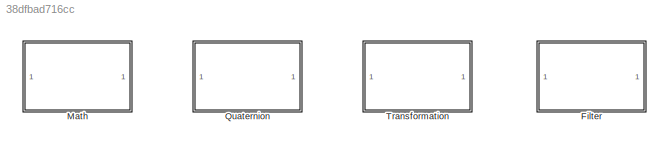
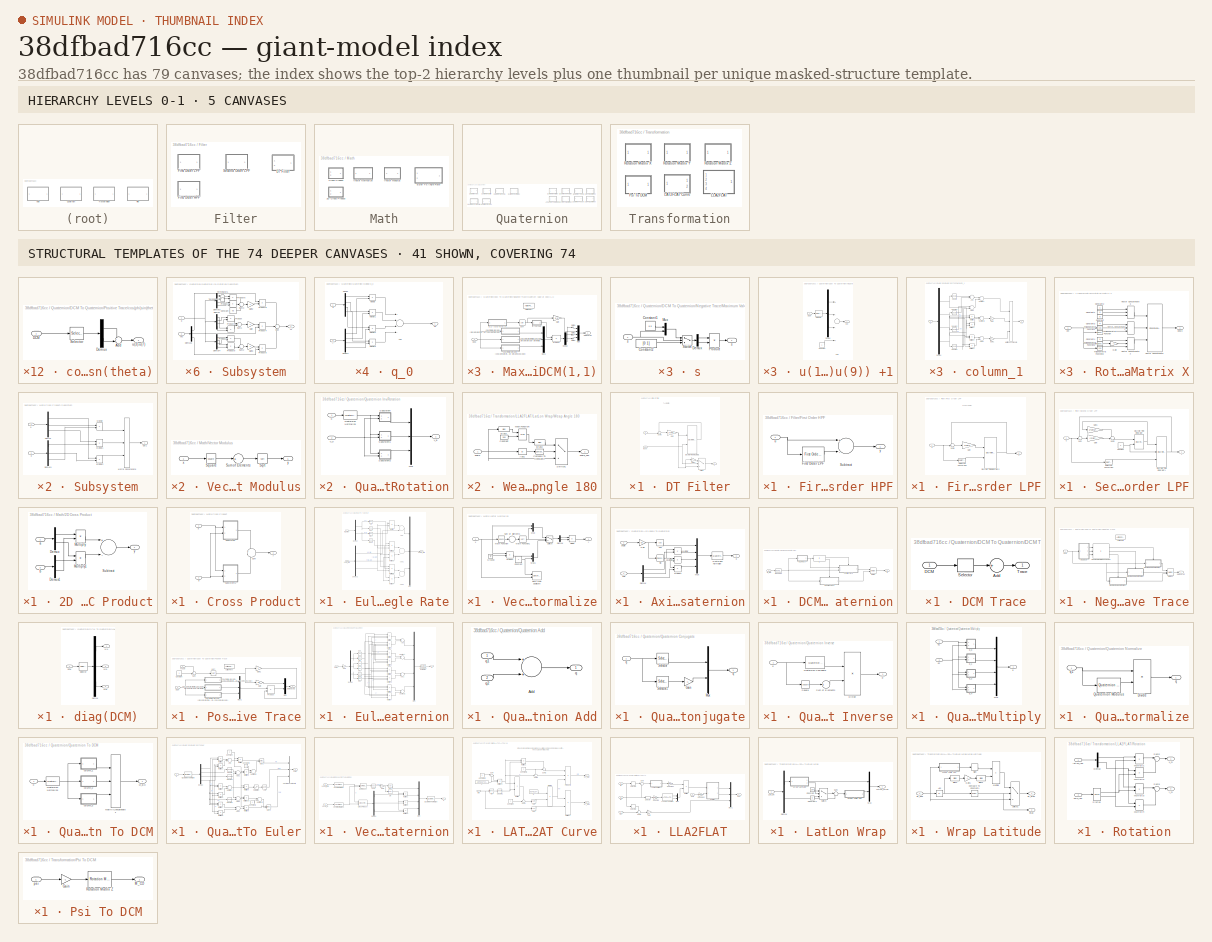
[diagram: thumbnail index - top-2 hierarchy levels (5 canvases) + 41 structural-template representatives of the remaining 74 canvases]
MODEL slx_38dfbad716cc
KIND library
CONFIG AbsTol = auto
CONFIG EnableMultiTasking = off
CONFIG FixedStep = auto
CONFIG MaxStep = auto
CONFIG MinStep = auto
CONFIG RelTol = 1e-3
CONFIG SampleTimeConstraint = Unconstrained
CONFIG Solver = VariableStepAuto
CONFIG SolverName = VariableStepAuto
CONFIG StartTime = 0.0
CONFIG StopTime = 10.0
BLOCK [SubSystem] Filter
  Ports = []
  RequestExecContextInheritance = off
BLOCK [SubSystem] Filter/DT Filter
  Ports = [2, 1]
  RequestExecContextInheritance = off
BLOCK [DiscreteIntegrator] Filter/DT Filter/Discrete-Time Integrator1
  ExternalReset = level
  ICPrevOutput = DiscIntNeverNeededParam
  ICPrevScaledInput = DiscIntNeverNeededParam
  InitialConditionSetting = Auto
  Ports = [2, 1]
  SampleTime = -1
BLOCK [Gain] Filter/DT Filter/Gain
  Gain = 2*pi*fc
  ParamDataTypeStr = Inherit: Inherit via internal rule
  SaturateOnIntegerOverflow = off
BLOCK [Gain] Filter/DT Filter/Gain1
  Gain = 0
  OutDataTypeStr = Inherit: Inherit via internal rule
  ParamDataTypeStr = Inherit: Inherit via internal rule
  SaturateOnIntegerOverflow = off
BLOCK [Sum] Filter/DT Filter/Sum5
  IconShape = round
  InputSameDT = off
  Inputs = -+|
  OutDataTypeStr = Inherit: Inherit via internal rule
  Ports = [2, 1]
  SaturateOnIntegerOverflow = off
BLOCK [Switch] Filter/DT Filter/Switch
  Criteria = u2 > Threshold
  InputSameDT = off
  SaturateOnIntegerOverflow = off
BLOCK [Inport] Filter/DT Filter/reset
  IconDisplay = Port number
  Port = 2
BLOCK [Inport] Filter/DT Filter/u
  IconDisplay = Port number
BLOCK [Outport] Filter/DT Filter/y
  IconDisplay = Port number
BLOCK [SubSystem] Filter/First Order HPF
  Ports = [1, 1]
  RequestExecContextInheritance = off
BLOCK [Reference] Filter/First Order HPF/First Order LPF  REF=$bdroot/Filter/First Order LPF
  Ports = [1, 1]
  SourceBlock = $bdroot/Filter/First Order LPF
  SourceType = First-order Low-pass filter
BLOCK [Sum] Filter/First Order HPF/Subtract
  InputSameDT = off
  Inputs = +-
  OutDataTypeStr = Inherit: Inherit via internal rule
  Ports = [2, 1]
  SaturateOnIntegerOverflow = off
BLOCK [Inport] Filter/First Order HPF/u
  IconDisplay = Port number
BLOCK [Outport] Filter/First Order HPF/y
  IconDisplay = Port number
BLOCK [SubSystem] Filter/First Order LPF
  Ports = [1, 1]
  RequestExecContextInheritance = off
BLOCK [DataTypeConversion] Filter/First Order LPF/Data Type Conversion
  RndMeth = Floor
  SaturateOnIntegerOverflow = off
BLOCK [DiscreteIntegrator] Filter/First Order LPF/Discrete-Time Integrator5
  ICPrevOutput = DiscIntNeverNeededParam
  ICPrevScaledInput = DiscIntNeverNeededParam
  InitialConditionSetting = Auto
  InitialConditionSource = external
  OutDataTypeStr = single
  Ports = [2, 1]
  SampleTime = -1
BLOCK [Gain] Filter/First Order LPF/Gain
  Gain = 2*pi*fc
  OutDataTypeStr = Inherit: Inherit via internal rule
  ParamDataTypeStr = Inherit: Inherit via internal rule
  SaturateOnIntegerOverflow = off
BLOCK [Sum] Filter/First Order LPF/Sum5
  IconShape = round
  InputSameDT = off
  Inputs = -+|
  OutDataTypeStr = Inherit: Inherit via internal rule
  Ports = [2, 1]
  SaturateOnIntegerOverflow = off
BLOCK [Inport] Filter/First Order LPF/u
  IconDisplay = Port number
BLOCK [Outport] Filter/First Order LPF/y
  IconDisplay = Port number
BLOCK [SubSystem] Filter/Second Order LPF
  Ports = [1, 1]
  RequestExecContextInheritance = off
BLOCK [Constant] Filter/Second Order LPF/Constant
  OutDataTypeStr = Inherit: Inherit via back propagation
  Value = 0
BLOCK [DataTypeConversion] Filter/Second Order LPF/Data Type Conversion
  RndMeth = Floor
  SaturateOnIntegerOverflow = off
BLOCK [DiscreteIntegrator] Filter/Second Order LPF/Discrete-Time Integrator
  ExternalReset = level
  ICPrevOutput = DiscIntNeverNeededParam
  ICPrevScaledInput = DiscIntNeverNeededParam
  InitialConditionSetting = Auto
  Ports = [2, 1]
  SampleTime = -1
BLOCK [DiscreteIntegrator] Filter/Second Order LPF/Discrete-Time Integrator1
  ExternalReset = level
  ICPrevOutput = DiscIntNeverNeededParam
  ICPrevScaledInput = DiscIntNeverNeededParam
  InitialConditionSetting = Auto
  InitialConditionSource = external
  Ports = [3, 1]
  SampleTime = -1
BLOCK [Gain] Filter/Second Order LPF/Gain
  Gain = (2*pi*fc)^2
  ParamDataTypeStr = Inherit: Inherit via internal rule
  SaturateOnIntegerOverflow = off
BLOCK [Gain] Filter/Second Order LPF/Gain1
  Gain = 2*zeta*(2*pi*fc)
  ParamDataTypeStr = Inherit: Inherit via internal rule
  SaturateOnIntegerOverflow = off
BLOCK [Sum] Filter/Second Order LPF/Sum
  IconShape = round
  InputSameDT = off
  Inputs = -+|
  OutDataTypeStr = Inherit: Inherit via internal rule
  Ports = [2, 1]
  SaturateOnIntegerOverflow = off
BLOCK [Sum] Filter/Second Order LPF/Sum2
  IconShape = round
  InputSameDT = off
  Inputs = -+|
  OutDataTypeStr = Inherit: Inherit via internal rule
  Ports = [2, 1]
  SaturateOnIntegerOverflow = off
BLOCK [Inport] Filter/Second Order LPF/u
  IconDisplay = Port number
BLOCK [Outport] Filter/Second Order LPF/y
  IconDisplay = Port number
BLOCK [SubSystem] Math
  Ports = []
  RequestExecContextInheritance = off
BLOCK [SubSystem] Math/2D Cross Product
  Ports = [2, 1]
  RequestExecContextInheritance = off
BLOCK [Demux] Math/2D Cross Product/Demux
  DisplayOption = bar
  Outputs = 2
  Ports = [1, 2]
BLOCK [Demux] Math/2D Cross Product/Demux1
  DisplayOption = bar
  Outputs = 2
  Ports = [1, 2]
BLOCK [Product] Math/2D Cross Product/Multiply
  InputSameDT = off
  OutDataTypeStr = Inherit: Inherit via internal rule
  Ports = [2, 1]
  RndMeth = Floor
  SaturateOnIntegerOverflow = off
BLOCK [Product] Math/2D Cross Product/Multiply1
  InputSameDT = off
  OutDataTypeStr = Inherit: Inherit via internal rule
  Ports = [2, 1]
  RndMeth = Floor
  SaturateOnIntegerOverflow = off
BLOCK [Sum] Math/2D Cross Product/Subtract
  InputSameDT = off
  Inputs = +-
  OutDataTypeStr = Inherit: Inherit via internal rule
  Ports = [2, 1]
  SaturateOnIntegerOverflow = off
BLOCK [Inport] Math/2D Cross Product/a
  IconDisplay = Port number
BLOCK [Inport] Math/2D Cross Product/b
  IconDisplay = Port number
  Port = 2
BLOCK [Outport] Math/2D Cross Product/y
  IconDisplay = Port number
BLOCK [SubSystem] Math/Cross Product
  Ports = [2, 1]
  RequestExecContextInheritance = off
BLOCK [SubSystem] Math/Cross Product/Subsystem
  Ports = [2, 1]
  RequestExecContextInheritance = off
BLOCK [Demux] Math/Cross Product/Subsystem/Demux
  DisplayOption = bar
  Outputs = 3
  Ports = [1, 3]
BLOCK [Demux] Math/Cross Product/Subsystem/Demux1
  DisplayOption = bar
  Outputs = 3
  Ports = [1, 3]
BLOCK [Concatenate] Math/Cross Product/Subsystem/Matrix Concatenate
  ConcatenateDimension = 2
  NumInputs = 3
  Ports = [3, 1]
BLOCK [Product] Math/Cross Product/Subsystem/Multiply
  InputSameDT = off
  Ports = [2, 1]
  RndMeth = Floor
  SaturateOnIntegerOverflow = off
BLOCK [Product] Math/Cross Product/Subsystem/Multiply1
  InputSameDT = off
  Ports = [2, 1]
  RndMeth = Floor
  SaturateOnIntegerOverflow = off
BLOCK [Product] Math/Cross Product/Subsystem/Multiply2
  InputSameDT = off
  Ports = [2, 1]
  RndMeth = Floor
  SaturateOnIntegerOverflow = off
BLOCK [Outport] Math/Cross Product/Subsystem/Out1
  IconDisplay = Port number
BLOCK [Inport] Math/Cross Product/Subsystem/a
  IconDisplay = Port number
BLOCK [Inport] Math/Cross Product/Subsystem/b
  IconDisplay = Port number
  Port = 2
BLOCK [SubSystem] Math/Cross Product/Subsystem1
  Ports = [2, 1]
  RequestExecContextInheritance = off
BLOCK [Demux] Math/Cross Product/Subsystem1/Demux
  DisplayOption = bar
  Outputs = 3
  Ports = [1, 3]
BLOCK [Demux] Math/Cross Product/Subsystem1/Demux1
  DisplayOption = bar
  Outputs = 3
  Ports = [1, 3]
BLOCK [Concatenate] Math/Cross Product/Subsystem1/Matrix Concatenate1
  ConcatenateDimension = 2
  NumInputs = 3
  Ports = [3, 1]
BLOCK [Product] Math/Cross Product/Subsystem1/Multiply3
  InputSameDT = off
  Ports = [2, 1]
  RndMeth = Floor
  SaturateOnIntegerOverflow = off
BLOCK [Product] Math/Cross Product/Subsystem1/Multiply4
  InputSameDT = off
  Ports = [2, 1]
  RndMeth = Floor
  SaturateOnIntegerOverflow = off
BLOCK [Product] Math/Cross Product/Subsystem1/Multiply5
  InputSameDT = off
  Ports = [2, 1]
  RndMeth = Floor
  SaturateOnIntegerOverflow = off
BLOCK [Outport] Math/Cross Product/Subsystem1/Out1
  IconDisplay = Port number
BLOCK [Inport] Math/Cross Product/Subsystem1/a
  IconDisplay = Port number
BLOCK [Inport] Math/Cross Product/Subsystem1/b
  IconDisplay = Port number
  Port = 2
BLOCK [Sum] Math/Cross Product/Sum
  IconShape = round
  Inputs = +|-
  Ports = [2, 1]
BLOCK [Inport] Math/Cross Product/a
  IconDisplay = Port number
BLOCK [Inport] Math/Cross Product/b
  IconDisplay = Port number
  Port = 2
BLOCK [Outport] Math/Cross Product/y
  IconDisplay = Port number
BLOCK [SubSystem] Math/Euler To Angle Rate
  Ports = [2, 1]
  RequestExecContextInheritance = off
BLOCK [Sum] Math/Euler To Angle Rate/Add
  InputSameDT = off
  Inputs = -+
  OutDataTypeStr = Inherit: Inherit via internal rule
  Ports = [2, 1]
  SaturateOnIntegerOverflow = off
BLOCK [Sum] Math/Euler To Angle Rate/Add1
  InputSameDT = off
  OutDataTypeStr = Inherit: Inherit via internal rule
  Ports = [2, 1]
  SaturateOnIntegerOverflow = off
BLOCK [Sum] Math/Euler To Angle Rate/Add2
  InputSameDT = off
  Inputs = +-
  OutDataTypeStr = Inherit: Inherit via internal rule
  Ports = [2, 1]
  SaturateOnIntegerOverflow = off
BLOCK [Trigonometry] Math/Euler To Angle Rate/Cos
  Operator = cos
  Ports = [1, 1]
BLOCK [Trigonometry] Math/Euler To Angle Rate/Cos1
  Operator = cos
  Ports = [1, 1]
BLOCK [Demux] Math/Euler To Angle Rate/Demux
  DisplayOption = bar
  Outputs = 2
  Ports = [1, 2]
BLOCK [Demux] Math/Euler To Angle Rate/Demux1
  DisplayOption = bar
  Outputs = 3
  Ports = [1, 3]
BLOCK [Product] Math/Euler To Angle Rate/Multiply
  InputSameDT = off
  OutDataTypeStr = Inherit: Inherit via internal rule
  Ports = [2, 1]
  RndMeth = Floor
  SaturateOnIntegerOverflow = off
BLOCK [Product] Math/Euler To Angle Rate/Multiply1
  InputSameDT = off
  OutDataTypeStr = Inherit: Inherit via internal rule
  Ports = [2, 1]
  RndMeth = Floor
  SaturateOnIntegerOverflow = off
BLOCK [Product] Math/Euler To Angle Rate/Multiply3
  InputSameDT = off
  Inputs = 3
  OutDataTypeStr = Inherit: Inherit via internal rule
  Ports = [3, 1]
  RndMeth = Floor
  SaturateOnIntegerOverflow = off
BLOCK [Product] Math/Euler To Angle Rate/Multiply4
  InputSameDT = off
  OutDataTypeStr = Inherit: Inherit via internal rule
  Ports = [2, 1]
  RndMeth = Floor
  SaturateOnIntegerOverflow = off
BLOCK [Product] Math/Euler To Angle Rate/Multiply5
  InputSameDT = off
  Inputs = 3
  OutDataTypeStr = Inherit: Inherit via internal rule
  Ports = [3, 1]
  RndMeth = Floor
  SaturateOnIntegerOverflow = off
BLOCK [Mux] Math/Euler To Angle Rate/Mux
  DisplayOption = bar
  Inputs = 3
  Ports = [3, 1]
BLOCK [Trigonometry] Math/Euler To Angle Rate/Sin
  Ports = [1, 1]
BLOCK [Trigonometry] Math/Euler To Angle Rate/Sin1
  Ports = [1, 1]
BLOCK [Outport] Math/Euler To Angle Rate/angle_rate
  IconDisplay = Port number
BLOCK [Inport] Math/Euler To Angle Rate/euler_rate
  IconDisplay = Port number
  Port = 2
BLOCK [Inport] Math/Euler To Angle Rate/roll_pitch
  IconDisplay = Port number
BLOCK [SubSystem] Math/Vector Modulus
  Ports = [1, 1]
  RequestExecContextInheritance = off
BLOCK [Sqrt] Math/Vector Modulus/Sqrt
BLOCK [Math] Math/Vector Modulus/Square
  Operator = square
  Ports = [1, 1]
BLOCK [Sum] Math/Vector Modulus/Sum of Elements
  InputSameDT = off
  Inputs = +
  OutDataTypeStr = Inherit: Inherit via internal rule
  Ports = [1, 1]
  SaturateOnIntegerOverflow = off
BLOCK [Inport] Math/Vector Modulus/x
  IconDisplay = Port number
BLOCK [Outport] Math/Vector Modulus/y
  IconDisplay = Port number
BLOCK [SubSystem] Math/Vector Normalize
  Ports = [1, 1]
  RequestExecContextInheritance = off
BLOCK [Constant] Math/Vector Normalize/Constant
  OutDataTypeStr = Inherit: Inherit via back propagation
BLOCK [DataTypeDuplicate] Math/Vector Normalize/Data Type Duplicate
  Ports = [2]
BLOCK [Demux] Math/Vector Normalize/Demux
  DisplayOption = bar
  Outputs = [-1 1]
  Ports = [1, 2]
BLOCK [Product] Math/Vector Normalize/Divide
  InputSameDT = off
  Inputs = */
  OutDataTypeStr = Inherit: Inherit via internal rule
  Ports = [2, 1]
  RndMeth = Floor
  SaturateOnIntegerOverflow = off
BLOCK [Ground] Math/Vector Normalize/Ground
BLOCK [Math] Math/Vector Normalize/Math Function
  Operator = square
  OutDataTypeStr = Inherit: Inherit via internal rule
  Ports = [1, 1]
BLOCK [Math] Math/Vector Normalize/Math Function1
  Operator = sqrt
  Ports = [1, 1]
BLOCK [Mux] Math/Vector Normalize/Mux
  DisplayOption = bar
  Inputs = 2
  Ports = [2, 1]
BLOCK [Mux] Math/Vector Normalize/Mux1
  DisplayOption = bar
  Inputs = 2
  Ports = [2, 1]
BLOCK [Product] Math/Vector Normalize/Product
  InputSameDT = off
  Ports = [2, 1]
  SaturateOnIntegerOverflow = off
BLOCK [Sum] Math/Vector Normalize/Sum of Elements
  InputSameDT = off
  Inputs = +
  OutDataTypeStr = Inherit: Inherit via internal rule
  Ports = [1, 1]
  SaturateOnIntegerOverflow = off
BLOCK [Switch] Math/Vector Normalize/Switch
  Criteria = u2 > Threshold
  InputSameDT = off
  SaturateOnIntegerOverflow = off
BLOCK [Inport] Math/Vector Normalize/x
  IconDisplay = Port number
BLOCK [Outport] Math/Vector Normalize/y
  IconDisplay = Port number
BLOCK [SubSystem] Quaternion
  Ports = []
  RequestExecContextInheritance = off
BLOCK [SubSystem] Quaternion/Axis-angle To Quaternion
  Ports = [2, 1]
  RequestExecContextInheritance = off
BLOCK [Trigonometry] Quaternion/Axis-angle To Quaternion/Cos
  Operator = cos
  Ports = [1, 1]
BLOCK [Demux] Quaternion/Axis-angle To Quaternion/Demux
  DisplayOption = bar
  Outputs = 3
  Ports = [1, 3]
BLOCK [Gain] Quaternion/Axis-angle To Quaternion/Gain
  Gain = 0.5
  ParamDataTypeStr = Inherit: Inherit via internal rule
  SaturateOnIntegerOverflow = off
BLOCK [Product] Quaternion/Axis-angle To Quaternion/Multiply
  InputSameDT = off
  Ports = [2, 1]
  RndMeth = Floor
  SaturateOnIntegerOverflow = off
BLOCK [Product] Quaternion/Axis-angle To Quaternion/Multiply1
  InputSameDT = off
  Ports = [2, 1]
  RndMeth = Floor
  SaturateOnIntegerOverflow = off
BLOCK [Product] Quaternion/Axis-angle To Quaternion/Multiply2
  InputSameDT = off
  Ports = [2, 1]
  RndMeth = Floor
  SaturateOnIntegerOverflow = off
BLOCK [Mux] Quaternion/Axis-angle To Quaternion/Mux
  DisplayOption = bar
  Ports = [4, 1]
BLOCK [Reference] Quaternion/Axis-angle To Quaternion/Quaternion Normalize  REF=$bdroot/Quaternion/Quaternion Normalize
  Ports = [1, 1]
  SourceBlock = $bdroot/Quaternion/Quaternion Normalize
  SourceType = Quaternion Modulus
BLOCK [Trigonometry] Quaternion/Axis-angle To Quaternion/Sin
  Ports = [1, 1]
BLOCK [Inport] Quaternion/Axis-angle To Quaternion/angle
  IconDisplay = Port number
  Port = 2
BLOCK [Inport] Quaternion/Axis-angle To Quaternion/axis
  IconDisplay = Port number
BLOCK [Outport] Quaternion/Axis-angle To Quaternion/q
  IconDisplay = Port number
BLOCK [SubSystem] Quaternion/DCM To Quaternion
  Ports = [1, 1]
  RequestExecContextInheritance = off
BLOCK [SubSystem] Quaternion/DCM To Quaternion/DCM Trace
  Ports = [1, 1]
  RequestExecContextInheritance = off
BLOCK [Sum] Quaternion/DCM To Quaternion/DCM Trace/Add
  InputSameDT = off
  Inputs = +
  OutDataTypeStr = Inherit: Inherit via internal rule
  Ports = [1, 1]
  SaturateOnIntegerOverflow = off
BLOCK [Inport] Quaternion/DCM To Quaternion/DCM Trace/DCM
  IconDisplay = Port number
BLOCK [Selector] Quaternion/DCM To Quaternion/DCM Trace/Selector
  IndexOptions = Index vector (dialog)
  Indices = [1 5 9]
  InputPortWidth = 9
  OutputSizes = 1
  Ports = [1, 1]
BLOCK [Outport] Quaternion/DCM To Quaternion/DCM Trace/Trace
  IconDisplay = Port number
BLOCK [If] Quaternion/DCM To Quaternion/If
  Ports = [1, 2]
BLOCK [Inport] Quaternion/DCM To Quaternion/M_BO
  IconDisplay = Port number
BLOCK [Merge] Quaternion/DCM To Quaternion/Merge
  Ports = [2, 1]
BLOCK [SubSystem] Quaternion/DCM To Quaternion/Negative Trace
  Ports = [1, 1, 0, 0, 0, 0, 0, 1]
  RequestExecContextInheritance = off
BLOCK [ActionPort] Quaternion/DCM To Quaternion/Negative Trace/Action Port
  ActionType = else
  PropagateVarSize = During execution
BLOCK [Inport] Quaternion/DCM To Quaternion/Negative Trace/DCM
  IconDisplay = Port number
BLOCK [If] Quaternion/DCM To Quaternion/Negative Trace/Find Maximum Diagonal Value
  ElseIfExpressions = u3 > u1
  IfExpression = ((u2 > u1) & (u2 > u3))
  NumInputs = 3
  Ports = [3, 3]
BLOCK [SubSystem] Quaternion/DCM To Quaternion/Negative Trace/Maximum Value at DCM(1,1)
  Ports = [1, 1, 0, 0, 0, 0, 0, 1]
  RequestExecContextInheritance = off
  TreatAsAtomicUnit = on
BLOCK [ActionPort] Quaternion/DCM To Quaternion/Negative Trace/Maximum Value at DCM(1,1)/Action Port
  ActionType = else
  PropagateVarSize = During execution
BLOCK [Inport] Quaternion/DCM To Quaternion/Negative Trace/Maximum Value at DCM(1,1)/DCM
  IconDisplay = Port number
BLOCK [Demux] Quaternion/DCM To Quaternion/Negative Trace/Maximum Value at DCM(1,1)/Demux
  Outputs = 3
  Ports = [1, 3]
BLOCK [Gain] Quaternion/DCM To Quaternion/Negative Trace/Maximum Value at DCM(1,1)/Gain
  Gain = 0.5
BLOCK [Gain] Quaternion/DCM To Quaternion/Negative Trace/Maximum Value at DCM(1,1)/Gain1
BLOCK [Gain] Quaternion/DCM To Quaternion/Negative Trace/Maximum Value at DCM(1,1)/Gain2
BLOCK [Gain] Quaternion/DCM To Quaternion/Negative Trace/Maximum Value at DCM(1,1)/Gain3
BLOCK [Mux] Quaternion/DCM To Quaternion/Negative Trace/Maximum Value at DCM(1,1)/Mux
  DisplayOption = bar
  Ports = [4, 1]
BLOCK [Mux] Quaternion/DCM To Quaternion/Negative Trace/Maximum Value at DCM(1,1)/Mux1
  DisplayOption = bar
  Inputs = 3
  Ports = [3, 1]
BLOCK [Product] Quaternion/DCM To Quaternion/Negative Trace/Maximum Value at DCM(1,1)/Product
  Ports = [2, 1]
  RndMeth = Floor
BLOCK [SubSystem] Quaternion/DCM To Quaternion/Negative Trace/Maximum Value at DCM(1,1)/cos(phi)sin(theta)cos(psi) + sin(phi)sin(psi) -sin(theta)
  Ports = [1, 1]
  RequestExecContextInheritance = off
BLOCK [Sum] Quaternion/DCM To Quaternion/Negative Trace/Maximum Value at DCM(1,1)/cos(phi)sin(theta)cos(psi) + sin(phi)sin(psi) -sin(theta)/Add
  IconShape = round
  InputSameDT = off
  Inputs = ++|
  OutDataTypeStr = Inherit: Inherit via internal rule
  Ports = [2, 1]
  SaturateOnIntegerOverflow = off
BLOCK [Inport] Quaternion/DCM To Quaternion/Negative Trace/Maximum Value at DCM(1,1)/cos(phi)sin(theta)cos(psi) + sin(phi)sin(psi) -sin(theta)/DCM
  IconDisplay = Port number
BLOCK [Demux] Quaternion/DCM To Quaternion/Negative Trace/Maximum Value at DCM(1,1)/cos(phi)sin(theta)cos(psi) + sin(phi)sin(psi) -sin(theta)/Demux
  DisplayOption = bar
  Outputs = 2
  Ports = [1, 2]
BLOCK [Selector] Quaternion/DCM To Quaternion/Negative Trace/Maximum Value at DCM(1,1)/cos(phi)sin(theta)cos(psi) + sin(phi)sin(psi) -sin(theta)/Selector
  IndexOptions = Index vector (dialog)
  Indices = [3 7]
  InputPortWidth = 9
  OutputSizes = 1
  Ports = [1, 1]
BLOCK [Outport] Quaternion/DCM To Quaternion/Negative Trace/Maximum Value at DCM(1,1)/cos(phi)sin(theta)cos(psi) + sin(phi)sin(psi) -sin(theta)/u(3)+u(7)
  IconDisplay = Port number
BLOCK [SubSystem] Quaternion/DCM To Quaternion/Negative Trace/Maximum Value at DCM(1,1)/cos(theta)sin(phi) - (cos(phi)sin(theta)sin(psi) - sin(phi)cos(psi))
  Ports = [1, 1]
  RequestExecContextInheritance = off
BLOCK [Sum] Quaternion/DCM To Quaternion/Negative Trace/Maximum Value at DCM(1,1)/cos(theta)sin(phi) - (cos(phi)sin(theta)sin(psi) - sin(phi)cos(psi))/Add
  IconShape = round
  InputSameDT = off
  Inputs = |-+
  OutDataTypeStr = Inherit: Inherit via internal rule
  Ports = [2, 1]
  SaturateOnIntegerOverflow = off
BLOCK [Inport] Quaternion/DCM To Quaternion/Negative Trace/Maximum Value at DCM(1,1)/cos(theta)sin(phi) - (cos(phi)sin(theta)sin(psi) - sin(phi)cos(psi))/DCM
  IconDisplay = Port number
BLOCK [Demux] Quaternion/DCM To Quaternion/Negative Trace/Maximum Value at DCM(1,1)/cos(theta)sin(phi) - (cos(phi)sin(theta)sin(psi) - sin(phi)cos(psi))/Demux
  DisplayOption = bar
  Outputs = 2
  Ports = [1, 2]
BLOCK [Selector] Quaternion/DCM To Quaternion/Negative Trace/Maximum Value at DCM(1,1)/cos(theta)sin(phi) - (cos(phi)sin(theta)sin(psi) - sin(phi)cos(psi))/Selector
  IndexOptions = Index vector (dialog)
  Indices = [6 8]
  InputPortWidth = 9
  OutputSizes = 1
  Ports = [1, 1]
BLOCK [Outport] Quaternion/DCM To Quaternion/Negative Trace/Maximum Value at DCM(1,1)/cos(theta)sin(phi) - (cos(phi)sin(theta)sin(psi) - sin(phi)cos(psi))/u(8)-u(6)
  IconDisplay = Port number
BLOCK [SubSystem] Quaternion/DCM To Quaternion/Negative Trace/Maximum Value at DCM(1,1)/cos(theta)sin(psi) + (sin(phi)sin(theta)cos(psi) - cos(phi)sin(psi))
  Ports = [1, 1]
  RequestExecContextInheritance = off
BLOCK [Sum] Quaternion/DCM To Quaternion/Negative Trace/Maximum Value at DCM(1,1)/cos(theta)sin(psi) + (sin(phi)sin(theta)cos(psi) - cos(phi)sin(psi))/Add
  IconShape = round
  InputSameDT = off
  Inputs = |++
  OutDataTypeStr = Inherit: Inherit via internal rule
  Ports = [2, 1]
  SaturateOnIntegerOverflow = off
BLOCK [Inport] Quaternion/DCM To Quaternion/Negative Trace/Maximum Value at DCM(1,1)/cos(theta)sin(psi) + (sin(phi)sin(theta)cos(psi) - cos(phi)sin(psi))/DCM
  IconDisplay = Port number
BLOCK [Demux] Quaternion/DCM To Quaternion/Negative Trace/Maximum Value at DCM(1,1)/cos(theta)sin(psi) + (sin(phi)sin(theta)cos(psi) - cos(phi)sin(psi))/Demux
  DisplayOption = bar
  Outputs = 2
  Ports = [1, 2]
BLOCK [Selector] Quaternion/DCM To Quaternion/Negative Trace/Maximum Value at DCM(1,1)/cos(theta)sin(psi) + (sin(phi)sin(theta)cos(psi) - cos(phi)sin(psi))/Selector
  IndexOptions = Index vector (dialog)
  Indices = [2 4]
  InputPortWidth = 9
  OutputSizes = 1
  Ports = [1, 1]
BLOCK [Outport] Quaternion/DCM To Quaternion/Negative Trace/Maximum Value at DCM(1,1)/cos(theta)sin(psi) + (sin(phi)sin(theta)cos(psi) - cos(phi)sin(psi))/u(4)+u(2)
  IconDisplay = Port number
BLOCK [SubSystem] Quaternion/DCM To Quaternion/Negative Trace/Maximum Value at DCM(1,1)/if s~=0; s=0.5//s
  Ports = [1, 1]
  RequestExecContextInheritance = off
BLOCK [Constant] Quaternion/DCM To Quaternion/Negative Trace/Maximum Value at DCM(1,1)/if s~=0; s=0.5//s/Constant1
  OutDataTypeStr = Inherit: Inherit via back propagation
  Value = 0.5
BLOCK [Constant] Quaternion/DCM To Quaternion/Negative Trace/Maximum Value at DCM(1,1)/if s~=0; s=0.5//s/Constant2
  OutDataTypeStr = Inherit: Inherit via back propagation
  Value = [0 1]
BLOCK [Demux] Quaternion/DCM To Quaternion/Negative Trace/Maximum Value at DCM(1,1)/if s~=0; s=0.5//s/Demux
  DisplayOption = bar
  Outputs = 2
  Ports = [1, 2]
BLOCK [Mux] Quaternion/DCM To Quaternion/Negative Trace/Maximum Value at DCM(1,1)/if s~=0; s=0.5//s/Mux
  DisplayOption = bar
  Inputs = 2
  Ports = [2, 1]
BLOCK [Product] Quaternion/DCM To Quaternion/Negative Trace/Maximum Value at DCM(1,1)/if s~=0; s=0.5//s/Product
  InputSameDT = off
  Inputs = */
  OutDataTypeStr = Inherit: Inherit via internal rule
  Ports = [2, 1]
  SaturateOnIntegerOverflow = off
BLOCK [Switch] Quaternion/DCM To Quaternion/Negative Trace/Maximum Value at DCM(1,1)/if s~=0; s=0.5//s/Switch
  Criteria = u2 ~= 0
BLOCK [Inport] Quaternion/DCM To Quaternion/Negative Trace/Maximum Value at DCM(1,1)/if s~=0; s=0.5//s/s
  IconDisplay = Port number
BLOCK [Outport] Quaternion/DCM To Quaternion/Negative Trace/Maximum Value at DCM(1,1)/if s~=0; s=0.5//s/s 
  IconDisplay = Port number
BLOCK [Outport] Quaternion/DCM To Quaternion/Negative Trace/Maximum Value at DCM(1,1)/qw qx qy qz
  IconDisplay = Port number
BLOCK [Sqrt] Quaternion/DCM To Quaternion/Negative Trace/Maximum Value at DCM(1,1)/sqrt
  AlgorithmType = Newton-Raphson
BLOCK [SubSystem] Quaternion/DCM To Quaternion/Negative Trace/Maximum Value at DCM(1,1)/u(1) -(u(5)+u(9)) +1
  Ports = [1, 1]
  RequestExecContextInheritance = off
BLOCK [Sum] Quaternion/DCM To Quaternion/Negative Trace/Maximum Value at DCM(1,1)/u(1) -(u(5)+u(9)) +1/Add
  InputSameDT = off
  Inputs = +--+
  OutDataTypeStr = Inherit: Inherit via internal rule
  Ports = [4, 1]
  SaturateOnIntegerOverflow = off
BLOCK [Constant] Quaternion/DCM To Quaternion/Negative Trace/Maximum Value at DCM(1,1)/u(1) -(u(5)+u(9)) +1/Constant
  OutDataTypeStr = Inherit: Inherit via back propagation
BLOCK [Inport] Quaternion/DCM To Quaternion/Negative Trace/Maximum Value at DCM(1,1)/u(1) -(u(5)+u(9)) +1/DCM
  IconDisplay = Port number
BLOCK [Demux] Quaternion/DCM To Quaternion/Negative Trace/Maximum Value at DCM(1,1)/u(1) -(u(5)+u(9)) +1/Demux
  DisplayOption = bar
  Outputs = 3
  Ports = [1, 3]
BLOCK [Selector] Quaternion/DCM To Quaternion/Negative Trace/Maximum Value at DCM(1,1)/u(1) -(u(5)+u(9)) +1/Selector
  IndexOptions = Index vector (dialog)
  Indices = [1 5 9]
  InputPortWidth = 9
  OutputSizes = 1
  Ports = [1, 1]
BLOCK [Outport] Quaternion/DCM To Quaternion/Negative Trace/Maximum Value at DCM(1,1)/u(1) -(u(5)+u(9)) +1/out
  IconDisplay = Port number
BLOCK [SubSystem] Quaternion/DCM To Quaternion/Negative Trace/Maximum Value at DCM(2,2)
  Ports = [1, 1, 0, 0, 0, 0, 0, 1]
  RequestExecContextInheritance = off
  TreatAsAtomicUnit = on
BLOCK [ActionPort] Quaternion/DCM To Quaternion/Negative Trace/Maximum Value at DCM(2,2)/Action Port
  ActionType = then
  PropagateVarSize = During execution
BLOCK [Inport] Quaternion/DCM To Quaternion/Negative Trace/Maximum Value at DCM(2,2)/DCM
  IconDisplay = Port number
BLOCK [Demux] Quaternion/DCM To Quaternion/Negative Trace/Maximum Value at DCM(2,2)/Demux
  Outputs = 3
  Ports = [1, 3]
BLOCK [Gain] Quaternion/DCM To Quaternion/Negative Trace/Maximum Value at DCM(2,2)/Gain
  Gain = 0.5
BLOCK [Gain] Quaternion/DCM To Quaternion/Negative Trace/Maximum Value at DCM(2,2)/Gain1
BLOCK [Gain] Quaternion/DCM To Quaternion/Negative Trace/Maximum Value at DCM(2,2)/Gain3
BLOCK [Gain] Quaternion/DCM To Quaternion/Negative Trace/Maximum Value at DCM(2,2)/Gain4
BLOCK [Mux] Quaternion/DCM To Quaternion/Negative Trace/Maximum Value at DCM(2,2)/Mux
  DisplayOption = bar
  Ports = [4, 1]
BLOCK [Mux] Quaternion/DCM To Quaternion/Negative Trace/Maximum Value at DCM(2,2)/Mux1
  DisplayOption = bar
  Inputs = 3
  Ports = [3, 1]
BLOCK [Product] Quaternion/DCM To Quaternion/Negative Trace/Maximum Value at DCM(2,2)/Product
  Ports = [2, 1]
  RndMeth = Floor
BLOCK [SubSystem] Quaternion/DCM To Quaternion/Negative Trace/Maximum Value at DCM(2,2)/cos(phi)sin(theta)cos(psi) + sin(phi)sin(psi) +sin(theta)
  Ports = [1, 1]
  RequestExecContextInheritance = off
BLOCK [Sum] Quaternion/DCM To Quaternion/Negative Trace/Maximum Value at DCM(2,2)/cos(phi)sin(theta)cos(psi) + sin(phi)sin(psi) +sin(theta)/Add
  IconShape = round
  InputSameDT = off
  Inputs = +-|
  OutDataTypeStr = Inherit: Inherit via internal rule
  Ports = [2, 1]
  SaturateOnIntegerOverflow = off
BLOCK [Inport] Quaternion/DCM To Quaternion/Negative Trace/Maximum Value at DCM(2,2)/cos(phi)sin(theta)cos(psi) + sin(phi)sin(psi) +sin(theta)/DCM
  IconDisplay = Port number
BLOCK [Demux] Quaternion/DCM To Quaternion/Negative Trace/Maximum Value at DCM(2,2)/cos(phi)sin(theta)cos(psi) + sin(phi)sin(psi) +sin(theta)/Demux
  DisplayOption = bar
  Outputs = 2
  Ports = [1, 2]
BLOCK [Selector] Quaternion/DCM To Quaternion/Negative Trace/Maximum Value at DCM(2,2)/cos(phi)sin(theta)cos(psi) + sin(phi)sin(psi) +sin(theta)/Selector
  IndexOptions = Index vector (dialog)
  Indices = [3 7]
  InputPortWidth = 9
  OutputSizes = 1
  Ports = [1, 1]
BLOCK [Outport] Quaternion/DCM To Quaternion/Negative Trace/Maximum Value at DCM(2,2)/cos(phi)sin(theta)cos(psi) + sin(phi)sin(psi) +sin(theta)/u(3)-u(7)
  IconDisplay = Port number
BLOCK [SubSystem] Quaternion/DCM To Quaternion/Negative Trace/Maximum Value at DCM(2,2)/cos(theta)sin(phi) + (cos(phi)sin(theta)sin(psi) - sin(phi)cos(psi))
  Ports = [1, 1]
  RequestExecContextInheritance = off
BLOCK [Sum] Quaternion/DCM To Quaternion/Negative Trace/Maximum Value at DCM(2,2)/cos(theta)sin(phi) + (cos(phi)sin(theta)sin(psi) - sin(phi)cos(psi))/Add
  IconShape = round
  InputSameDT = off
  Inputs = |++
  OutDataTypeStr = Inherit: Inherit via internal rule
  Ports = [2, 1]
  SaturateOnIntegerOverflow = off
BLOCK [Inport] Quaternion/DCM To Quaternion/Negative Trace/Maximum Value at DCM(2,2)/cos(theta)sin(phi) + (cos(phi)sin(theta)sin(psi) - sin(phi)cos(psi))/DCM
  IconDisplay = Port number
BLOCK [Demux] Quaternion/DCM To Quaternion/Negative Trace/Maximum Value at DCM(2,2)/cos(theta)sin(phi) + (cos(phi)sin(theta)sin(psi) - sin(phi)cos(psi))/Demux
  DisplayOption = bar
  Outputs = 2
  Ports = [1, 2]
BLOCK [Selector] Quaternion/DCM To Quaternion/Negative Trace/Maximum Value at DCM(2,2)/cos(theta)sin(phi) + (cos(phi)sin(theta)sin(psi) - sin(phi)cos(psi))/Selector
  IndexOptions = Index vector (dialog)
  Indices = [6 8]
  InputPortWidth = 9
  OutputSizes = 1
  Ports = [1, 1]
BLOCK [Outport] Quaternion/DCM To Quaternion/Negative Trace/Maximum Value at DCM(2,2)/cos(theta)sin(phi) + (cos(phi)sin(theta)sin(psi) - sin(phi)cos(psi))/u(8)+u(6)
  IconDisplay = Port number
BLOCK [SubSystem] Quaternion/DCM To Quaternion/Negative Trace/Maximum Value at DCM(2,2)/cos(theta)sin(psi) + (sin(phi)sin(theta)cos(psi) - cos(phi)sin(psi))
  Ports = [1, 1]
  RequestExecContextInheritance = off
BLOCK [Sum] Quaternion/DCM To Quaternion/Negative Trace/Maximum Value at DCM(2,2)/cos(theta)sin(psi) + (sin(phi)sin(theta)cos(psi) - cos(phi)sin(psi))/Add
  IconShape = round
  InputSameDT = off
  Inputs = |++
  OutDataTypeStr = Inherit: Inherit via internal rule
  Ports = [2, 1]
  SaturateOnIntegerOverflow = off
BLOCK [Inport] Quaternion/DCM To Quaternion/Negative Trace/Maximum Value at DCM(2,2)/cos(theta)sin(psi) + (sin(phi)sin(theta)cos(psi) - cos(phi)sin(psi))/DCM
  IconDisplay = Port number
BLOCK [Demux] Quaternion/DCM To Quaternion/Negative Trace/Maximum Value at DCM(2,2)/cos(theta)sin(psi) + (sin(phi)sin(theta)cos(psi) - cos(phi)sin(psi))/Demux
  DisplayOption = bar
  Outputs = 2
  Ports = [1, 2]
BLOCK [Selector] Quaternion/DCM To Quaternion/Negative Trace/Maximum Value at DCM(2,2)/cos(theta)sin(psi) + (sin(phi)sin(theta)cos(psi) - cos(phi)sin(psi))/Selector
  IndexOptions = Index vector (dialog)
  Indices = [2 4]
  InputPortWidth = 9
  OutputSizes = 1
  Ports = [1, 1]
BLOCK [Outport] Quaternion/DCM To Quaternion/Negative Trace/Maximum Value at DCM(2,2)/cos(theta)sin(psi) + (sin(phi)sin(theta)cos(psi) - cos(phi)sin(psi))/u(4)+u(2)
  IconDisplay = Port number
BLOCK [SubSystem] Quaternion/DCM To Quaternion/Negative Trace/Maximum Value at DCM(2,2)/if s~=0; s=0.5//s
  Ports = [1, 1]
  RequestExecContextInheritance = off
BLOCK [Constant] Quaternion/DCM To Quaternion/Negative Trace/Maximum Value at DCM(2,2)/if s~=0; s=0.5//s/Constant1
  OutDataTypeStr = Inherit: Inherit via back propagation
  Value = 0.5
BLOCK [Constant] Quaternion/DCM To Quaternion/Negative Trace/Maximum Value at DCM(2,2)/if s~=0; s=0.5//s/Constant2
  OutDataTypeStr = Inherit: Inherit via back propagation
  Value = [0 1]
BLOCK [Demux] Quaternion/DCM To Quaternion/Negative Trace/Maximum Value at DCM(2,2)/if s~=0; s=0.5//s/Demux
  DisplayOption = bar
  Outputs = 2
  Ports = [1, 2]
BLOCK [Mux] Quaternion/DCM To Quaternion/Negative Trace/Maximum Value at DCM(2,2)/if s~=0; s=0.5//s/Mux
  DisplayOption = bar
  Inputs = 2
  Ports = [2, 1]
BLOCK [Product] Quaternion/DCM To Quaternion/Negative Trace/Maximum Value at DCM(2,2)/if s~=0; s=0.5//s/Product
  InputSameDT = off
  Inputs = */
  OutDataTypeStr = Inherit: Inherit via internal rule
  Ports = [2, 1]
  SaturateOnIntegerOverflow = off
BLOCK [Switch] Quaternion/DCM To Quaternion/Negative Trace/Maximum Value at DCM(2,2)/if s~=0; s=0.5//s/Switch
  Criteria = u2 ~= 0
BLOCK [Inport] Quaternion/DCM To Quaternion/Negative Trace/Maximum Value at DCM(2,2)/if s~=0; s=0.5//s/s
  IconDisplay = Port number
BLOCK [Outport] Quaternion/DCM To Quaternion/Negative Trace/Maximum Value at DCM(2,2)/if s~=0; s=0.5//s/s 
  IconDisplay = Port number
BLOCK [Outport] Quaternion/DCM To Quaternion/Negative Trace/Maximum Value at DCM(2,2)/qw qx qy qz
  IconDisplay = Port number
BLOCK [Sqrt] Quaternion/DCM To Quaternion/Negative Trace/Maximum Value at DCM(2,2)/sqrt
  AlgorithmType = Newton-Raphson
BLOCK [SubSystem] Quaternion/DCM To Quaternion/Negative Trace/Maximum Value at DCM(2,2)/u(5) -(u(1)+u(9)) +1
  Ports = [1, 1]
  RequestExecContextInheritance = off
BLOCK [Sum] Quaternion/DCM To Quaternion/Negative Trace/Maximum Value at DCM(2,2)/u(5) -(u(1)+u(9)) +1/Add
  InputSameDT = off
  Inputs = -+-+
  OutDataTypeStr = Inherit: Inherit via internal rule
  Ports = [4, 1]
  SaturateOnIntegerOverflow = off
BLOCK [Constant] Quaternion/DCM To Quaternion/Negative Trace/Maximum Value at DCM(2,2)/u(5) -(u(1)+u(9)) +1/Constant
  OutDataTypeStr = Inherit: Inherit via back propagation
BLOCK [Inport] Quaternion/DCM To Quaternion/Negative Trace/Maximum Value at DCM(2,2)/u(5) -(u(1)+u(9)) +1/DCM
  IconDisplay = Port number
BLOCK [Demux] Quaternion/DCM To Quaternion/Negative Trace/Maximum Value at DCM(2,2)/u(5) -(u(1)+u(9)) +1/Demux
  DisplayOption = bar
  Outputs = 3
  Ports = [1, 3]
BLOCK [Selector] Quaternion/DCM To Quaternion/Negative Trace/Maximum Value at DCM(2,2)/u(5) -(u(1)+u(9)) +1/Selector
  IndexOptions = Index vector (dialog)
  Indices = [1 5 9]
  InputPortWidth = 9
  OutputSizes = 1
  Ports = [1, 1]
BLOCK [Outport] Quaternion/DCM To Quaternion/Negative Trace/Maximum Value at DCM(2,2)/u(5) -(u(1)+u(9)) +1/out
  IconDisplay = Port number
BLOCK [SubSystem] Quaternion/DCM To Quaternion/Negative Trace/Maximum Value at DCM(3,3)
  Ports = [1, 1, 0, 0, 0, 0, 0, 1]
  RequestExecContextInheritance = off
  TreatAsAtomicUnit = on
BLOCK [ActionPort] Quaternion/DCM To Quaternion/Negative Trace/Maximum Value at DCM(3,3)/Action Port
  ActionType = elseif
  PropagateVarSize = During execution
BLOCK [Inport] Quaternion/DCM To Quaternion/Negative Trace/Maximum Value at DCM(3,3)/DCM
  IconDisplay = Port number
BLOCK [Demux] Quaternion/DCM To Quaternion/Negative Trace/Maximum Value at DCM(3,3)/Demux
  Outputs = 3
  Ports = [1, 3]
BLOCK [Gain] Quaternion/DCM To Quaternion/Negative Trace/Maximum Value at DCM(3,3)/Gain
  Gain = 0.5
BLOCK [Gain] Quaternion/DCM To Quaternion/Negative Trace/Maximum Value at DCM(3,3)/Gain1
BLOCK [Gain] Quaternion/DCM To Quaternion/Negative Trace/Maximum Value at DCM(3,3)/Gain2
BLOCK [Gain] Quaternion/DCM To Quaternion/Negative Trace/Maximum Value at DCM(3,3)/Gain3
BLOCK [Mux] Quaternion/DCM To Quaternion/Negative Trace/Maximum Value at DCM(3,3)/Mux
  DisplayOption = bar
  Ports = [4, 1]
BLOCK [Mux] Quaternion/DCM To Quaternion/Negative Trace/Maximum Value at DCM(3,3)/Mux1
  DisplayOption = bar
  Inputs = 3
  Ports = [3, 1]
BLOCK [Product] Quaternion/DCM To Quaternion/Negative Trace/Maximum Value at DCM(3,3)/Product
  Ports = [2, 1]
  RndMeth = Floor
BLOCK [SubSystem] Quaternion/DCM To Quaternion/Negative Trace/Maximum Value at DCM(3,3)/cos(phi)sin(theta)cos(psi) + sin(phi)sin(psi) -sin(theta)
  Ports = [1, 1]
  RequestExecContextInheritance = off
BLOCK [Sum] Quaternion/DCM To Quaternion/Negative Trace/Maximum Value at DCM(3,3)/cos(phi)sin(theta)cos(psi) + sin(phi)sin(psi) -sin(theta)/Add
  IconShape = round
  InputSameDT = off
  Inputs = ++|
  OutDataTypeStr = Inherit: Inherit via internal rule
  Ports = [2, 1]
  SaturateOnIntegerOverflow = off
BLOCK [Inport] Quaternion/DCM To Quaternion/Negative Trace/Maximum Value at DCM(3,3)/cos(phi)sin(theta)cos(psi) + sin(phi)sin(psi) -sin(theta)/DCM
  IconDisplay = Port number
BLOCK [Demux] Quaternion/DCM To Quaternion/Negative Trace/Maximum Value at DCM(3,3)/cos(phi)sin(theta)cos(psi) + sin(phi)sin(psi) -sin(theta)/Demux
  DisplayOption = bar
  Outputs = 2
  Ports = [1, 2]
BLOCK [Selector] Quaternion/DCM To Quaternion/Negative Trace/Maximum Value at DCM(3,3)/cos(phi)sin(theta)cos(psi) + sin(phi)sin(psi) -sin(theta)/Selector
  IndexOptions = Index vector (dialog)
  Indices = [3 7]
  InputPortWidth = 9
  OutputSizes = 1
  Ports = [1, 1]
BLOCK [Outport] Quaternion/DCM To Quaternion/Negative Trace/Maximum Value at DCM(3,3)/cos(phi)sin(theta)cos(psi) + sin(phi)sin(psi) -sin(theta)/u(3)+u(7)
  IconDisplay = Port number
BLOCK [SubSystem] Quaternion/DCM To Quaternion/Negative Trace/Maximum Value at DCM(3,3)/cos(theta)sin(phi) + (cos(phi)sin(theta)sin(psi) - sin(phi)cos(psi))
  Ports = [1, 1]
  RequestExecContextInheritance = off
BLOCK [Sum] Quaternion/DCM To Quaternion/Negative Trace/Maximum Value at DCM(3,3)/cos(theta)sin(phi) + (cos(phi)sin(theta)sin(psi) - sin(phi)cos(psi))/Add
  IconShape = round
  InputSameDT = off
  Inputs = |++
  OutDataTypeStr = Inherit: Inherit via internal rule
  Ports = [2, 1]
  SaturateOnIntegerOverflow = off
BLOCK [Inport] Quaternion/DCM To Quaternion/Negative Trace/Maximum Value at DCM(3,3)/cos(theta)sin(phi) + (cos(phi)sin(theta)sin(psi) - sin(phi)cos(psi))/DCM
  IconDisplay = Port number
BLOCK [Demux] Quaternion/DCM To Quaternion/Negative Trace/Maximum Value at DCM(3,3)/cos(theta)sin(phi) + (cos(phi)sin(theta)sin(psi) - sin(phi)cos(psi))/Demux
  DisplayOption = bar
  Outputs = 2
  Ports = [1, 2]
BLOCK [Selector] Quaternion/DCM To Quaternion/Negative Trace/Maximum Value at DCM(3,3)/cos(theta)sin(phi) + (cos(phi)sin(theta)sin(psi) - sin(phi)cos(psi))/Selector
  IndexOptions = Index vector (dialog)
  Indices = [6 8]
  InputPortWidth = 9
  OutputSizes = 1
  Ports = [1, 1]
BLOCK [Outport] Quaternion/DCM To Quaternion/Negative Trace/Maximum Value at DCM(3,3)/cos(theta)sin(phi) + (cos(phi)sin(theta)sin(psi) - sin(phi)cos(psi))/u(8)+u(6)
  IconDisplay = Port number
BLOCK [SubSystem] Quaternion/DCM To Quaternion/Negative Trace/Maximum Value at DCM(3,3)/cos(theta)sin(psi) - (sin(phi)sin(theta)cos(psi) - cos(phi)sin(psi))
  Ports = [1, 1]
  RequestExecContextInheritance = off
BLOCK [Sum] Quaternion/DCM To Quaternion/Negative Trace/Maximum Value at DCM(3,3)/cos(theta)sin(psi) - (sin(phi)sin(theta)cos(psi) - cos(phi)sin(psi))/Add
  IconShape = round
  InputSameDT = off
  Inputs = |-+
  OutDataTypeStr = Inherit: Inherit via internal rule
  Ports = [2, 1]
  SaturateOnIntegerOverflow = off
BLOCK [Inport] Quaternion/DCM To Quaternion/Negative Trace/Maximum Value at DCM(3,3)/cos(theta)sin(psi) - (sin(phi)sin(theta)cos(psi) - cos(phi)sin(psi))/DCM
  IconDisplay = Port number
BLOCK [Demux] Quaternion/DCM To Quaternion/Negative Trace/Maximum Value at DCM(3,3)/cos(theta)sin(psi) - (sin(phi)sin(theta)cos(psi) - cos(phi)sin(psi))/Demux
  DisplayOption = bar
  Outputs = 2
  Ports = [1, 2]
BLOCK [Selector] Quaternion/DCM To Quaternion/Negative Trace/Maximum Value at DCM(3,3)/cos(theta)sin(psi) - (sin(phi)sin(theta)cos(psi) - cos(phi)sin(psi))/Selector
  IndexOptions = Index vector (dialog)
  Indices = [2 4]
  InputPortWidth = 9
  OutputSizes = 1
  Ports = [1, 1]
BLOCK [Outport] Quaternion/DCM To Quaternion/Negative Trace/Maximum Value at DCM(3,3)/cos(theta)sin(psi) - (sin(phi)sin(theta)cos(psi) - cos(phi)sin(psi))/u(4)-u(2)
  IconDisplay = Port number
BLOCK [SubSystem] Quaternion/DCM To Quaternion/Negative Trace/Maximum Value at DCM(3,3)/if s~=0; s=0.5//s
  Ports = [1, 1]
  RequestExecContextInheritance = off
BLOCK [Constant] Quaternion/DCM To Quaternion/Negative Trace/Maximum Value at DCM(3,3)/if s~=0; s=0.5//s/Constant1
  OutDataTypeStr = Inherit: Inherit via back propagation
  Value = 0.5
BLOCK [Constant] Quaternion/DCM To Quaternion/Negative Trace/Maximum Value at DCM(3,3)/if s~=0; s=0.5//s/Constant2
  OutDataTypeStr = Inherit: Inherit via back propagation
  Value = [0 1]
BLOCK [Demux] Quaternion/DCM To Quaternion/Negative Trace/Maximum Value at DCM(3,3)/if s~=0; s=0.5//s/Demux
  DisplayOption = bar
  Outputs = 2
  Ports = [1, 2]
BLOCK [Mux] Quaternion/DCM To Quaternion/Negative Trace/Maximum Value at DCM(3,3)/if s~=0; s=0.5//s/Mux
  DisplayOption = bar
  Inputs = 2
  Ports = [2, 1]
BLOCK [Product] Quaternion/DCM To Quaternion/Negative Trace/Maximum Value at DCM(3,3)/if s~=0; s=0.5//s/Product
  InputSameDT = off
  Inputs = */
  OutDataTypeStr = Inherit: Inherit via internal rule
  Ports = [2, 1]
  SaturateOnIntegerOverflow = off
BLOCK [Switch] Quaternion/DCM To Quaternion/Negative Trace/Maximum Value at DCM(3,3)/if s~=0; s=0.5//s/Switch
  Criteria = u2 ~= 0
BLOCK [Inport] Quaternion/DCM To Quaternion/Negative Trace/Maximum Value at DCM(3,3)/if s~=0; s=0.5//s/s
  IconDisplay = Port number
BLOCK [Outport] Quaternion/DCM To Quaternion/Negative Trace/Maximum Value at DCM(3,3)/if s~=0; s=0.5//s/s 
  IconDisplay = Port number
BLOCK [Outport] Quaternion/DCM To Quaternion/Negative Trace/Maximum Value at DCM(3,3)/qw qx qy qz
  IconDisplay = Port number
BLOCK [Sqrt] Quaternion/DCM To Quaternion/Negative Trace/Maximum Value at DCM(3,3)/sqrt
  AlgorithmType = Newton-Raphson
BLOCK [SubSystem] Quaternion/DCM To Quaternion/Negative Trace/Maximum Value at DCM(3,3)/u(9) -(u(1)+u(5)) +1
  Ports = [1, 1]
  RequestExecContextInheritance = off
BLOCK [Sum] Quaternion/DCM To Quaternion/Negative Trace/Maximum Value at DCM(3,3)/u(9) -(u(1)+u(5)) +1/Add
  InputSameDT = off
  Inputs = --++
  OutDataTypeStr = Inherit: Inherit via internal rule
  Ports = [4, 1]
  SaturateOnIntegerOverflow = off
BLOCK [Constant] Quaternion/DCM To Quaternion/Negative Trace/Maximum Value at DCM(3,3)/u(9) -(u(1)+u(5)) +1/Constant
  OutDataTypeStr = Inherit: Inherit via back propagation
BLOCK [Inport] Quaternion/DCM To Quaternion/Negative Trace/Maximum Value at DCM(3,3)/u(9) -(u(1)+u(5)) +1/DCM
  IconDisplay = Port number
BLOCK [Demux] Quaternion/DCM To Quaternion/Negative Trace/Maximum Value at DCM(3,3)/u(9) -(u(1)+u(5)) +1/Demux
  DisplayOption = bar
  Outputs = 3
  Ports = [1, 3]
BLOCK [Selector] Quaternion/DCM To Quaternion/Negative Trace/Maximum Value at DCM(3,3)/u(9) -(u(1)+u(5)) +1/Selector
  IndexOptions = Index vector (dialog)
  Indices = [1 5 9]
  InputPortWidth = 9
  OutputSizes = 1
  Ports = [1, 1]
BLOCK [Outport] Quaternion/DCM To Quaternion/Negative Trace/Maximum Value at DCM(3,3)/u(9) -(u(1)+u(5)) +1/out
  IconDisplay = Port number
BLOCK [Merge] Quaternion/DCM To Quaternion/Negative Trace/Merge1
  Inputs = 3
  Ports = [3, 1]
BLOCK [SubSystem] Quaternion/DCM To Quaternion/Negative Trace/diag(DCM)
  Ports = [1, 3]
  RequestExecContextInheritance = off
BLOCK [Inport] Quaternion/DCM To Quaternion/Negative Trace/diag(DCM)/DCM
  IconDisplay = Port number
BLOCK [Demux] Quaternion/DCM To Quaternion/Negative Trace/diag(DCM)/Demux
  DisplayOption = bar
  Outputs = 3
  Ports = [1, 3]
BLOCK [Selector] Quaternion/DCM To Quaternion/Negative Trace/diag(DCM)/Selector
  IndexOptions = Index vector (dialog)
  Indices = [1 5 9]
  InputPortWidth = 9
  OutputSizes = 1
  Ports = [1, 1]
BLOCK [Outport] Quaternion/DCM To Quaternion/Negative Trace/diag(DCM)/u(1)
  IconDisplay = Port number
BLOCK [Outport] Quaternion/DCM To Quaternion/Negative Trace/diag(DCM)/u(5)
  IconDisplay = Port number
  Port = 2
BLOCK [Outport] Quaternion/DCM To Quaternion/Negative Trace/diag(DCM)/u(9)
  IconDisplay = Port number
  Port = 3
BLOCK [Outport] Quaternion/DCM To Quaternion/Negative Trace/qw qx qy qz
  IconDisplay = Port number
BLOCK [SubSystem] Quaternion/DCM To Quaternion/Positive Trace
  Ports = [2, 1, 0, 0, 0, 0, 0, 1]
  RequestExecContextInheritance = off
BLOCK [ActionPort] Quaternion/DCM To Quaternion/Positive Trace/Action Port
  ActionType = then
  PropagateVarSize = During execution
BLOCK [Constant] Quaternion/DCM To Quaternion/Positive Trace/Constant
  OutDataTypeStr = Inherit: Inherit via back propagation
BLOCK [Inport] Quaternion/DCM To Quaternion/Positive Trace/DCM
  IconDisplay = Port number
  Port = 2
BLOCK [Gain] Quaternion/DCM To Quaternion/Positive Trace/Gain
  Gain = 0.5
  OutDataTypeStr = Inherit: Inherit via back propagation
BLOCK [Gain] Quaternion/DCM To Quaternion/Positive Trace/Gain1
  Gain = 2
  OutDataTypeStr = Inherit: Inherit via back propagation
BLOCK [Mux] Quaternion/DCM To Quaternion/Positive Trace/Mux
  DisplayOption = bar
  Inputs = 2
  Ports = [2, 1]
BLOCK [Mux] Quaternion/DCM To Quaternion/Positive Trace/Mux1
  DisplayOption = bar
  Inputs = 3
  Ports = [3, 1]
BLOCK [Product] Quaternion/DCM To Quaternion/Positive Trace/Product
  Inputs = */
  Ports = [2, 1]
  RndMeth = Floor
BLOCK [Sum] Quaternion/DCM To Quaternion/Positive Trace/Sum
  IconShape = round
  Inputs = ++|
  Ports = [2, 1]
BLOCK [Inport] Quaternion/DCM To Quaternion/Positive Trace/Trace
  IconDisplay = Port number
BLOCK [SubSystem] Quaternion/DCM To Quaternion/Positive Trace/cos(phi)sin(theta)cos(psi) + sin(phi)sin(psi) +sin(theta)
  Ports = [1, 1]
  RequestExecContextInheritance = off
BLOCK [Sum] Quaternion/DCM To Quaternion/Positive Trace/cos(phi)sin(theta)cos(psi) + sin(phi)sin(psi) +sin(theta)/Add
  IconShape = round
  InputSameDT = off
  Inputs = +-|
  OutDataTypeStr = Inherit: Inherit via internal rule
  Ports = [2, 1]
  SaturateOnIntegerOverflow = off
BLOCK [Inport] Quaternion/DCM To Quaternion/Positive Trace/cos(phi)sin(theta)cos(psi) + sin(phi)sin(psi) +sin(theta)/DCM
  IconDisplay = Port number
BLOCK [Demux] Quaternion/DCM To Quaternion/Positive Trace/cos(phi)sin(theta)cos(psi) + sin(phi)sin(psi) +sin(theta)/Demux
  DisplayOption = bar
  Outputs = 2
  Ports = [1, 2]
BLOCK [Selector] Quaternion/DCM To Quaternion/Positive Trace/cos(phi)sin(theta)cos(psi) + sin(phi)sin(psi) +sin(theta)/Selector
  IndexOptions = Index vector (dialog)
  Indices = [3 7]
  InputPortWidth = 9
  OutputSizes = 1
  Ports = [1, 1]
BLOCK [Outport] Quaternion/DCM To Quaternion/Positive Trace/cos(phi)sin(theta)cos(psi) + sin(phi)sin(psi) +sin(theta)/u(3)-u(7)
  IconDisplay = Port number
BLOCK [SubSystem] Quaternion/DCM To Quaternion/Positive Trace/cos(theta)sin(phi) - (cos(phi)sin(theta)sin(psi) - sin(phi)cos(psi))
  Ports = [1, 1]
  RequestExecContextInheritance = off
BLOCK [Sum] Quaternion/DCM To Quaternion/Positive Trace/cos(theta)sin(phi) - (cos(phi)sin(theta)sin(psi) - sin(phi)cos(psi))/Add
  IconShape = round
  InputSameDT = off
  Inputs = |-+
  OutDataTypeStr = Inherit: Inherit via internal rule
  Ports = [2, 1]
  SaturateOnIntegerOverflow = off
BLOCK [Inport] Quaternion/DCM To Quaternion/Positive Trace/cos(theta)sin(phi) - (cos(phi)sin(theta)sin(psi) - sin(phi)cos(psi))/DCM
  IconDisplay = Port number
BLOCK [Demux] Quaternion/DCM To Quaternion/Positive Trace/cos(theta)sin(phi) - (cos(phi)sin(theta)sin(psi) - sin(phi)cos(psi))/Demux
  DisplayOption = bar
  Outputs = 2
  Ports = [1, 2]
BLOCK [Selector] Quaternion/DCM To Quaternion/Positive Trace/cos(theta)sin(phi) - (cos(phi)sin(theta)sin(psi) - sin(phi)cos(psi))/Selector
  IndexOptions = Index vector (dialog)
  Indices = [6 8]
  InputPortWidth = 9
  OutputSizes = 1
  Ports = [1, 1]
BLOCK [Outport] Quaternion/DCM To Quaternion/Positive Trace/cos(theta)sin(phi) - (cos(phi)sin(theta)sin(psi) - sin(phi)cos(psi))/u(8)-u(6)
  IconDisplay = Port number
BLOCK [SubSystem] Quaternion/DCM To Quaternion/Positive Trace/cos(theta)sin(psi) - (sin(phi)sin(theta)cos(psi) - cos(phi)sin(psi))
  Ports = [1, 1]
  RequestExecContextInheritance = off
BLOCK [Sum] Quaternion/DCM To Quaternion/Positive Trace/cos(theta)sin(psi) - (sin(phi)sin(theta)cos(psi) - cos(phi)sin(psi))/Add
  IconShape = round
  InputSameDT = off
  Inputs = |-+
  OutDataTypeStr = Inherit: Inherit via internal rule
  Ports = [2, 1]
  SaturateOnIntegerOverflow = off
BLOCK [Inport] Quaternion/DCM To Quaternion/Positive Trace/cos(theta)sin(psi) - (sin(phi)sin(theta)cos(psi) - cos(phi)sin(psi))/DCM
  IconDisplay = Port number
BLOCK [Demux] Quaternion/DCM To Quaternion/Positive Trace/cos(theta)sin(psi) - (sin(phi)sin(theta)cos(psi) - cos(phi)sin(psi))/Demux
  DisplayOption = bar
  Outputs = 2
  Ports = [1, 2]
BLOCK [Selector] Quaternion/DCM To Quaternion/Positive Trace/cos(theta)sin(psi) - (sin(phi)sin(theta)cos(psi) - cos(phi)sin(psi))/Selector
  IndexOptions = Index vector (dialog)
  Indices = [2 4]
  InputPortWidth = 9
  OutputSizes = 1
  Ports = [1, 1]
BLOCK [Outport] Quaternion/DCM To Quaternion/Positive Trace/cos(theta)sin(psi) - (sin(phi)sin(theta)cos(psi) - cos(phi)sin(psi))/u(4)-u(2)
  IconDisplay = Port number
BLOCK [Outport] Quaternion/DCM To Quaternion/Positive Trace/qw qx qy qz
  IconDisplay = Port number
BLOCK [Sqrt] Quaternion/DCM To Quaternion/Positive Trace/sqrt
  AlgorithmType = Newton-Raphson
BLOCK [Reshape] Quaternion/DCM To Quaternion/Reshape
  OutputDimensions = [9,1]
  Ports = [1, 1]
BLOCK [Outport] Quaternion/DCM To Quaternion/q
  IconDisplay = Port number
BLOCK [SubSystem] Quaternion/Euler To Quaternion
  Ports = [1, 1]
  RequestExecContextInheritance = off
BLOCK [Sum] Quaternion/Euler To Quaternion/Add
  InputSameDT = off
  Ports = [2, 1]
  SaturateOnIntegerOverflow = off
BLOCK [Sum] Quaternion/Euler To Quaternion/Add1
  InputSameDT = off
  Ports = [2, 1]
  SaturateOnIntegerOverflow = off
BLOCK [Trigonometry] Quaternion/Euler To Quaternion/Cos
  Operator = cos
  Ports = [1, 1]
BLOCK [Trigonometry] Quaternion/Euler To Quaternion/Cos1
  Operator = cos
  Ports = [1, 1]
BLOCK [Trigonometry] Quaternion/Euler To Quaternion/Cos2
  Operator = cos
  Ports = [1, 1]
BLOCK [Demux] Quaternion/Euler To Quaternion/Demux
  DisplayOption = bar
  Outputs = 3
  Ports = [1, 3]
BLOCK [Gain] Quaternion/Euler To Quaternion/Gain
  Gain = 0.5
  ParamDataTypeStr = Inherit: Inherit via internal rule
  SaturateOnIntegerOverflow = off
BLOCK [Product] Quaternion/Euler To Quaternion/Multiply
  InputSameDT = off
  Inputs = 3
  Ports = [3, 1]
  RndMeth = Floor
  SaturateOnIntegerOverflow = off
BLOCK [Product] Quaternion/Euler To Quaternion/Multiply1
  InputSameDT = off
  Inputs = 3
  Ports = [3, 1]
  RndMeth = Floor
  SaturateOnIntegerOverflow = off
BLOCK [Product] Quaternion/Euler To Quaternion/Multiply2
  InputSameDT = off
  Inputs = 3
  Ports = [3, 1]
  RndMeth = Floor
  SaturateOnIntegerOverflow = off
BLOCK [Product] Quaternion/Euler To Quaternion/Multiply3
  InputSameDT = off
  Inputs = 3
  Ports = [3, 1]
  RndMeth = Floor
  SaturateOnIntegerOverflow = off
BLOCK [Product] Quaternion/Euler To Quaternion/Multiply4
  InputSameDT = off
  Inputs = 3
  Ports = [3, 1]
  RndMeth = Floor
  SaturateOnIntegerOverflow = off
BLOCK [Product] Quaternion/Euler To Quaternion/Multiply5
  InputSameDT = off
  Inputs = 3
  Ports = [3, 1]
  RndMeth = Floor
  SaturateOnIntegerOverflow = off
BLOCK [Product] Quaternion/Euler To Quaternion/Multiply6
  InputSameDT = off
  Inputs = 3
  Ports = [3, 1]
  RndMeth = Floor
  SaturateOnIntegerOverflow = off
BLOCK [Product] Quaternion/Euler To Quaternion/Multiply7
  InputSameDT = off
  Inputs = 3
  Ports = [3, 1]
  RndMeth = Floor
  SaturateOnIntegerOverflow = off
BLOCK [Mux] Quaternion/Euler To Quaternion/Mux
  DisplayOption = bar
  Ports = [4, 1]
BLOCK [Reference] Quaternion/Euler To Quaternion/Quaternion Normalize  REF=$bdroot/Quaternion/Quaternion Normalize
  Ports = [1, 1]
  SourceBlock = $bdroot/Quaternion/Quaternion Normalize
  SourceType = Quaternion Modulus
BLOCK [Trigonometry] Quaternion/Euler To Quaternion/Sin
  Ports = [1, 1]
BLOCK [Trigonometry] Quaternion/Euler To Quaternion/Sin1
  Ports = [1, 1]
BLOCK [Trigonometry] Quaternion/Euler To Quaternion/Sin2
  Ports = [1, 1]
BLOCK [Sum] Quaternion/Euler To Quaternion/Subtract
  InputSameDT = off
  Inputs = +-
  Ports = [2, 1]
  SaturateOnIntegerOverflow = off
BLOCK [Sum] Quaternion/Euler To Quaternion/Subtract1
  InputSameDT = off
  Inputs = +-
  Ports = [2, 1]
  SaturateOnIntegerOverflow = off
BLOCK [Inport] Quaternion/Euler To Quaternion/euler
  IconDisplay = Port number
BLOCK [Outport] Quaternion/Euler To Quaternion/q
  IconDisplay = Port number
BLOCK [SubSystem] Quaternion/Quaternion Add
  Ports = [2, 1]
  RequestExecContextInheritance = off
BLOCK [Sum] Quaternion/Quaternion Add/Add
  InputSameDT = off
  OutDataTypeStr = Inherit: Inherit via internal rule
  Ports = [2, 1]
  SaturateOnIntegerOverflow = off
BLOCK [Outport] Quaternion/Quaternion Add/q
  IconDisplay = Port number
BLOCK [Inport] Quaternion/Quaternion Add/q1
  IconDisplay = Port number
BLOCK [Inport] Quaternion/Quaternion Add/q2
  IconDisplay = Port number
  Port = 2
BLOCK [SubSystem] Quaternion/Quaternion Conjugate
  Ports = [1, 1]
  RequestExecContextInheritance = off
BLOCK [Gain] Quaternion/Quaternion Conjugate/Gain
  Gain = -1
  OutDataTypeStr = Inherit: Inherit via internal rule
  ParamDataTypeStr = Inherit: Inherit via internal rule
  SaturateOnIntegerOverflow = off
BLOCK [Mux] Quaternion/Quaternion Conjugate/Mux
  DisplayOption = bar
  Inputs = 2
  Ports = [2, 1]
BLOCK [Selector] Quaternion/Quaternion Conjugate/Selector
  IndexOptions = Index vector (dialog)
  Indices = 1
  InputPortWidth = 4
  OutputSizes = 1
  Ports = [1, 1]
BLOCK [Selector] Quaternion/Quaternion Conjugate/Selector1
  IndexOptions = Index vector (dialog)
  Indices = [2 3 4]
  InputPortWidth = 4
  OutputSizes = 1
  Ports = [1, 1]
BLOCK [Inport] Quaternion/Quaternion Conjugate/q
  IconDisplay = Port number
BLOCK [Outport] Quaternion/Quaternion Conjugate/q*
  IconDisplay = Port number
BLOCK [SubSystem] Quaternion/Quaternion Inv-Rotation
  Ports = [2, 1]
  RequestExecContextInheritance = off
BLOCK [Mux] Quaternion/Quaternion Inv-Rotation/Mux
  DisplayOption = bar
  Inputs = 3
  Ports = [3, 1]
BLOCK [Reference] Quaternion/Quaternion Inv-Rotation/Quaternion Normalize  REF=$bdroot/Quaternion/Quaternion Normalize
  Ports = [1, 1]
  SourceBlock = $bdroot/Quaternion/Quaternion Normalize
  SourceType = Quaternion Modulus
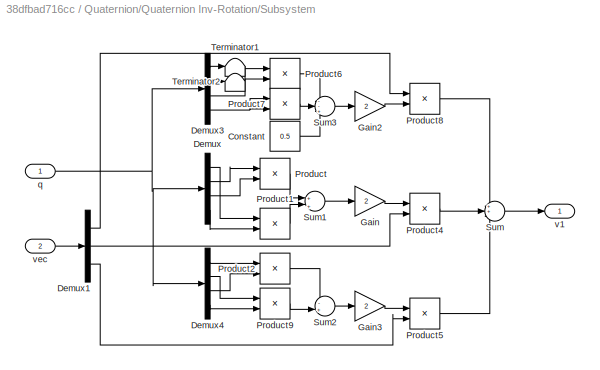
BLOCK [SubSystem] Quaternion/Quaternion Inv-Rotation/Subsystem
  Ports = [2, 1]
  RequestExecContextInheritance = off
BLOCK [Constant] Quaternion/Quaternion Inv-Rotation/Subsystem/Constant
  OutDataTypeStr = Inherit: Inherit via back propagation
  Value = 0.5
BLOCK [Demux] Quaternion/Quaternion Inv-Rotation/Subsystem/Demux
  DisplayOption = bar
  Ports = [1, 4]
BLOCK [Demux] Quaternion/Quaternion Inv-Rotation/Subsystem/Demux1
  DisplayOption = bar
  Outputs = 3
  Ports = [1, 3]
BLOCK [Demux] Quaternion/Quaternion Inv-Rotation/Subsystem/Demux3
  DisplayOption = bar
  Ports = [1, 4]
BLOCK [Demux] Quaternion/Quaternion Inv-Rotation/Subsystem/Demux4
  DisplayOption = bar
  Ports = [1, 4]
BLOCK [Gain] Quaternion/Quaternion Inv-Rotation/Subsystem/Gain
  Gain = 2
  ParamDataTypeStr = Inherit: Inherit via internal rule
  SaturateOnIntegerOverflow = off
BLOCK [Gain] Quaternion/Quaternion Inv-Rotation/Subsystem/Gain2
  Gain = 2
  ParamDataTypeStr = Inherit: Inherit via internal rule
  SaturateOnIntegerOverflow = off
BLOCK [Gain] Quaternion/Quaternion Inv-Rotation/Subsystem/Gain3
  Gain = 2
  ParamDataTypeStr = Inherit: Inherit via internal rule
  SaturateOnIntegerOverflow = off
BLOCK [Product] Quaternion/Quaternion Inv-Rotation/Subsystem/Product
  InputSameDT = off
  OutDataTypeStr = Inherit: Inherit via internal rule
  Ports = [2, 1]
  SaturateOnIntegerOverflow = off
BLOCK [Product] Quaternion/Quaternion Inv-Rotation/Subsystem/Product1
  InputSameDT = off
  OutDataTypeStr = Inherit: Inherit via internal rule
  Ports = [2, 1]
  SaturateOnIntegerOverflow = off
BLOCK [Product] Quaternion/Quaternion Inv-Rotation/Subsystem/Product2
  InputSameDT = off
  OutDataTypeStr = Inherit: Inherit via internal rule
  Ports = [2, 1]
  SaturateOnIntegerOverflow = off
BLOCK [Product] Quaternion/Quaternion Inv-Rotation/Subsystem/Product4
  InputSameDT = off
  Ports = [2, 1]
  SaturateOnIntegerOverflow = off
BLOCK [Product] Quaternion/Quaternion Inv-Rotation/Subsystem/Product5
  InputSameDT = off
  Ports = [2, 1]
  SaturateOnIntegerOverflow = off
BLOCK [Product] Quaternion/Quaternion Inv-Rotation/Subsystem/Product6
  InputSameDT = off
  OutDataTypeStr = Inherit: Inherit via internal rule
  Ports = [2, 1]
  SaturateOnIntegerOverflow = off
BLOCK [Product] Quaternion/Quaternion Inv-Rotation/Subsystem/Product7
  InputSameDT = off
  OutDataTypeStr = Inherit: Inherit via internal rule
  Ports = [2, 1]
  SaturateOnIntegerOverflow = off
BLOCK [Product] Quaternion/Quaternion Inv-Rotation/Subsystem/Product8
  InputSameDT = off
  Ports = [2, 1]
  SaturateOnIntegerOverflow = off
BLOCK [Product] Quaternion/Quaternion Inv-Rotation/Subsystem/Product9
  InputSameDT = off
  OutDataTypeStr = Inherit: Inherit via internal rule
  Ports = [2, 1]
  SaturateOnIntegerOverflow = off
BLOCK [Sum] Quaternion/Quaternion Inv-Rotation/Subsystem/Sum
  AccumDataTypeStr = single
  IconShape = round
  InputSameDT = off
  Inputs = 3
  OutDataTypeStr = Inherit: Inherit via internal rule
  Ports = [3, 1]
  SaturateOnIntegerOverflow = off
BLOCK [Sum] Quaternion/Quaternion Inv-Rotation/Subsystem/Sum1
  IconShape = round
  InputSameDT = off
  Inputs = +|+
  OutDataTypeStr = Inherit: Inherit via internal rule
  Ports = [2, 1]
  SaturateOnIntegerOverflow = off
BLOCK [Sum] Quaternion/Quaternion Inv-Rotation/Subsystem/Sum2
  IconShape = round
  InputSameDT = off
  Inputs = -+|
  OutDataTypeStr = Inherit: Inherit via internal rule
  Ports = [2, 1]
  SaturateOnIntegerOverflow = off
BLOCK [Sum] Quaternion/Quaternion Inv-Rotation/Subsystem/Sum3
  IconShape = round
  InputSameDT = off
  Inputs = --+
  OutDataTypeStr = Inherit: Inherit via internal rule
  Ports = [3, 1]
  SaturateOnIntegerOverflow = off
BLOCK [Terminator] Quaternion/Quaternion Inv-Rotation/Subsystem/Terminator1
BLOCK [Terminator] Quaternion/Quaternion Inv-Rotation/Subsystem/Terminator2
BLOCK [Inport] Quaternion/Quaternion Inv-Rotation/Subsystem/q
  IconDisplay = Port number
BLOCK [Outport] Quaternion/Quaternion Inv-Rotation/Subsystem/v1
  IconDisplay = Port number
BLOCK [Inport] Quaternion/Quaternion Inv-Rotation/Subsystem/vec
  IconDisplay = Port number
  Port = 2
BLOCK [SubSystem] Quaternion/Quaternion Inv-Rotation/Subsystem1
  Ports = [2, 1]
  RequestExecContextInheritance = off
BLOCK [Constant] Quaternion/Quaternion Inv-Rotation/Subsystem1/Constant
  OutDataTypeStr = Inherit: Inherit via back propagation
  Value = 0.5
BLOCK [Demux] Quaternion/Quaternion Inv-Rotation/Subsystem1/Demux1
  DisplayOption = bar
  Outputs = 3
  Ports = [1, 3]
BLOCK [Demux] Quaternion/Quaternion Inv-Rotation/Subsystem1/Demux2
  DisplayOption = bar
  Ports = [1, 4]
BLOCK [Demux] Quaternion/Quaternion Inv-Rotation/Subsystem1/Demux3
  DisplayOption = bar
  Ports = [1, 4]
BLOCK [Demux] Quaternion/Quaternion Inv-Rotation/Subsystem1/Demux4
  DisplayOption = bar
  Ports = [1, 4]
BLOCK [Gain] Quaternion/Quaternion Inv-Rotation/Subsystem1/Gain1
  Gain = 2
  ParamDataTypeStr = Inherit: Inherit via internal rule
  SaturateOnIntegerOverflow = off
BLOCK [Gain] Quaternion/Quaternion Inv-Rotation/Subsystem1/Gain2
  Gain = 2
  ParamDataTypeStr = Inherit: Inherit via internal rule
  SaturateOnIntegerOverflow = off
BLOCK [Gain] Quaternion/Quaternion Inv-Rotation/Subsystem1/Gain3
  Gain = 2
  ParamDataTypeStr = Inherit: Inherit via internal rule
  SaturateOnIntegerOverflow = off
BLOCK [Product] Quaternion/Quaternion Inv-Rotation/Subsystem1/Product1
  InputSameDT = off
  OutDataTypeStr = Inherit: Inherit via internal rule
  Ports = [2, 1]
  SaturateOnIntegerOverflow = off
BLOCK [Product] Quaternion/Quaternion Inv-Rotation/Subsystem1/Product2
  InputSameDT = off
  OutDataTypeStr = Inherit: Inherit via internal rule
  Ports = [2, 1]
  SaturateOnIntegerOverflow = off
BLOCK [Product] Quaternion/Quaternion Inv-Rotation/Subsystem1/Product3
  InputSameDT = off
  OutDataTypeStr = Inherit: Inherit via internal rule
  Ports = [2, 1]
  SaturateOnIntegerOverflow = off
BLOCK [Product] Quaternion/Quaternion Inv-Rotation/Subsystem1/Product4
  InputSameDT = off
  Ports = [2, 1]
  SaturateOnIntegerOverflow = off
BLOCK [Product] Quaternion/Quaternion Inv-Rotation/Subsystem1/Product5
  InputSameDT = off
  Ports = [2, 1]
  SaturateOnIntegerOverflow = off
BLOCK [Product] Quaternion/Quaternion Inv-Rotation/Subsystem1/Product6
  InputSameDT = off
  OutDataTypeStr = Inherit: Inherit via internal rule
  Ports = [2, 1]
  SaturateOnIntegerOverflow = off
BLOCK [Product] Quaternion/Quaternion Inv-Rotation/Subsystem1/Product7
  InputSameDT = off
  OutDataTypeStr = Inherit: Inherit via internal rule
  Ports = [2, 1]
  SaturateOnIntegerOverflow = off
BLOCK [Product] Quaternion/Quaternion Inv-Rotation/Subsystem1/Product8
  InputSameDT = off
  Ports = [2, 1]
  SaturateOnIntegerOverflow = off
BLOCK [Product] Quaternion/Quaternion Inv-Rotation/Subsystem1/Product9
  InputSameDT = off
  OutDataTypeStr = Inherit: Inherit via internal rule
  Ports = [2, 1]
  SaturateOnIntegerOverflow = off
BLOCK [Sum] Quaternion/Quaternion Inv-Rotation/Subsystem1/Sum
  AccumDataTypeStr = single
  IconShape = round
  InputSameDT = off
  Inputs = 3
  OutDataTypeStr = Inherit: Inherit via internal rule
  Ports = [3, 1]
  SaturateOnIntegerOverflow = off
BLOCK [Sum] Quaternion/Quaternion Inv-Rotation/Subsystem1/Sum1
  IconShape = round
  InputSameDT = off
  Inputs = --+
  OutDataTypeStr = Inherit: Inherit via internal rule
  Ports = [3, 1]
  SaturateOnIntegerOverflow = off
BLOCK [Sum] Quaternion/Quaternion Inv-Rotation/Subsystem1/Sum2
  IconShape = round
  InputSameDT = off
  Inputs = ++|
  OutDataTypeStr = Inherit: Inherit via internal rule
  Ports = [2, 1]
  SaturateOnIntegerOverflow = off
BLOCK [Sum] Quaternion/Quaternion Inv-Rotation/Subsystem1/Sum3
  IconShape = round
  InputSameDT = off
  Inputs = +|-
  OutDataTypeStr = Inherit: Inherit via internal rule
  Ports = [2, 1]
  SaturateOnIntegerOverflow = off
BLOCK [Terminator] Quaternion/Quaternion Inv-Rotation/Subsystem1/Terminator1
BLOCK [Terminator] Quaternion/Quaternion Inv-Rotation/Subsystem1/Terminator2
BLOCK [Inport] Quaternion/Quaternion Inv-Rotation/Subsystem1/q
  IconDisplay = Port number
BLOCK [Outport] Quaternion/Quaternion Inv-Rotation/Subsystem1/v2
  IconDisplay = Port number
BLOCK [Inport] Quaternion/Quaternion Inv-Rotation/Subsystem1/vec
  IconDisplay = Port number
  Port = 2
BLOCK [SubSystem] Quaternion/Quaternion Inv-Rotation/Subsystem2
  Ports = [2, 1]
  RequestExecContextInheritance = off
BLOCK [Constant] Quaternion/Quaternion Inv-Rotation/Subsystem2/Constant
  OutDataTypeStr = Inherit: Inherit via back propagation
  Value = 0.5
BLOCK [Demux] Quaternion/Quaternion Inv-Rotation/Subsystem2/Demux1
  DisplayOption = bar
  Outputs = 3
  Ports = [1, 3]
BLOCK [Demux] Quaternion/Quaternion Inv-Rotation/Subsystem2/Demux2
  DisplayOption = bar
  Ports = [1, 4]
BLOCK [Demux] Quaternion/Quaternion Inv-Rotation/Subsystem2/Demux3
  DisplayOption = bar
  Ports = [1, 4]
BLOCK [Demux] Quaternion/Quaternion Inv-Rotation/Subsystem2/Demux4
  DisplayOption = bar
  Ports = [1, 4]
BLOCK [Gain] Quaternion/Quaternion Inv-Rotation/Subsystem2/Gain1
  Gain = 2
  ParamDataTypeStr = Inherit: Inherit via internal rule
  SaturateOnIntegerOverflow = off
BLOCK [Gain] Quaternion/Quaternion Inv-Rotation/Subsystem2/Gain2
  Gain = 2
  ParamDataTypeStr = Inherit: Inherit via internal rule
  SaturateOnIntegerOverflow = off
BLOCK [Gain] Quaternion/Quaternion Inv-Rotation/Subsystem2/Gain3
  Gain = 2
  ParamDataTypeStr = Inherit: Inherit via internal rule
  SaturateOnIntegerOverflow = off
BLOCK [Product] Quaternion/Quaternion Inv-Rotation/Subsystem2/Product1
  InputSameDT = off
  OutDataTypeStr = Inherit: Inherit via internal rule
  Ports = [2, 1]
  SaturateOnIntegerOverflow = off
BLOCK [Product] Quaternion/Quaternion Inv-Rotation/Subsystem2/Product2
  InputSameDT = off
  OutDataTypeStr = Inherit: Inherit via internal rule
  Ports = [2, 1]
  SaturateOnIntegerOverflow = off
BLOCK [Product] Quaternion/Quaternion Inv-Rotation/Subsystem2/Product3
  InputSameDT = off
  OutDataTypeStr = Inherit: Inherit via internal rule
  Ports = [2, 1]
  SaturateOnIntegerOverflow = off
BLOCK [Product] Quaternion/Quaternion Inv-Rotation/Subsystem2/Product4
  InputSameDT = off
  Ports = [2, 1]
  SaturateOnIntegerOverflow = off
BLOCK [Product] Quaternion/Quaternion Inv-Rotation/Subsystem2/Product5
  InputSameDT = off
  Ports = [2, 1]
  SaturateOnIntegerOverflow = off
BLOCK [Product] Quaternion/Quaternion Inv-Rotation/Subsystem2/Product6
  InputSameDT = off
  OutDataTypeStr = Inherit: Inherit via internal rule
  Ports = [2, 1]
  SaturateOnIntegerOverflow = off
BLOCK [Product] Quaternion/Quaternion Inv-Rotation/Subsystem2/Product7
  InputSameDT = off
  OutDataTypeStr = Inherit: Inherit via internal rule
  Ports = [2, 1]
  SaturateOnIntegerOverflow = off
BLOCK [Product] Quaternion/Quaternion Inv-Rotation/Subsystem2/Product8
  InputSameDT = off
  Ports = [2, 1]
  SaturateOnIntegerOverflow = off
BLOCK [Product] Quaternion/Quaternion Inv-Rotation/Subsystem2/Product9
  InputSameDT = off
  OutDataTypeStr = Inherit: Inherit via internal rule
  Ports = [2, 1]
  SaturateOnIntegerOverflow = off
BLOCK [Sum] Quaternion/Quaternion Inv-Rotation/Subsystem2/Sum
  AccumDataTypeStr = single
  IconShape = round
  InputSameDT = off
  Inputs = 3
  OutDataTypeStr = Inherit: Inherit via internal rule
  Ports = [3, 1]
  SaturateOnIntegerOverflow = off
BLOCK [Sum] Quaternion/Quaternion Inv-Rotation/Subsystem2/Sum1
  IconShape = round
  InputSameDT = off
  Inputs = -+|
  OutDataTypeStr = Inherit: Inherit via internal rule
  Ports = [2, 1]
  SaturateOnIntegerOverflow = off
BLOCK [Sum] Quaternion/Quaternion Inv-Rotation/Subsystem2/Sum2
  IconShape = round
  InputSameDT = off
  Inputs = --+
  OutDataTypeStr = Inherit: Inherit via internal rule
  Ports = [3, 1]
  SaturateOnIntegerOverflow = off
BLOCK [Sum] Quaternion/Quaternion Inv-Rotation/Subsystem2/Sum3
  IconShape = round
  InputSameDT = off
  Inputs = +|+
  OutDataTypeStr = Inherit: Inherit via internal rule
  Ports = [2, 1]
  SaturateOnIntegerOverflow = off
BLOCK [Terminator] Quaternion/Quaternion Inv-Rotation/Subsystem2/Terminator
BLOCK [Terminator] Quaternion/Quaternion Inv-Rotation/Subsystem2/Terminator1
BLOCK [Inport] Quaternion/Quaternion Inv-Rotation/Subsystem2/q
  IconDisplay = Port number
BLOCK [Outport] Quaternion/Quaternion Inv-Rotation/Subsystem2/v3
  IconDisplay = Port number
BLOCK [Inport] Quaternion/Quaternion Inv-Rotation/Subsystem2/vec
  IconDisplay = Port number
  Port = 2
BLOCK [Inport] Quaternion/Quaternion Inv-Rotation/q
  IconDisplay = Port number
BLOCK [Outport] Quaternion/Quaternion Inv-Rotation/v_B
  IconDisplay = Port number
BLOCK [Inport] Quaternion/Quaternion Inv-Rotation/v_O
  IconDisplay = Port number
  Port = 2
BLOCK [SubSystem] Quaternion/Quaternion Inverse
  Ports = [1, 1]
  RequestExecContextInheritance = off
BLOCK [Product] Quaternion/Quaternion Inverse/Divide
  InputSameDT = off
  Inputs = */
  OutDataTypeStr = Inherit: Inherit via internal rule
  Ports = [2, 1]
  RndMeth = Floor
  SaturateOnIntegerOverflow = off
BLOCK [Reference] Quaternion/Quaternion Inverse/Quaternion Conjugate  REF=$bdroot/Quaternion/Quaternion Conjugate
  Ports = [1, 1]
  SourceBlock = $bdroot/Quaternion/Quaternion Conjugate
  SourceType = Quaternion Conjugate
BLOCK [Math] Quaternion/Quaternion Inverse/Square
  Operator = square
  Ports = [1, 1]
BLOCK [Sum] Quaternion/Quaternion Inverse/Sum of Elements
  InputSameDT = off
  Inputs = +
  OutDataTypeStr = Inherit: Inherit via internal rule
  Ports = [1, 1]
  SaturateOnIntegerOverflow = off
BLOCK [Inport] Quaternion/Quaternion Inverse/q
  IconDisplay = Port number
BLOCK [Outport] Quaternion/Quaternion Inverse/q'
  IconDisplay = Port number
BLOCK [SubSystem] Quaternion/Quaternion Modulus
  Ports = [1, 1]
  RequestExecContextInheritance = off
BLOCK [Sqrt] Quaternion/Quaternion Modulus/Sqrt
BLOCK [Math] Quaternion/Quaternion Modulus/Square
  Operator = square
  Ports = [1, 1]
BLOCK [Sum] Quaternion/Quaternion Modulus/Sum of Elements
  InputSameDT = off
  Inputs = +
  OutDataTypeStr = Inherit: Inherit via internal rule
  Ports = [1, 1]
  SaturateOnIntegerOverflow = off
BLOCK [Outport] Quaternion/Quaternion Modulus/q
  IconDisplay = Port number
BLOCK [Inport] Quaternion/Quaternion Modulus/q1
  IconDisplay = Port number
BLOCK [SubSystem] Quaternion/Quaternion Multiply
  Ports = [2, 1]
  RequestExecContextInheritance = off
BLOCK [Mux] Quaternion/Quaternion Multiply/Mux
  DisplayOption = bar
  Ports = [4, 1]
BLOCK [Outport] Quaternion/Quaternion Multiply/q
  IconDisplay = Port number
BLOCK [Inport] Quaternion/Quaternion Multiply/q1
  IconDisplay = Port number
BLOCK [Inport] Quaternion/Quaternion Multiply/q2
  IconDisplay = Port number
  Port = 2
BLOCK [SubSystem] Quaternion/Quaternion Multiply/q_0
  Ports = [2, 1]
  RequestExecContextInheritance = off
BLOCK [Sum] Quaternion/Quaternion Multiply/q_0/Add
  AccumDataTypeStr = Inherit: Same as first input
  InputSameDT = off
  Inputs = +---
  OutDataTypeStr = Inherit: Inherit via internal rule
  Ports = [4, 1]
  SaturateOnIntegerOverflow = off
BLOCK [Demux] Quaternion/Quaternion Multiply/q_0/Demux
  DisplayOption = bar
  Ports = [1, 4]
BLOCK [Demux] Quaternion/Quaternion Multiply/q_0/Demux1
  DisplayOption = bar
  Ports = [1, 4]
BLOCK [Product] Quaternion/Quaternion Multiply/q_0/Multiply
  InputSameDT = off
  Ports = [2, 1]
  RndMeth = Floor
  SaturateOnIntegerOverflow = off
BLOCK [Product] Quaternion/Quaternion Multiply/q_0/Multiply1
  InputSameDT = off
  Ports = [2, 1]
  RndMeth = Floor
  SaturateOnIntegerOverflow = off
BLOCK [Product] Quaternion/Quaternion Multiply/q_0/Multiply2
  InputSameDT = off
  Ports = [2, 1]
  RndMeth = Floor
  SaturateOnIntegerOverflow = off
BLOCK [Product] Quaternion/Quaternion Multiply/q_0/Multiply3
  InputSameDT = off
  Ports = [2, 1]
  RndMeth = Floor
  SaturateOnIntegerOverflow = off
BLOCK [Inport] Quaternion/Quaternion Multiply/q_0/q
  IconDisplay = Port number
BLOCK [Outport] Quaternion/Quaternion Multiply/q_0/q0
  IconDisplay = Port number
BLOCK [Inport] Quaternion/Quaternion Multiply/q_0/r
  IconDisplay = Port number
  Port = 2
BLOCK [SubSystem] Quaternion/Quaternion Multiply/q_1
  Ports = [2, 1]
  RequestExecContextInheritance = off
BLOCK [Sum] Quaternion/Quaternion Multiply/q_1/Add
  AccumDataTypeStr = Inherit: Same as first input
  InputSameDT = off
  Inputs = +++-
  OutDataTypeStr = Inherit: Inherit via internal rule
  Ports = [4, 1]
  SaturateOnIntegerOverflow = off
BLOCK [Demux] Quaternion/Quaternion Multiply/q_1/Demux
  DisplayOption = bar
  Ports = [1, 4]
BLOCK [Demux] Quaternion/Quaternion Multiply/q_1/Demux1
  DisplayOption = bar
  Ports = [1, 4]
BLOCK [Product] Quaternion/Quaternion Multiply/q_1/Multiply
  InputSameDT = off
  Ports = [2, 1]
  RndMeth = Floor
  SaturateOnIntegerOverflow = off
BLOCK [Product] Quaternion/Quaternion Multiply/q_1/Multiply1
  InputSameDT = off
  Ports = [2, 1]
  RndMeth = Floor
  SaturateOnIntegerOverflow = off
BLOCK [Product] Quaternion/Quaternion Multiply/q_1/Multiply2
  InputSameDT = off
  Ports = [2, 1]
  RndMeth = Floor
  SaturateOnIntegerOverflow = off
BLOCK [Product] Quaternion/Quaternion Multiply/q_1/Multiply3
  InputSameDT = off
  Ports = [2, 1]
  RndMeth = Floor
  SaturateOnIntegerOverflow = off
BLOCK [Inport] Quaternion/Quaternion Multiply/q_1/q
  IconDisplay = Port number
BLOCK [Outport] Quaternion/Quaternion Multiply/q_1/q2
  IconDisplay = Port number
BLOCK [Inport] Quaternion/Quaternion Multiply/q_1/r
  IconDisplay = Port number
  Port = 2
BLOCK [SubSystem] Quaternion/Quaternion Multiply/q_2
  Ports = [2, 1]
  RequestExecContextInheritance = off
BLOCK [Sum] Quaternion/Quaternion Multiply/q_2/Add
  AccumDataTypeStr = Inherit: Same as first input
  InputSameDT = off
  Inputs = +++-
  OutDataTypeStr = Inherit: Inherit via internal rule
  Ports = [4, 1]
  SaturateOnIntegerOverflow = off
BLOCK [Demux] Quaternion/Quaternion Multiply/q_2/Demux
  DisplayOption = bar
  Ports = [1, 4]
BLOCK [Demux] Quaternion/Quaternion Multiply/q_2/Demux1
  DisplayOption = bar
  Ports = [1, 4]
BLOCK [Product] Quaternion/Quaternion Multiply/q_2/Multiply
  InputSameDT = off
  Ports = [2, 1]
  RndMeth = Floor
  SaturateOnIntegerOverflow = off
BLOCK [Product] Quaternion/Quaternion Multiply/q_2/Multiply1
  InputSameDT = off
  Ports = [2, 1]
  RndMeth = Floor
  SaturateOnIntegerOverflow = off
BLOCK [Product] Quaternion/Quaternion Multiply/q_2/Multiply2
  InputSameDT = off
  Ports = [2, 1]
  RndMeth = Floor
  SaturateOnIntegerOverflow = off
BLOCK [Product] Quaternion/Quaternion Multiply/q_2/Multiply3
  InputSameDT = off
  Ports = [2, 1]
  RndMeth = Floor
  SaturateOnIntegerOverflow = off
BLOCK [Inport] Quaternion/Quaternion Multiply/q_2/q
  IconDisplay = Port number
BLOCK [Outport] Quaternion/Quaternion Multiply/q_2/q3
  IconDisplay = Port number
BLOCK [Inport] Quaternion/Quaternion Multiply/q_2/r
  IconDisplay = Port number
  Port = 2
BLOCK [SubSystem] Quaternion/Quaternion Multiply/q_4
  Ports = [2, 1]
  RequestExecContextInheritance = off
BLOCK [Sum] Quaternion/Quaternion Multiply/q_4/Add
  AccumDataTypeStr = Inherit: Same as first input
  InputSameDT = off
  Inputs = +++-
  OutDataTypeStr = Inherit: Inherit via internal rule
  Ports = [4, 1]
  SaturateOnIntegerOverflow = off
BLOCK [Demux] Quaternion/Quaternion Multiply/q_4/Demux
  DisplayOption = bar
  Ports = [1, 4]
BLOCK [Demux] Quaternion/Quaternion Multiply/q_4/Demux1
  DisplayOption = bar
  Ports = [1, 4]
BLOCK [Product] Quaternion/Quaternion Multiply/q_4/Multiply
  InputSameDT = off
  Ports = [2, 1]
  RndMeth = Floor
  SaturateOnIntegerOverflow = off
BLOCK [Product] Quaternion/Quaternion Multiply/q_4/Multiply1
  InputSameDT = off
  Ports = [2, 1]
  RndMeth = Floor
  SaturateOnIntegerOverflow = off
BLOCK [Product] Quaternion/Quaternion Multiply/q_4/Multiply2
  InputSameDT = off
  Ports = [2, 1]
  RndMeth = Floor
  SaturateOnIntegerOverflow = off
BLOCK [Product] Quaternion/Quaternion Multiply/q_4/Multiply3
  InputSameDT = off
  Ports = [2, 1]
  RndMeth = Floor
  SaturateOnIntegerOverflow = off
BLOCK [Inport] Quaternion/Quaternion Multiply/q_4/q
  IconDisplay = Port number
BLOCK [Outport] Quaternion/Quaternion Multiply/q_4/q4
  IconDisplay = Port number
BLOCK [Inport] Quaternion/Quaternion Multiply/q_4/r
  IconDisplay = Port number
  Port = 2
BLOCK [SubSystem] Quaternion/Quaternion Normalize
  Ports = [1, 1]
  RequestExecContextInheritance = off
BLOCK [Product] Quaternion/Quaternion Normalize/Divide
  InputSameDT = off
  Inputs = */
  OutDataTypeStr = Inherit: Inherit via internal rule
  Ports = [2, 1]
  RndMeth = Floor
  SaturateOnIntegerOverflow = off
BLOCK [Reference] Quaternion/Quaternion Normalize/Quaternion Modulus  REF=$bdroot/Quaternion/Quaternion Modulus
  Ports = [1, 1]
  SourceBlock = $bdroot/Quaternion/Quaternion Modulus
  SourceType = Quaternion Modulus
BLOCK [Outport] Quaternion/Quaternion Normalize/q
  IconDisplay = Port number
BLOCK [Inport] Quaternion/Quaternion Normalize/q1
  IconDisplay = Port number
BLOCK [SubSystem] Quaternion/Quaternion Rotation
  Ports = [2, 1]
  RequestExecContextInheritance = off
BLOCK [Mux] Quaternion/Quaternion Rotation/Mux
  DisplayOption = bar
  Inputs = 3
  Ports = [3, 1]
BLOCK [Reference] Quaternion/Quaternion Rotation/Quaternion Normalize  REF=$bdroot/Quaternion/Quaternion Normalize
  Ports = [1, 1]
  SourceBlock = $bdroot/Quaternion/Quaternion Normalize
  SourceType = Quaternion Modulus
BLOCK [Inport] Quaternion/Quaternion Rotation/q
  IconDisplay = Port number
BLOCK [SubSystem] Quaternion/Quaternion Rotation/v1
  Ports = [2, 1]
  RequestExecContextInheritance = off
BLOCK [Constant] Quaternion/Quaternion Rotation/v1/Constant
  OutDataTypeStr = Inherit: Inherit via back propagation
  Value = 0.5
BLOCK [Demux] Quaternion/Quaternion Rotation/v1/Demux
  DisplayOption = bar
  Ports = [1, 4]
BLOCK [Demux] Quaternion/Quaternion Rotation/v1/Demux1
  DisplayOption = bar
  Outputs = 3
  Ports = [1, 3]
BLOCK [Demux] Quaternion/Quaternion Rotation/v1/Demux2
  DisplayOption = bar
  Ports = [1, 4]
BLOCK [Demux] Quaternion/Quaternion Rotation/v1/Demux3
  DisplayOption = bar
  Ports = [1, 4]
BLOCK [Gain] Quaternion/Quaternion Rotation/v1/Gain
  Gain = 2
  ParamDataTypeStr = Inherit: Inherit via internal rule
  SaturateOnIntegerOverflow = off
BLOCK [Gain] Quaternion/Quaternion Rotation/v1/Gain1
  Gain = 2
  ParamDataTypeStr = Inherit: Inherit via internal rule
  SaturateOnIntegerOverflow = off
BLOCK [Gain] Quaternion/Quaternion Rotation/v1/Gain2
  Gain = 2
  ParamDataTypeStr = Inherit: Inherit via internal rule
  SaturateOnIntegerOverflow = off
BLOCK [Product] Quaternion/Quaternion Rotation/v1/Product
  InputSameDT = off
  OutDataTypeStr = Inherit: Inherit via internal rule
  Ports = [2, 1]
  SaturateOnIntegerOverflow = off
BLOCK [Product] Quaternion/Quaternion Rotation/v1/Product1
  InputSameDT = off
  OutDataTypeStr = Inherit: Inherit via internal rule
  Ports = [2, 1]
  SaturateOnIntegerOverflow = off
BLOCK [Product] Quaternion/Quaternion Rotation/v1/Product2
  InputSameDT = off
  OutDataTypeStr = Inherit: Inherit via internal rule
  Ports = [2, 1]
  SaturateOnIntegerOverflow = off
BLOCK [Product] Quaternion/Quaternion Rotation/v1/Product3
  InputSameDT = off
  OutDataTypeStr = Inherit: Inherit via internal rule
  Ports = [2, 1]
  SaturateOnIntegerOverflow = off
BLOCK [Product] Quaternion/Quaternion Rotation/v1/Product4
  InputSameDT = off
  Ports = [2, 1]
  SaturateOnIntegerOverflow = off
BLOCK [Product] Quaternion/Quaternion Rotation/v1/Product5
  InputSameDT = off
  Ports = [2, 1]
  SaturateOnIntegerOverflow = off
BLOCK [Product] Quaternion/Quaternion Rotation/v1/Product6
  InputSameDT = off
  OutDataTypeStr = Inherit: Inherit via internal rule
  Ports = [2, 1]
  SaturateOnIntegerOverflow = off
BLOCK [Product] Quaternion/Quaternion Rotation/v1/Product7
  InputSameDT = off
  OutDataTypeStr = Inherit: Inherit via internal rule
  Ports = [2, 1]
  SaturateOnIntegerOverflow = off
BLOCK [Product] Quaternion/Quaternion Rotation/v1/Product8
  InputSameDT = off
  Ports = [2, 1]
  SaturateOnIntegerOverflow = off
BLOCK [Sum] Quaternion/Quaternion Rotation/v1/Sum
  AccumDataTypeStr = single
  IconShape = round
  InputSameDT = off
  Inputs = 3
  OutDataTypeStr = Inherit: Inherit via internal rule
  Ports = [3, 1]
  SaturateOnIntegerOverflow = off
BLOCK [Sum] Quaternion/Quaternion Rotation/v1/Sum1
  IconShape = round
  InputSameDT = off
  Inputs = +|-
  OutDataTypeStr = Inherit: Inherit via internal rule
  Ports = [2, 1]
  SaturateOnIntegerOverflow = off
BLOCK [Sum] Quaternion/Quaternion Rotation/v1/Sum2
  IconShape = round
  InputSameDT = off
  Inputs = +|+
  OutDataTypeStr = Inherit: Inherit via internal rule
  Ports = [2, 1]
  SaturateOnIntegerOverflow = off
BLOCK [Sum] Quaternion/Quaternion Rotation/v1/Sum3
  IconShape = round
  InputSameDT = off
  Inputs = --+
  OutDataTypeStr = Inherit: Inherit via internal rule
  Ports = [3, 1]
  SaturateOnIntegerOverflow = off
BLOCK [Terminator] Quaternion/Quaternion Rotation/v1/Terminator1
BLOCK [Terminator] Quaternion/Quaternion Rotation/v1/Terminator2
BLOCK [Inport] Quaternion/Quaternion Rotation/v1/q
  IconDisplay = Port number
BLOCK [Outport] Quaternion/Quaternion Rotation/v1/v1
  IconDisplay = Port number
BLOCK [Inport] Quaternion/Quaternion Rotation/v1/vec
  IconDisplay = Port number
  Port = 2
BLOCK [SubSystem] Quaternion/Quaternion Rotation/v2
  Ports = [2, 1]
  RequestExecContextInheritance = off
BLOCK [Constant] Quaternion/Quaternion Rotation/v2/Constant
  OutDataTypeStr = Inherit: Inherit via back propagation
  Value = 0.5
BLOCK [Demux] Quaternion/Quaternion Rotation/v2/Demux
  DisplayOption = bar
  Ports = [1, 4]
BLOCK [Demux] Quaternion/Quaternion Rotation/v2/Demux1
  DisplayOption = bar
  Outputs = 3
  Ports = [1, 3]
BLOCK [Demux] Quaternion/Quaternion Rotation/v2/Demux2
  DisplayOption = bar
  Ports = [1, 4]
BLOCK [Demux] Quaternion/Quaternion Rotation/v2/Demux3
  DisplayOption = bar
  Ports = [1, 4]
BLOCK [Gain] Quaternion/Quaternion Rotation/v2/Gain
  Gain = 2
  ParamDataTypeStr = Inherit: Inherit via internal rule
  SaturateOnIntegerOverflow = off
BLOCK [Gain] Quaternion/Quaternion Rotation/v2/Gain1
  Gain = 2
  ParamDataTypeStr = Inherit: Inherit via internal rule
  SaturateOnIntegerOverflow = off
BLOCK [Gain] Quaternion/Quaternion Rotation/v2/Gain2
  Gain = 2
  ParamDataTypeStr = Inherit: Inherit via internal rule
  SaturateOnIntegerOverflow = off
BLOCK [Product] Quaternion/Quaternion Rotation/v2/Product
  InputSameDT = off
  OutDataTypeStr = Inherit: Inherit via internal rule
  Ports = [2, 1]
  SaturateOnIntegerOverflow = off
BLOCK [Product] Quaternion/Quaternion Rotation/v2/Product1
  InputSameDT = off
  OutDataTypeStr = Inherit: Inherit via internal rule
  Ports = [2, 1]
  SaturateOnIntegerOverflow = off
BLOCK [Product] Quaternion/Quaternion Rotation/v2/Product2
  InputSameDT = off
  OutDataTypeStr = Inherit: Inherit via internal rule
  Ports = [2, 1]
  SaturateOnIntegerOverflow = off
BLOCK [Product] Quaternion/Quaternion Rotation/v2/Product3
  InputSameDT = off
  OutDataTypeStr = Inherit: Inherit via internal rule
  Ports = [2, 1]
  SaturateOnIntegerOverflow = off
BLOCK [Product] Quaternion/Quaternion Rotation/v2/Product4
  InputSameDT = off
  OutDataTypeStr = Inherit: Inherit via internal rule
  Ports = [2, 1]
  SaturateOnIntegerOverflow = off
BLOCK [Product] Quaternion/Quaternion Rotation/v2/Product5
  InputSameDT = off
  OutDataTypeStr = Inherit: Inherit via internal rule
  Ports = [2, 1]
  SaturateOnIntegerOverflow = off
BLOCK [Product] Quaternion/Quaternion Rotation/v2/Product6
  InputSameDT = off
  OutDataTypeStr = Inherit: Inherit via internal rule
  Ports = [2, 1]
  SaturateOnIntegerOverflow = off
BLOCK [Product] Quaternion/Quaternion Rotation/v2/Product7
  InputSameDT = off
  OutDataTypeStr = Inherit: Inherit via internal rule
  Ports = [2, 1]
  SaturateOnIntegerOverflow = off
BLOCK [Product] Quaternion/Quaternion Rotation/v2/Product8
  InputSameDT = off
  OutDataTypeStr = Inherit: Inherit via internal rule
  Ports = [2, 1]
  SaturateOnIntegerOverflow = off
BLOCK [Sum] Quaternion/Quaternion Rotation/v2/Sum
  AccumDataTypeStr = single
  IconShape = round
  InputSameDT = off
  Inputs = 3
  OutDataTypeStr = Inherit: Inherit via internal rule
  Ports = [3, 1]
  SaturateOnIntegerOverflow = off
BLOCK [Sum] Quaternion/Quaternion Rotation/v2/Sum1
  IconShape = round
  InputSameDT = off
  Inputs = +|+
  OutDataTypeStr = Inherit: Inherit via internal rule
  Ports = [2, 1]
  SaturateOnIntegerOverflow = off
BLOCK [Sum] Quaternion/Quaternion Rotation/v2/Sum2
  IconShape = round
  InputSameDT = off
  Inputs = -+|
  OutDataTypeStr = Inherit: Inherit via internal rule
  Ports = [2, 1]
  SaturateOnIntegerOverflow = off
BLOCK [Sum] Quaternion/Quaternion Rotation/v2/Sum3
  IconShape = round
  InputSameDT = off
  Inputs = --+
  OutDataTypeStr = Inherit: Inherit via internal rule
  Ports = [3, 1]
  SaturateOnIntegerOverflow = off
BLOCK [Terminator] Quaternion/Quaternion Rotation/v2/Terminator1
BLOCK [Terminator] Quaternion/Quaternion Rotation/v2/Terminator2
BLOCK [Inport] Quaternion/Quaternion Rotation/v2/q
  IconDisplay = Port number
BLOCK [Outport] Quaternion/Quaternion Rotation/v2/v2
  IconDisplay = Port number
BLOCK [Inport] Quaternion/Quaternion Rotation/v2/vec
  IconDisplay = Port number
  Port = 2
BLOCK [SubSystem] Quaternion/Quaternion Rotation/v3
  Ports = [2, 1]
  RequestExecContextInheritance = off
BLOCK [Constant] Quaternion/Quaternion Rotation/v3/Constant
  OutDataTypeStr = Inherit: Inherit via back propagation
  Value = 0.5
BLOCK [Demux] Quaternion/Quaternion Rotation/v3/Demux1
  DisplayOption = bar
  Outputs = 3
  Ports = [1, 3]
BLOCK [Demux] Quaternion/Quaternion Rotation/v3/Demux2
  DisplayOption = bar
  Ports = [1, 4]
BLOCK [Demux] Quaternion/Quaternion Rotation/v3/Demux3
  DisplayOption = bar
  Ports = [1, 4]
BLOCK [Demux] Quaternion/Quaternion Rotation/v3/Demux4
  DisplayOption = bar
  Ports = [1, 4]
BLOCK [Gain] Quaternion/Quaternion Rotation/v3/Gain1
  Gain = 2
  ParamDataTypeStr = Inherit: Inherit via internal rule
  SaturateOnIntegerOverflow = off
BLOCK [Gain] Quaternion/Quaternion Rotation/v3/Gain2
  Gain = 2
  ParamDataTypeStr = Inherit: Inherit via internal rule
  SaturateOnIntegerOverflow = off
BLOCK [Gain] Quaternion/Quaternion Rotation/v3/Gain3
  Gain = 2
  ParamDataTypeStr = Inherit: Inherit via internal rule
  SaturateOnIntegerOverflow = off
BLOCK [Product] Quaternion/Quaternion Rotation/v3/Product1
  InputSameDT = off
  OutDataTypeStr = Inherit: Inherit via internal rule
  Ports = [2, 1]
  SaturateOnIntegerOverflow = off
BLOCK [Product] Quaternion/Quaternion Rotation/v3/Product2
  InputSameDT = off
  OutDataTypeStr = Inherit: Inherit via internal rule
  Ports = [2, 1]
  SaturateOnIntegerOverflow = off
BLOCK [Product] Quaternion/Quaternion Rotation/v3/Product3
  InputSameDT = off
  OutDataTypeStr = Inherit: Inherit via internal rule
  Ports = [2, 1]
  SaturateOnIntegerOverflow = off
BLOCK [Product] Quaternion/Quaternion Rotation/v3/Product4
  InputSameDT = off
  OutDataTypeStr = Inherit: Inherit via internal rule
  Ports = [2, 1]
  SaturateOnIntegerOverflow = off
BLOCK [Product] Quaternion/Quaternion Rotation/v3/Product5
  InputSameDT = off
  OutDataTypeStr = Inherit: Inherit via internal rule
  Ports = [2, 1]
  SaturateOnIntegerOverflow = off
BLOCK [Product] Quaternion/Quaternion Rotation/v3/Product6
  InputSameDT = off
  OutDataTypeStr = Inherit: Inherit via internal rule
  Ports = [2, 1]
  SaturateOnIntegerOverflow = off
BLOCK [Product] Quaternion/Quaternion Rotation/v3/Product7
  InputSameDT = off
  OutDataTypeStr = Inherit: Inherit via internal rule
  Ports = [2, 1]
  SaturateOnIntegerOverflow = off
BLOCK [Product] Quaternion/Quaternion Rotation/v3/Product8
  InputSameDT = off
  OutDataTypeStr = Inherit: Inherit via internal rule
  Ports = [2, 1]
  SaturateOnIntegerOverflow = off
BLOCK [Product] Quaternion/Quaternion Rotation/v3/Product9
  InputSameDT = off
  OutDataTypeStr = Inherit: Inherit via internal rule
  Ports = [2, 1]
  SaturateOnIntegerOverflow = off
BLOCK [Sum] Quaternion/Quaternion Rotation/v3/Sum
  AccumDataTypeStr = single
  IconShape = round
  InputSameDT = off
  Inputs = 3
  OutDataTypeStr = Inherit: Inherit via internal rule
  Ports = [3, 1]
  SaturateOnIntegerOverflow = off
BLOCK [Sum] Quaternion/Quaternion Rotation/v3/Sum1
  IconShape = round
  InputSameDT = off
  Inputs = -+|
  OutDataTypeStr = Inherit: Inherit via internal rule
  Ports = [2, 1]
  SaturateOnIntegerOverflow = off
BLOCK [Sum] Quaternion/Quaternion Rotation/v3/Sum2
  IconShape = round
  InputSameDT = off
  Inputs = ++|
  OutDataTypeStr = Inherit: Inherit via internal rule
  Ports = [2, 1]
  SaturateOnIntegerOverflow = off
BLOCK [Sum] Quaternion/Quaternion Rotation/v3/Sum3
  IconShape = round
  InputSameDT = off
  Inputs = --+
  OutDataTypeStr = Inherit: Inherit via internal rule
  Ports = [3, 1]
  SaturateOnIntegerOverflow = off
BLOCK [Terminator] Quaternion/Quaternion Rotation/v3/Terminator
BLOCK [Terminator] Quaternion/Quaternion Rotation/v3/Terminator1
BLOCK [Inport] Quaternion/Quaternion Rotation/v3/q
  IconDisplay = Port number
BLOCK [Outport] Quaternion/Quaternion Rotation/v3/v3
  IconDisplay = Port number
BLOCK [Inport] Quaternion/Quaternion Rotation/v3/vec
  IconDisplay = Port number
  Port = 2
BLOCK [Inport] Quaternion/Quaternion Rotation/v_B
  IconDisplay = Port number
  Port = 2
BLOCK [Outport] Quaternion/Quaternion Rotation/v_O
  IconDisplay = Port number
BLOCK [SubSystem] Quaternion/Quaternion To DCM
  Ports = [1, 1]
  RequestExecContextInheritance = off
BLOCK [Outport] Quaternion/Quaternion To DCM/M_BO
  IconDisplay = Port number
BLOCK [Concatenate] Quaternion/Quaternion To DCM/Matrix Concatenate1
  ConcatenateDimension = 2
  Mode = Multidimensional array
  NumInputs = 3
  Ports = [3, 1]
BLOCK [Reference] Quaternion/Quaternion To DCM/Quaternion Normalize  REF=$bdroot/Quaternion/Quaternion Normalize
  Ports = [1, 1]
  SourceBlock = $bdroot/Quaternion/Quaternion Normalize
  SourceType = Quaternion Modulus
BLOCK [SubSystem] Quaternion/Quaternion To DCM/column_1
  Ports = [1, 1]
  RequestExecContextInheritance = off
BLOCK [Sum] Quaternion/Quaternion To DCM/column_1/Add
  AccumDataTypeStr = Inherit: Same as first input
  InputSameDT = off
  OutDataTypeStr = Inherit: Inherit via internal rule
  Ports = [2, 1]
  SaturateOnIntegerOverflow = off
BLOCK [Sum] Quaternion/Quaternion To DCM/column_1/Add1
  AccumDataTypeStr = Inherit: Same as first input
  InputSameDT = off
  OutDataTypeStr = Inherit: Inherit via internal rule
  Ports = [2, 1]
  SaturateOnIntegerOverflow = off
BLOCK [Sum] Quaternion/Quaternion To DCM/column_1/Add2
  AccumDataTypeStr = Inherit: Same as first input
  InputSameDT = off
  OutDataTypeStr = Inherit: Inherit via internal rule
  Ports = [2, 1]
  SaturateOnIntegerOverflow = off
BLOCK [Demux] Quaternion/Quaternion To DCM/column_1/Demux
  DisplayOption = bar
  Ports = [1, 4]
BLOCK [Gain] Quaternion/Quaternion To DCM/column_1/Gain
  Gain = 2
  ParamDataTypeStr = Inherit: Inherit via internal rule
  SaturateOnIntegerOverflow = off
BLOCK [Gain] Quaternion/Quaternion To DCM/column_1/Gain1
  Gain = 2
  ParamDataTypeStr = Inherit: Inherit via internal rule
  SaturateOnIntegerOverflow = off
BLOCK [Concatenate] Quaternion/Quaternion To DCM/column_1/Matrix Concatenate
  ConcatenateDimension = 2
  NumInputs = 3
  Ports = [3, 1]
BLOCK [Product] Quaternion/Quaternion To DCM/column_1/Multiply
  InputSameDT = off
  Ports = [2, 1]
  RndMeth = Floor
  SaturateOnIntegerOverflow = off
BLOCK [Product] Quaternion/Quaternion To DCM/column_1/Multiply1
  InputSameDT = off
  Ports = [2, 1]
  RndMeth = Floor
  SaturateOnIntegerOverflow = off
BLOCK [Product] Quaternion/Quaternion To DCM/column_1/Multiply2
  InputSameDT = off
  Ports = [2, 1]
  RndMeth = Floor
  SaturateOnIntegerOverflow = off
BLOCK [Product] Quaternion/Quaternion To DCM/column_1/Multiply3
  InputSameDT = off
  Ports = [2, 1]
  RndMeth = Floor
  SaturateOnIntegerOverflow = off
BLOCK [Math] Quaternion/Quaternion To DCM/column_1/Square
  Operator = square
  Ports = [1, 1]
BLOCK [Math] Quaternion/Quaternion To DCM/column_1/Square1
  Operator = square
  Ports = [1, 1]
BLOCK [Math] Quaternion/Quaternion To DCM/column_1/Square2
  Operator = square
  Ports = [1, 1]
BLOCK [Math] Quaternion/Quaternion To DCM/column_1/Square3
  Operator = square
  Ports = [1, 1]
BLOCK [Sum] Quaternion/Quaternion To DCM/column_1/Subtract
  AccumDataTypeStr = Inherit: Same as first input
  InputSameDT = off
  Inputs = +-
  OutDataTypeStr = Inherit: Inherit via internal rule
  Ports = [2, 1]
  SaturateOnIntegerOverflow = off
BLOCK [Sum] Quaternion/Quaternion To DCM/column_1/Subtract1
  AccumDataTypeStr = Inherit: Same as first input
  InputSameDT = off
  Inputs = +-
  OutDataTypeStr = Inherit: Inherit via internal rule
  Ports = [2, 1]
  SaturateOnIntegerOverflow = off
BLOCK [Outport] Quaternion/Quaternion To DCM/column_1/c1
  IconDisplay = Port number
BLOCK [Inport] Quaternion/Quaternion To DCM/column_1/q
  IconDisplay = Port number
BLOCK [SubSystem] Quaternion/Quaternion To DCM/column_2
  Ports = [1, 1]
  RequestExecContextInheritance = off
BLOCK [Sum] Quaternion/Quaternion To DCM/column_2/Add
  AccumDataTypeStr = Inherit: Same as first input
  InputSameDT = off
  OutDataTypeStr = Inherit: Inherit via internal rule
  Ports = [2, 1]
  SaturateOnIntegerOverflow = off
BLOCK [Sum] Quaternion/Quaternion To DCM/column_2/Add1
  AccumDataTypeStr = Inherit: Same as first input
  InputSameDT = off
  OutDataTypeStr = Inherit: Inherit via internal rule
  Ports = [2, 1]
  SaturateOnIntegerOverflow = off
BLOCK [Sum] Quaternion/Quaternion To DCM/column_2/Add3
  AccumDataTypeStr = Inherit: Same as first input
  InputSameDT = off
  OutDataTypeStr = Inherit: Inherit via internal rule
  Ports = [2, 1]
  SaturateOnIntegerOverflow = off
BLOCK [Demux] Quaternion/Quaternion To DCM/column_2/Demux
  DisplayOption = bar
  Ports = [1, 4]
BLOCK [Gain] Quaternion/Quaternion To DCM/column_2/Gain
  Gain = 2
  ParamDataTypeStr = Inherit: Inherit via internal rule
  SaturateOnIntegerOverflow = off
BLOCK [Gain] Quaternion/Quaternion To DCM/column_2/Gain1
  Gain = 2
  ParamDataTypeStr = Inherit: Inherit via internal rule
  SaturateOnIntegerOverflow = off
BLOCK [Concatenate] Quaternion/Quaternion To DCM/column_2/Matrix Concatenate
  ConcatenateDimension = 2
  NumInputs = 3
  Ports = [3, 1]
BLOCK [Product] Quaternion/Quaternion To DCM/column_2/Multiply
  InputSameDT = off
  Ports = [2, 1]
  RndMeth = Floor
  SaturateOnIntegerOverflow = off
BLOCK [Product] Quaternion/Quaternion To DCM/column_2/Multiply1
  InputSameDT = off
  Ports = [2, 1]
  RndMeth = Floor
  SaturateOnIntegerOverflow = off
BLOCK [Product] Quaternion/Quaternion To DCM/column_2/Multiply2
  InputSameDT = off
  Ports = [2, 1]
  RndMeth = Floor
  SaturateOnIntegerOverflow = off
BLOCK [Product] Quaternion/Quaternion To DCM/column_2/Multiply3
  InputSameDT = off
  Ports = [2, 1]
  RndMeth = Floor
  SaturateOnIntegerOverflow = off
BLOCK [Math] Quaternion/Quaternion To DCM/column_2/Square
  Operator = square
  Ports = [1, 1]
BLOCK [Math] Quaternion/Quaternion To DCM/column_2/Square1
  Operator = square
  Ports = [1, 1]
BLOCK [Math] Quaternion/Quaternion To DCM/column_2/Square2
  Operator = square
  Ports = [1, 1]
BLOCK [Math] Quaternion/Quaternion To DCM/column_2/Square3
  Operator = square
  Ports = [1, 1]
BLOCK [Sum] Quaternion/Quaternion To DCM/column_2/Subtract
  AccumDataTypeStr = Inherit: Same as first input
  InputSameDT = off
  Inputs = +-
  OutDataTypeStr = Inherit: Inherit via internal rule
  Ports = [2, 1]
  SaturateOnIntegerOverflow = off
BLOCK [Sum] Quaternion/Quaternion To DCM/column_2/Subtract1
  AccumDataTypeStr = Inherit: Same as first input
  InputSameDT = off
  Inputs = +-
  OutDataTypeStr = Inherit: Inherit via internal rule
  Ports = [2, 1]
  SaturateOnIntegerOverflow = off
BLOCK [Outport] Quaternion/Quaternion To DCM/column_2/c2
  IconDisplay = Port number
BLOCK [Inport] Quaternion/Quaternion To DCM/column_2/q
  IconDisplay = Port number
BLOCK [SubSystem] Quaternion/Quaternion To DCM/column_3
  Ports = [1, 1]
  RequestExecContextInheritance = off
BLOCK [Sum] Quaternion/Quaternion To DCM/column_3/Add
  AccumDataTypeStr = Inherit: Same as first input
  InputSameDT = off
  OutDataTypeStr = Inherit: Inherit via internal rule
  Ports = [2, 1]
  SaturateOnIntegerOverflow = off
BLOCK [Sum] Quaternion/Quaternion To DCM/column_3/Add1
  AccumDataTypeStr = Inherit: Same as first input
  InputSameDT = off
  OutDataTypeStr = Inherit: Inherit via internal rule
  Ports = [2, 1]
  SaturateOnIntegerOverflow = off
BLOCK [Sum] Quaternion/Quaternion To DCM/column_3/Add2
  AccumDataTypeStr = Inherit: Same as first input
  InputSameDT = off
  OutDataTypeStr = Inherit: Inherit via internal rule
  Ports = [2, 1]
  SaturateOnIntegerOverflow = off
BLOCK [Demux] Quaternion/Quaternion To DCM/column_3/Demux
  DisplayOption = bar
  Ports = [1, 4]
BLOCK [Gain] Quaternion/Quaternion To DCM/column_3/Gain
  Gain = 2
  ParamDataTypeStr = Inherit: Inherit via internal rule
  SaturateOnIntegerOverflow = off
BLOCK [Gain] Quaternion/Quaternion To DCM/column_3/Gain1
  Gain = 2
  ParamDataTypeStr = Inherit: Inherit via internal rule
  SaturateOnIntegerOverflow = off
BLOCK [Concatenate] Quaternion/Quaternion To DCM/column_3/Matrix Concatenate
  ConcatenateDimension = 2
  NumInputs = 3
  Ports = [3, 1]
BLOCK [Product] Quaternion/Quaternion To DCM/column_3/Multiply
  InputSameDT = off
  Ports = [2, 1]
  RndMeth = Floor
  SaturateOnIntegerOverflow = off
BLOCK [Product] Quaternion/Quaternion To DCM/column_3/Multiply1
  InputSameDT = off
  Ports = [2, 1]
  RndMeth = Floor
  SaturateOnIntegerOverflow = off
BLOCK [Product] Quaternion/Quaternion To DCM/column_3/Multiply2
  InputSameDT = off
  Ports = [2, 1]
  RndMeth = Floor
  SaturateOnIntegerOverflow = off
BLOCK [Product] Quaternion/Quaternion To DCM/column_3/Multiply3
  InputSameDT = off
  Ports = [2, 1]
  RndMeth = Floor
  SaturateOnIntegerOverflow = off
BLOCK [Math] Quaternion/Quaternion To DCM/column_3/Square
  Operator = square
  Ports = [1, 1]
BLOCK [Math] Quaternion/Quaternion To DCM/column_3/Square1
  Operator = square
  Ports = [1, 1]
BLOCK [Math] Quaternion/Quaternion To DCM/column_3/Square2
  Operator = square
  Ports = [1, 1]
BLOCK [Math] Quaternion/Quaternion To DCM/column_3/Square3
  Operator = square
  Ports = [1, 1]
BLOCK [Sum] Quaternion/Quaternion To DCM/column_3/Subtract
  AccumDataTypeStr = Inherit: Same as first input
  InputSameDT = off
  Inputs = +-
  OutDataTypeStr = Inherit: Inherit via internal rule
  Ports = [2, 1]
  SaturateOnIntegerOverflow = off
BLOCK [Sum] Quaternion/Quaternion To DCM/column_3/Subtract2
  AccumDataTypeStr = Inherit: Same as first input
  InputSameDT = off
  Inputs = +-
  OutDataTypeStr = Inherit: Inherit via internal rule
  Ports = [2, 1]
  SaturateOnIntegerOverflow = off
BLOCK [Outport] Quaternion/Quaternion To DCM/column_3/c3
  IconDisplay = Port number
BLOCK [Inport] Quaternion/Quaternion To DCM/column_3/q
  IconDisplay = Port number
BLOCK [Inport] Quaternion/Quaternion To DCM/q
  IconDisplay = Port number
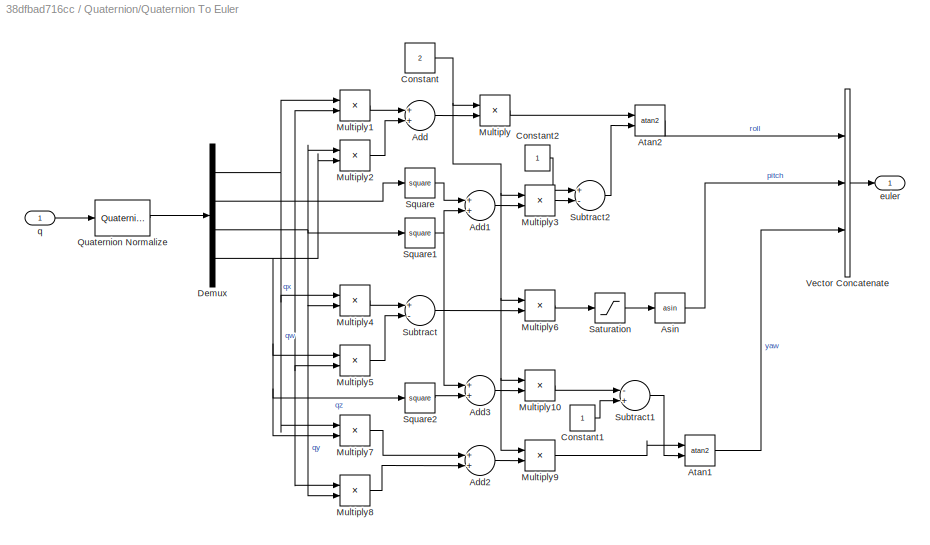
BLOCK [SubSystem] Quaternion/Quaternion To Euler
  Ports = [1, 1]
  RequestExecContextInheritance = off
BLOCK [Sum] Quaternion/Quaternion To Euler/Add
  InputSameDT = off
  OutDataTypeStr = Inherit: Inherit via internal rule
  Ports = [2, 1]
  SaturateOnIntegerOverflow = off
BLOCK [Sum] Quaternion/Quaternion To Euler/Add1
  InputSameDT = off
  OutDataTypeStr = Inherit: Inherit via internal rule
  Ports = [2, 1]
  SaturateOnIntegerOverflow = off
BLOCK [Sum] Quaternion/Quaternion To Euler/Add2
  InputSameDT = off
  OutDataTypeStr = Inherit: Inherit via internal rule
  Ports = [2, 1]
  SaturateOnIntegerOverflow = off
BLOCK [Sum] Quaternion/Quaternion To Euler/Add3
  InputSameDT = off
  OutDataTypeStr = Inherit: Inherit via internal rule
  Ports = [2, 1]
  SaturateOnIntegerOverflow = off
BLOCK [Trigonometry] Quaternion/Quaternion To Euler/Asin
  Operator = asin
  Ports = [1, 1]
BLOCK [Trigonometry] Quaternion/Quaternion To Euler/Atan1
  Operator = atan2
  Ports = [2, 1]
BLOCK [Trigonometry] Quaternion/Quaternion To Euler/Atan2
  Operator = atan2
  Ports = [2, 1]
BLOCK [Constant] Quaternion/Quaternion To Euler/Constant
  OutDataTypeStr = Inherit: Inherit via back propagation
  Value = 2
BLOCK [Constant] Quaternion/Quaternion To Euler/Constant1
  OutDataTypeStr = Inherit: Inherit via back propagation
BLOCK [Constant] Quaternion/Quaternion To Euler/Constant2
  OutDataTypeStr = Inherit: Inherit via back propagation
BLOCK [Demux] Quaternion/Quaternion To Euler/Demux
  DisplayOption = bar
  Ports = [1, 4]
BLOCK [Product] Quaternion/Quaternion To Euler/Multiply
  InputSameDT = off
  OutDataTypeStr = Inherit: Inherit via internal rule
  Ports = [2, 1]
  RndMeth = Floor
  SaturateOnIntegerOverflow = off
BLOCK [Product] Quaternion/Quaternion To Euler/Multiply1
  InputSameDT = off
  OutDataTypeStr = Inherit: Inherit via internal rule
  Ports = [2, 1]
  RndMeth = Floor
  SaturateOnIntegerOverflow = off
BLOCK [Product] Quaternion/Quaternion To Euler/Multiply10
  InputSameDT = off
  OutDataTypeStr = Inherit: Inherit via internal rule
  Ports = [2, 1]
  RndMeth = Floor
  SaturateOnIntegerOverflow = off
BLOCK [Product] Quaternion/Quaternion To Euler/Multiply2
  InputSameDT = off
  OutDataTypeStr = Inherit: Inherit via internal rule
  Ports = [2, 1]
  RndMeth = Floor
  SaturateOnIntegerOverflow = off
BLOCK [Product] Quaternion/Quaternion To Euler/Multiply3
  InputSameDT = off
  OutDataTypeStr = Inherit: Inherit via internal rule
  Ports = [2, 1]
  RndMeth = Floor
  SaturateOnIntegerOverflow = off
BLOCK [Product] Quaternion/Quaternion To Euler/Multiply4
  InputSameDT = off
  OutDataTypeStr = Inherit: Inherit via internal rule
  Ports = [2, 1]
  RndMeth = Floor
  SaturateOnIntegerOverflow = off
BLOCK [Product] Quaternion/Quaternion To Euler/Multiply5
  InputSameDT = off
  OutDataTypeStr = Inherit: Inherit via internal rule
  Ports = [2, 1]
  RndMeth = Floor
  SaturateOnIntegerOverflow = off
BLOCK [Product] Quaternion/Quaternion To Euler/Multiply6
  InputSameDT = off
  OutDataTypeStr = Inherit: Inherit via internal rule
  Ports = [2, 1]
  RndMeth = Floor
  SaturateOnIntegerOverflow = off
BLOCK [Product] Quaternion/Quaternion To Euler/Multiply7
  InputSameDT = off
  OutDataTypeStr = Inherit: Inherit via internal rule
  Ports = [2, 1]
  RndMeth = Floor
  SaturateOnIntegerOverflow = off
BLOCK [Product] Quaternion/Quaternion To Euler/Multiply8
  InputSameDT = off
  OutDataTypeStr = Inherit: Inherit via internal rule
  Ports = [2, 1]
  RndMeth = Floor
  SaturateOnIntegerOverflow = off
BLOCK [Product] Quaternion/Quaternion To Euler/Multiply9
  InputSameDT = off
  OutDataTypeStr = Inherit: Inherit via internal rule
  Ports = [2, 1]
  RndMeth = Floor
  SaturateOnIntegerOverflow = off
BLOCK [Reference] Quaternion/Quaternion To Euler/Quaternion Normalize  REF=$bdroot/Quaternion/Quaternion Normalize
  Ports = [1, 1]
  SourceBlock = $bdroot/Quaternion/Quaternion Normalize
  SourceType = Quaternion Modulus
BLOCK [Saturate] Quaternion/Quaternion To Euler/Saturation
  InputPortMap = u0
  LowerLimit = -1
  Ports = [1, 1]
  UpperLimit = 1
BLOCK [Math] Quaternion/Quaternion To Euler/Square
  Operator = square
  Ports = [1, 1]
BLOCK [Math] Quaternion/Quaternion To Euler/Square1
  Operator = square
  Ports = [1, 1]
BLOCK [Math] Quaternion/Quaternion To Euler/Square2
  Operator = square
  Ports = [1, 1]
BLOCK [Sum] Quaternion/Quaternion To Euler/Subtract
  InputSameDT = off
  Inputs = +-
  OutDataTypeStr = Inherit: Inherit via internal rule
  Ports = [2, 1]
  SaturateOnIntegerOverflow = off
BLOCK [Sum] Quaternion/Quaternion To Euler/Subtract1
  InputSameDT = off
  Inputs = -+
  OutDataTypeStr = Inherit: Inherit via internal rule
  Ports = [2, 1]
  SaturateOnIntegerOverflow = off
BLOCK [Sum] Quaternion/Quaternion To Euler/Subtract2
  InputSameDT = off
  Inputs = +-
  OutDataTypeStr = Inherit: Inherit via internal rule
  Ports = [2, 1]
  SaturateOnIntegerOverflow = off
BLOCK [Concatenate] Quaternion/Quaternion To Euler/Vector Concatenate
  NumInputs = 3
  Ports = [3, 1]
BLOCK [Outport] Quaternion/Quaternion To Euler/euler
  IconDisplay = Port number
BLOCK [Inport] Quaternion/Quaternion To Euler/q
  IconDisplay = Port number
BLOCK [SubSystem] Quaternion/Vectors To Quaternion
  Ports = [2, 1]
  RequestExecContextInheritance = off
BLOCK [Trigonometry] Quaternion/Vectors To Quaternion/Acos
  Operator = acos
  Ports = [1, 1]
BLOCK [Trigonometry] Quaternion/Vectors To Quaternion/Cos
  Operator = cos
  Ports = [1, 1]
BLOCK [Reference] Quaternion/Vectors To Quaternion/Cross Product  REF=$bdroot/Math/Cross Product
  Ports = [2, 1]
  SourceBlock = $bdroot/Math/Cross Product
  SourceType = Cross Product
BLOCK [Demux] Quaternion/Vectors To Quaternion/Demux
  DisplayOption = bar
  Outputs = 3
  Ports = [1, 3]
BLOCK [DotProduct] Quaternion/Vectors To Quaternion/Dot Product
  OutDataTypeStr = Inherit: Inherit via internal rule
BLOCK [Gain] Quaternion/Vectors To Quaternion/Gain
  Gain = 0.5
  ParamDataTypeStr = Inherit: Inherit via internal rule
  SaturateOnIntegerOverflow = off
BLOCK [Product] Quaternion/Vectors To Quaternion/Multiply1
  InputSameDT = off
  OutDataTypeStr = Inherit: Inherit via internal rule
  Ports = [2, 1]
  RndMeth = Floor
  SaturateOnIntegerOverflow = off
BLOCK [Product] Quaternion/Vectors To Quaternion/Multiply2
  InputSameDT = off
  OutDataTypeStr = Inherit: Inherit via internal rule
  Ports = [2, 1]
  RndMeth = Floor
  SaturateOnIntegerOverflow = off
BLOCK [Product] Quaternion/Vectors To Quaternion/Multiply3
  InputSameDT = off
  OutDataTypeStr = Inherit: Inherit via internal rule
  Ports = [2, 1]
  RndMeth = Floor
  SaturateOnIntegerOverflow = off
BLOCK [Mux] Quaternion/Vectors To Quaternion/Mux
  DisplayOption = bar
  Ports = [4, 1]
BLOCK [Reference] Quaternion/Vectors To Quaternion/Quaternion Normalize  REF=$bdroot/Quaternion/Quaternion Normalize
  Ports = [1, 1]
  SourceBlock = $bdroot/Quaternion/Quaternion Normalize
  SourceType = Quaternion Modulus
BLOCK [Trigonometry] Quaternion/Vectors To Quaternion/Sin
  Ports = [1, 1]
BLOCK [Reference] Quaternion/Vectors To Quaternion/Vector Normalize  REF=$bdroot/Math/Vector Normalize
  Ports = [1, 1]
  SourceBlock = $bdroot/Math/Vector Normalize
  SourceType = Vector Normalize
BLOCK [Reference] Quaternion/Vectors To Quaternion/Vector Normalize1  REF=$bdroot/Math/Vector Normalize
  Ports = [1, 1]
  SourceBlock = $bdroot/Math/Vector Normalize
  SourceType = Vector Normalize
BLOCK [Outport] Quaternion/Vectors To Quaternion/q
  IconDisplay = Port number
BLOCK [Inport] Quaternion/Vectors To Quaternion/vector_from
  IconDisplay = Port number
BLOCK [Inport] Quaternion/Vectors To Quaternion/vector_to
  IconDisplay = Port number
  Port = 2
BLOCK [SubSystem] Transformation
  Ports = []
  RequestExecContextInheritance = off
BLOCK [SubSystem] Transformation/LAT2FLAT Curve
  Ports = [1, 2]
  RequestExecContextInheritance = off
BLOCK [Constant] Transformation/LAT2FLAT Curve/Constant
BLOCK [Constant] Transformation/LAT2FLAT Curve/Constant1
BLOCK [Constant] Transformation/LAT2FLAT Curve/Constant2
  Value = 2
BLOCK [Trigonometry] Transformation/LAT2FLAT Curve/Cos
  Operator = cos
  Ports = [1, 1]
BLOCK [Product] Transformation/LAT2FLAT Curve/Divide
  InputSameDT = off
  Inputs = */
  OutDataTypeStr = Inherit: Inherit via internal rule
  Ports = [2, 1]
  RndMeth = Floor
  SaturateOnIntegerOverflow = off
BLOCK [Product] Transformation/LAT2FLAT Curve/Multiply
  InputSameDT = off
  OutDataTypeStr = Inherit: Inherit via internal rule
  Ports = [2, 1]
  RndMeth = Floor
  SaturateOnIntegerOverflow = off
BLOCK [Product] Transformation/LAT2FLAT Curve/Multiply1
  InputSameDT = off
  OutDataTypeStr = Inherit: Inherit via internal rule
  Ports = [2, 1]
  RndMeth = Floor
  SaturateOnIntegerOverflow = off
BLOCK [Product] Transformation/LAT2FLAT Curve/Multiply2
  InputSameDT = off
  OutDataTypeStr = Inherit: Inherit via internal rule
  Ports = [2, 1]
  RndMeth = Floor
  SaturateOnIntegerOverflow = off
BLOCK [Product] Transformation/LAT2FLAT Curve/Multiply3
  InputSameDT = off
  OutDataTypeStr = Inherit: Inherit via internal rule
  Ports = [2, 1]
  RndMeth = Floor
  SaturateOnIntegerOverflow = off
BLOCK [Product] Transformation/LAT2FLAT Curve/Product3
  InputSameDT = off
  Inputs = /**
  OutDataTypeStr = Inherit: Inherit via internal rule
  Ports = [3, 1]
  SaturateOnIntegerOverflow = off
BLOCK [Constant] Transformation/LAT2FLAT Curve/R
  Value = 6378137
BLOCK [Trigonometry] Transformation/LAT2FLAT Curve/Sin
  Ports = [1, 1]
BLOCK [Sqrt] Transformation/LAT2FLAT Curve/Sqrt
BLOCK [Math] Transformation/LAT2FLAT Curve/Square1
  Operator = square
  Ports = [1, 1]
BLOCK [Sum] Transformation/LAT2FLAT Curve/Sum
  IconShape = round
  InputSameDT = off
  Inputs = |+-
  OutDataTypeStr = Inherit: Inherit via internal rule
  Ports = [2, 1]
  SaturateOnIntegerOverflow = off
BLOCK [Sum] Transformation/LAT2FLAT Curve/Sum1
  IconShape = round
  InputSameDT = off
  Inputs = -+|
  OutDataTypeStr = Inherit: Inherit via internal rule
  Ports = [2, 1]
  SaturateOnIntegerOverflow = off
BLOCK [Sum] Transformation/LAT2FLAT Curve/Sum2
  IconShape = round
  InputSameDT = off
  Inputs = -+|
  OutDataTypeStr = Inherit: Inherit via internal rule
  Ports = [2, 1]
  SaturateOnIntegerOverflow = off
BLOCK [Sum] Transformation/LAT2FLAT Curve/Sum4
  IconShape = round
  InputSameDT = off
  Inputs = +-|
  OutDataTypeStr = Inherit: Inherit via internal rule
  Ports = [2, 1]
  SaturateOnIntegerOverflow = off
BLOCK [Outport] Transformation/LAT2FLAT Curve/dx_dlat
  IconDisplay = Port number
BLOCK [Outport] Transformation/LAT2FLAT Curve/dy_dlon
  IconDisplay = Port number
  Port = 2
BLOCK [Constant] Transformation/LAT2FLAT Curve/f
  Value = 1/298.257223563
BLOCK [Inport] Transformation/LAT2FLAT Curve/lat0
  IconDisplay = Port number
BLOCK [SubSystem] Transformation/LLA2FLAT
  Ports = [4, 1]
  RequestExecContextInheritance = off
BLOCK [Gain] Transformation/LLA2FLAT/Gain
  Gain = -1
  OutDataTypeStr = Inherit: Inherit via internal rule
  ParamDataTypeStr = Inherit: Inherit via internal rule
  SaturateOnIntegerOverflow = off
BLOCK [Reference] Transformation/LLA2FLAT/LAT2FLAT Curve  REF=$bdroot/Transformation/LAT2FLAT Curve
  Ports = [1, 2]
  SourceBlock = $bdroot/Transformation/LAT2FLAT Curve
  SourceType = Flat Earth Curvature
BLOCK [SubSystem] Transformation/LLA2FLAT/LatLon Wrap
  Ports = [1, 1]
  RequestExecContextInheritance = off
BLOCK [Constant] Transformation/LLA2FLAT/LatLon Wrap/Constant
  Value = 180
BLOCK [Constant] Transformation/LLA2FLAT/LatLon Wrap/Constant1
  Value = 0
BLOCK [Demux] Transformation/LLA2FLAT/LatLon Wrap/Demux
  DisplayOption = bar
  Outputs = 2
  Ports = [1, 2]
BLOCK [Inport] Transformation/LLA2FLAT/LatLon Wrap/LatLon
  IconDisplay = Port number
BLOCK [Outport] Transformation/LLA2FLAT/LatLon Wrap/LatLon_Wrap
  IconDisplay = Port number
BLOCK [Mux] Transformation/LLA2FLAT/LatLon Wrap/Mux
  DisplayOption = bar
  Inputs = 2
  Ports = [2, 1]
BLOCK [Sum] Transformation/LLA2FLAT/LatLon Wrap/Sum
  IconShape = round
  InputSameDT = off
  Inputs = |++
  OutDataTypeStr = Inherit: Inherit via internal rule
  Ports = [2, 1]
  SaturateOnIntegerOverflow = off
BLOCK [Switch] Transformation/LLA2FLAT/LatLon Wrap/Switch
  Criteria = u2 > Threshold
  InputSameDT = off
  SaturateOnIntegerOverflow = off
BLOCK [SubSystem] Transformation/LLA2FLAT/LatLon Wrap/Weap Angle 180
  Ports = [1, 1]
  RequestExecContextInheritance = off
BLOCK [Abs] Transformation/LLA2FLAT/LatLon Wrap/Weap Angle 180/Abs1
  SaturateOnIntegerOverflow = off
BLOCK [Bias] Transformation/LLA2FLAT/LatLon Wrap/Weap Angle 180/Bias2
  Bias = 180
  SaturateOnIntegerOverflow = off
BLOCK [Bias] Transformation/LLA2FLAT/LatLon Wrap/Weap Angle 180/Bias3
  Bias = -180
  SaturateOnIntegerOverflow = off
BLOCK [Reference] Transformation/LLA2FLAT/LatLon Wrap/Weap Angle 180/Compare To Constant1  REF=simulink/Logic and Bit
Operations/Compare
To Constant
  Ports = [1, 1]
  SourceBlock = simulink/Logic and Bit\nOperations/Compare\nTo Constant
  SourceProductBaseCode = SL
  SourceProductName = Simulink
  SourceType = Compare To Constant
BLOCK [Constant] Transformation/LLA2FLAT/LatLon Wrap/Weap Angle 180/Constant
  Value = 360
BLOCK [Math] Transformation/LLA2FLAT/LatLon Wrap/Weap Angle 180/Math Function
  Operator = mod
  Ports = [2, 1]
BLOCK [Switch] Transformation/LLA2FLAT/LatLon Wrap/Weap Angle 180/Switch1
  Criteria = u2 ~= 0
  InputSameDT = off
  SaturateOnIntegerOverflow = off
BLOCK [Inport] Transformation/LLA2FLAT/LatLon Wrap/Weap Angle 180/angle
  IconDisplay = Port number
BLOCK [Outport] Transformation/LLA2FLAT/LatLon Wrap/Weap Angle 180/angle_180
  IconDisplay = Port number
BLOCK [SubSystem] Transformation/LLA2FLAT/LatLon Wrap/Wrap Latitude
  Ports = [1, 2]
  RequestExecContextInheritance = off
BLOCK [Abs] Transformation/LLA2FLAT/LatLon Wrap/Wrap Latitude/Abs
  SaturateOnIntegerOverflow = off
BLOCK [Bias] Transformation/LLA2FLAT/LatLon Wrap/Wrap Latitude/Bias2
  Bias = -90
  SaturateOnIntegerOverflow = off
BLOCK [Bias] Transformation/LLA2FLAT/LatLon Wrap/Wrap Latitude/Bias3
  Bias = 90
  SaturateOnIntegerOverflow = off
BLOCK [Reference] Transformation/LLA2FLAT/LatLon Wrap/Wrap Latitude/Compare To Constant1  REF=simulink/Logic and Bit
Operations/Compare
To Constant
  Ports = [1, 1]
  SourceBlock = simulink/Logic and Bit\nOperations/Compare\nTo Constant
  SourceProductBaseCode = SL
  SourceProductName = Simulink
  SourceType = Compare To Constant
BLOCK [Gain] Transformation/LLA2FLAT/LatLon Wrap/Wrap Latitude/Gain1
  Gain = -1
  OutDataTypeStr = Inherit: Inherit via internal rule
  ParamDataTypeStr = Inherit: Inherit via internal rule
  SaturateOnIntegerOverflow = off
BLOCK [Product] Transformation/LLA2FLAT/LatLon Wrap/Wrap Latitude/Multiply
  InputSameDT = off
  OutDataTypeStr = Inherit: Inherit via internal rule
  Ports = [2, 1]
  RndMeth = Floor
  SaturateOnIntegerOverflow = off
BLOCK [Signum] Transformation/LLA2FLAT/LatLon Wrap/Wrap Latitude/Sign
BLOCK [Switch] Transformation/LLA2FLAT/LatLon Wrap/Wrap Latitude/Switch1
  Criteria = u2 ~= 0
  InputSameDT = off
  SaturateOnIntegerOverflow = off
BLOCK [SubSystem] Transformation/LLA2FLAT/LatLon Wrap/Wrap Latitude/Weap Angle 180
  Ports = [1, 1]
  RequestExecContextInheritance = off
BLOCK [Abs] Transformation/LLA2FLAT/LatLon Wrap/Wrap Latitude/Weap Angle 180/Abs1
  SaturateOnIntegerOverflow = off
BLOCK [Bias] Transformation/LLA2FLAT/LatLon Wrap/Wrap Latitude/Weap Angle 180/Bias2
  Bias = 180
  SaturateOnIntegerOverflow = off
BLOCK [Bias] Transformation/LLA2FLAT/LatLon Wrap/Wrap Latitude/Weap Angle 180/Bias3
  Bias = -180
  SaturateOnIntegerOverflow = off
BLOCK [Reference] Transformation/LLA2FLAT/LatLon Wrap/Wrap Latitude/Weap Angle 180/Compare To Constant1  REF=simulink/Logic and Bit
Operations/Compare
To Constant
  Ports = [1, 1]
  SourceBlock = simulink/Logic and Bit\nOperations/Compare\nTo Constant
  SourceProductBaseCode = SL
  SourceProductName = Simulink
  SourceType = Compare To Constant
BLOCK [Constant] Transformation/LLA2FLAT/LatLon Wrap/Wrap Latitude/Weap Angle 180/Constant
  Value = 360
BLOCK [Math] Transformation/LLA2FLAT/LatLon Wrap/Wrap Latitude/Weap Angle 180/Math Function
  Operator = mod
  Ports = [2, 1]
BLOCK [Switch] Transformation/LLA2FLAT/LatLon Wrap/Wrap Latitude/Weap Angle 180/Switch1
  Criteria = u2 ~= 0
  InputSameDT = off
  SaturateOnIntegerOverflow = off
BLOCK [Inport] Transformation/LLA2FLAT/LatLon Wrap/Wrap Latitude/Weap Angle 180/angle
  IconDisplay = Port number
BLOCK [Outport] Transformation/LLA2FLAT/LatLon Wrap/Wrap Latitude/Weap Angle 180/angle_180
  IconDisplay = Port number
BLOCK [Inport] Transformation/LLA2FLAT/LatLon Wrap/Wrap Latitude/lat_deg
  IconDisplay = Port number
BLOCK [Outport] Transformation/LLA2FLAT/LatLon Wrap/Wrap Latitude/lat_wrap
  IconDisplay = Port number
BLOCK [Outport] Transformation/LLA2FLAT/LatLon Wrap/Wrap Latitude/wrap
  IconDisplay = Port number
  Port = 2
BLOCK [Product] Transformation/LLA2FLAT/Multiply
  InputSameDT = off
  OutDataTypeStr = Inherit: Inherit via internal rule
  Ports = [2, 1]
  RndMeth = Floor
  SaturateOnIntegerOverflow = off
BLOCK [Mux] Transformation/LLA2FLAT/Mux
  DisplayOption = bar
  Inputs = 2
  Ports = [2, 1]
BLOCK [Mux] Transformation/LLA2FLAT/Mux1
  DisplayOption = bar
  Inputs = 3
  Ports = [3, 1]
BLOCK [SubSystem] Transformation/LLA2FLAT/Rotation
  Ports = [2, 2]
  RequestExecContextInheritance = off
BLOCK [Demux] Transformation/LLA2FLAT/Rotation/Demux
  DisplayOption = bar
  Outputs = 2
  Ports = [1, 2]
BLOCK [Product] Transformation/LLA2FLAT/Rotation/Multiply1
  InputSameDT = off
  OutDataTypeStr = Inherit: Inherit via internal rule
  Ports = [2, 1]
  RndMeth = Floor
  SaturateOnIntegerOverflow = off
BLOCK [Product] Transformation/LLA2FLAT/Rotation/Multiply2
  InputSameDT = off
  OutDataTypeStr = Inherit: Inherit via internal rule
  Ports = [2, 1]
  RndMeth = Floor
  SaturateOnIntegerOverflow = off
BLOCK [Product] Transformation/LLA2FLAT/Rotation/Multiply3
  InputSameDT = off
  OutDataTypeStr = Inherit: Inherit via internal rule
  Ports = [2, 1]
  RndMeth = Floor
  SaturateOnIntegerOverflow = off
BLOCK [Product] Transformation/LLA2FLAT/Rotation/Multiply4
  InputSameDT = off
  OutDataTypeStr = Inherit: Inherit via internal rule
  Ports = [2, 1]
  RndMeth = Floor
  SaturateOnIntegerOverflow = off
BLOCK [Trigonometry] Transformation/LLA2FLAT/Rotation/SinCos
  Operator = sincos
  Ports = [1, 2]
BLOCK [Sum] Transformation/LLA2FLAT/Rotation/Sum2
  IconShape = round
  InputSameDT = off
  Inputs = |++
  OutDataTypeStr = Inherit: Inherit via internal rule
  Ports = [2, 1]
  SaturateOnIntegerOverflow = off
BLOCK [Sum] Transformation/LLA2FLAT/Rotation/Sum3
  IconShape = round
  InputSameDT = off
  Inputs = |-+
  OutDataTypeStr = Inherit: Inherit via internal rule
  Ports = [2, 1]
  SaturateOnIntegerOverflow = off
BLOCK [Inport] Transformation/LLA2FLAT/Rotation/latlon_rad
  IconDisplay = Port number
BLOCK [Inport] Transformation/LLA2FLAT/Rotation/psio_rad
  IconDisplay = Port number
  Port = 2
BLOCK [Outport] Transformation/LLA2FLAT/Rotation/x_m
  IconDisplay = Port number
BLOCK [Outport] Transformation/LLA2FLAT/Rotation/y_m
  IconDisplay = Port number
  Port = 2
BLOCK [Selector] Transformation/LLA2FLAT/Selector
  IndexOptions = Index vector (dialog)
  Indices = 1
  InputPortWidth = 2
  OutputSizes = 1
  Ports = [1, 1]
BLOCK [Selector] Transformation/LLA2FLAT/Selector1
  IndexOptions = Index vector (dialog)
  Indices = [1 2]
  InputPortWidth = 3
  OutputSizes = 1
  Ports = [1, 1]
BLOCK [Selector] Transformation/LLA2FLAT/Selector2
  IndexOptions = Index vector (dialog)
  Indices = 3
  InputPortWidth = 3
  OutputSizes = 1
  Ports = [1, 1]
BLOCK [Sum] Transformation/LLA2FLAT/Sum
  IconShape = round
  InputSameDT = off
  Inputs = |+-
  OutDataTypeStr = Inherit: Inherit via internal rule
  Ports = [2, 1]
  SaturateOnIntegerOverflow = off
BLOCK [Sum] Transformation/LLA2FLAT/Sum1
  IconShape = round
  InputSameDT = off
  Inputs = ++|
  OutDataTypeStr = Inherit: Inherit via internal rule
  Ports = [2, 1]
  SaturateOnIntegerOverflow = off
BLOCK [Gain] Transformation/LLA2FLAT/deg2rad
  Gain = pi/180
  OutDataTypeStr = Inherit: Inherit via internal rule
  ParamDataTypeStr = Inherit: Inherit via internal rule
  SaturateOnIntegerOverflow = off
BLOCK [Gain] Transformation/LLA2FLAT/deg2rad1
  Gain = pi/180
  OutDataTypeStr = Inherit: Inherit via internal rule
  ParamDataTypeStr = Inherit: Inherit via internal rule
  SaturateOnIntegerOverflow = off
BLOCK [Gain] Transformation/LLA2FLAT/deg2rad2
  Gain = pi/180
  OutDataTypeStr = Inherit: Inherit via internal rule
  ParamDataTypeStr = Inherit: Inherit via internal rule
  SaturateOnIntegerOverflow = off
BLOCK [Inport] Transformation/LLA2FLAT/href
  IconDisplay = Port number
  Port = 3
BLOCK [Inport] Transformation/LLA2FLAT/lla
  IconDisplay = Port number
BLOCK [Inport] Transformation/LLA2FLAT/llo
  IconDisplay = Port number
  Port = 2
BLOCK [Outport] Transformation/LLA2FLAT/pos
  IconDisplay = Port number
BLOCK [Inport] Transformation/LLA2FLAT/psio
  IconDisplay = Port number
  OutDataTypeStr = double
  Port = 4
  PortDimensions = 1
  SignalType = real
  Unit = deg
  VarSizeSig = No
BLOCK [SubSystem] Transformation/Psi To DCM
  Ports = [1, 1]
  RequestExecContextInheritance = off
BLOCK [Gain] Transformation/Psi To DCM/Gain
  Gain = -1
  OutDataTypeStr = Inherit: Inherit via internal rule
  ParamDataTypeStr = Inherit: Inherit via internal rule
  SaturateOnIntegerOverflow = off
BLOCK [Outport] Transformation/Psi To DCM/M_CO
  IconDisplay = Port number
BLOCK [Reference] Transformation/Psi To DCM/Rotation Matrix Z  REF=$bdroot/Transformation/Rotation Matrix Z
  Ports = [1, 1]
  SourceBlock = $bdroot/Transformation/Rotation Matrix Z
  SourceType = Rotation Matrix Z-Axis
BLOCK [Inport] Transformation/Psi To DCM/psi
  IconDisplay = Port number
  Unit = rad
BLOCK [SubSystem] Transformation/Rotation Matrix X
  Ports = [1, 1]
  RequestExecContextInheritance = off
BLOCK [Constant] Transformation/Rotation Matrix X/Constant
  OutDataTypeStr = Inherit: Inherit via back propagation
  Value = 0
BLOCK [Constant] Transformation/Rotation Matrix X/Constant1
  OutDataTypeStr = Inherit: Inherit via back propagation
  Value = 0
BLOCK [Constant] Transformation/Rotation Matrix X/Constant2
  OutDataTypeStr = Inherit: Inherit via back propagation
BLOCK [Constant] Transformation/Rotation Matrix X/Constant3
  OutDataTypeStr = Inherit: Inherit via back propagation
  Value = 0
BLOCK [Constant] Transformation/Rotation Matrix X/Constant4
  OutDataTypeStr = Inherit: Inherit via back propagation
  Value = 0
BLOCK [Outport] Transformation/Rotation Matrix X/DCMx
  IconDisplay = Port number
BLOCK [Gain] Transformation/Rotation Matrix X/Gain
  Gain = -1
  OutDataTypeStr = Inherit: Inherit via internal rule
  ParamDataTypeStr = Inherit: Inherit via internal rule
  SaturateOnIntegerOverflow = off
BLOCK [Trigonometry] Transformation/Rotation Matrix X/Trigonometric Function
  Ports = [1, 1]
BLOCK [Trigonometry] Transformation/Rotation Matrix X/Trigonometric Function1
  Operator = cos
  Ports = [1, 1]
BLOCK [Trigonometry] Transformation/Rotation Matrix X/Trigonometric Function2
  Ports = [1, 1]
BLOCK [Trigonometry] Transformation/Rotation Matrix X/Trigonometric Function3
  Operator = cos
  Ports = [1, 1]
BLOCK [Concatenate] Transformation/Rotation Matrix X/Vector Concatenate
  ConcatenateDimension = 2
  Mode = Multidimensional array
  NumInputs = 3
  Ports = [3, 1]
BLOCK [Concatenate] Transformation/Rotation Matrix X/Vector Concatenate1
  Mode = Multidimensional array
  NumInputs = 3
  Ports = [3, 1]
BLOCK [Concatenate] Transformation/Rotation Matrix X/Vector Concatenate2
  Mode = Multidimensional array
  NumInputs = 3
  Ports = [3, 1]
BLOCK [Concatenate] Transformation/Rotation Matrix X/Vector Concatenate3
  Mode = Multidimensional array
  NumInputs = 3
  Ports = [3, 1]
BLOCK [Inport] Transformation/Rotation Matrix X/phi
  IconDisplay = Port number
  Unit = rad
BLOCK [SubSystem] Transformation/Rotation Matrix Y
  Ports = [1, 1]
  RequestExecContextInheritance = off
BLOCK [Constant] Transformation/Rotation Matrix Y/Constant
  OutDataTypeStr = Inherit: Inherit via back propagation
  Value = 0
BLOCK [Constant] Transformation/Rotation Matrix Y/Constant1
  OutDataTypeStr = Inherit: Inherit via back propagation
BLOCK [Constant] Transformation/Rotation Matrix Y/Constant2
  OutDataTypeStr = Inherit: Inherit via back propagation
  Value = 0
BLOCK [Constant] Transformation/Rotation Matrix Y/Constant3
  OutDataTypeStr = Inherit: Inherit via back propagation
  Value = 0
BLOCK [Constant] Transformation/Rotation Matrix Y/Constant4
  OutDataTypeStr = Inherit: Inherit via back propagation
  Value = 0
BLOCK [Outport] Transformation/Rotation Matrix Y/DCMy
  IconDisplay = Port number
BLOCK [Gain] Transformation/Rotation Matrix Y/Gain
  Gain = -1
  OutDataTypeStr = Inherit: Inherit via internal rule
  ParamDataTypeStr = Inherit: Inherit via internal rule
  SaturateOnIntegerOverflow = off
BLOCK [Trigonometry] Transformation/Rotation Matrix Y/Trigonometric Function
  Ports = [1, 1]
BLOCK [Trigonometry] Transformation/Rotation Matrix Y/Trigonometric Function1
  Operator = cos
  Ports = [1, 1]
BLOCK [Trigonometry] Transformation/Rotation Matrix Y/Trigonometric Function2
  Ports = [1, 1]
BLOCK [Trigonometry] Transformation/Rotation Matrix Y/Trigonometric Function3
  Operator = cos
  Ports = [1, 1]
BLOCK [Concatenate] Transformation/Rotation Matrix Y/Vector Concatenate
  ConcatenateDimension = 2
  Mode = Multidimensional array
  NumInputs = 3
  Ports = [3, 1]
BLOCK [Concatenate] Transformation/Rotation Matrix Y/Vector Concatenate1
  Mode = Multidimensional array
  NumInputs = 3
  Ports = [3, 1]
BLOCK [Concatenate] Transformation/Rotation Matrix Y/Vector Concatenate2
  Mode = Multidimensional array
  NumInputs = 3
  Ports = [3, 1]
BLOCK [Concatenate] Transformation/Rotation Matrix Y/Vector Concatenate3
  Mode = Multidimensional array
  NumInputs = 3
  Ports = [3, 1]
BLOCK [Inport] Transformation/Rotation Matrix Y/theta
  IconDisplay = Port number
  Unit = rad
BLOCK [SubSystem] Transformation/Rotation Matrix Z
  Ports = [1, 1]
  RequestExecContextInheritance = off
BLOCK [Constant] Transformation/Rotation Matrix Z/Constant
  OutDataTypeStr = Inherit: Inherit via back propagation
BLOCK [Constant] Transformation/Rotation Matrix Z/Constant1
  OutDataTypeStr = Inherit: Inherit via back propagation
  Value = 0
BLOCK [Constant] Transformation/Rotation Matrix Z/Constant2
  OutDataTypeStr = Inherit: Inherit via back propagation
  Value = 0
BLOCK [Constant] Transformation/Rotation Matrix Z/Constant3
  OutDataTypeStr = Inherit: Inherit via back propagation
  Value = 0
BLOCK [Constant] Transformation/Rotation Matrix Z/Constant4
  OutDataTypeStr = Inherit: Inherit via back propagation
  Value = 0
BLOCK [Outport] Transformation/Rotation Matrix Z/DCMz
  IconDisplay = Port number
BLOCK [Gain] Transformation/Rotation Matrix Z/Gain
  Gain = -1
  OutDataTypeStr = Inherit: Inherit via internal rule
  ParamDataTypeStr = Inherit: Inherit via internal rule
  SaturateOnIntegerOverflow = off
BLOCK [Trigonometry] Transformation/Rotation Matrix Z/Trigonometric Function
  Ports = [1, 1]
BLOCK [Trigonometry] Transformation/Rotation Matrix Z/Trigonometric Function1
  Operator = cos
  Ports = [1, 1]
BLOCK [Trigonometry] Transformation/Rotation Matrix Z/Trigonometric Function2
  Ports = [1, 1]
BLOCK [Trigonometry] Transformation/Rotation Matrix Z/Trigonometric Function3
  Operator = cos
  Ports = [1, 1]
BLOCK [Concatenate] Transformation/Rotation Matrix Z/Vector Concatenate
  ConcatenateDimension = 2
  Mode = Multidimensional array
  NumInputs = 3
  Ports = [3, 1]
BLOCK [Concatenate] Transformation/Rotation Matrix Z/Vector Concatenate1
  Mode = Multidimensional array
  NumInputs = 3
  Ports = [3, 1]
BLOCK [Concatenate] Transformation/Rotation Matrix Z/Vector Concatenate2
  Mode = Multidimensional array
  NumInputs = 3
  Ports = [3, 1]
BLOCK [Concatenate] Transformation/Rotation Matrix Z/Vector Concatenate3
  Mode = Multidimensional array
  NumInputs = 3
  Ports = [3, 1]
BLOCK [Inport] Transformation/Rotation Matrix Z/psi
  IconDisplay = Port number
  Unit = rad
ANNOTATION Filter/DT Filter: T = 1/(2*pi*fc)
ANNOTATION Filter/First Order LPF: T = 1/(2*pi*fc)
ANNOTATION Transformation/LAT2FLAT Curve: In theory, atan(1/Rm) and atan(1/(Rn*cosLat)).Since Rm and Rn is big (except that latitude approximate 90deg), so divide of them is small Hence, atan(a)=a if a is small
LINE Filter/DT Filter/Discrete-Time Integrator1:1 -> Filter/DT Filter/Sum5:1
LINE Filter/DT Filter/Gain1:1 -> Filter/DT Filter/Switch:1
NET Filter/DT Filter/Gain:1 -> Filter/DT Filter/Discrete-Time Integrator1:1, Filter/DT Filter/Gain1:1, Filter/DT Filter/Switch:3
LINE Filter/DT Filter/Sum5:1 -> Filter/DT Filter/Gain:1
LINE Filter/DT Filter/Switch:1 -> Filter/DT Filter/y:1
NET Filter/DT Filter/reset:1 -> Filter/DT Filter/Discrete-Time Integrator1:2, Filter/DT Filter/Switch:2
LINE Filter/DT Filter/u:1 -> Filter/DT Filter/Sum5:2
LINE Filter/First Order HPF/First Order LPF:1 -> Filter/First Order HPF/Subtract:2
LINE Filter/First Order HPF/Subtract:1 -> Filter/First Order HPF/y:1
NET Filter/First Order HPF/u:1 -> Filter/First Order HPF/First Order LPF:1, Filter/First Order HPF/Subtract:1
LINE Filter/First Order LPF/Data Type Conversion:1 -> Filter/First Order LPF/Discrete-Time Integrator5:2
NET Filter/First Order LPF/Discrete-Time Integrator5:1 -> Filter/First Order LPF/Sum5:1, Filter/First Order LPF/y:1
LINE Filter/First Order LPF/Gain:1 -> Filter/First Order LPF/Discrete-Time Integrator5:1
LINE Filter/First Order LPF/Sum5:1 -> Filter/First Order LPF/Gain:1
NET Filter/First Order LPF/u:1 -> Filter/First Order LPF/Data Type Conversion:1, Filter/First Order LPF/Sum5:2
NET Filter/Second Order LPF/Constant:1 -> Filter/Second Order LPF/Discrete-Time Integrator1:2, Filter/Second Order LPF/Discrete-Time Integrator:2
LINE Filter/Second Order LPF/Data Type Conversion:1 -> Filter/Second Order LPF/Discrete-Time Integrator1:3
NET Filter/Second Order LPF/Discrete-Time Integrator1:1 -> Filter/Second Order LPF/Sum:1, Filter/Second Order LPF/y:1
NET Filter/Second Order LPF/Discrete-Time Integrator:1 -> Filter/Second Order LPF/Discrete-Time Integrator1:1, Filter/Second Order LPF/Gain1:1
LINE Filter/Second Order LPF/Gain1:1 -> Filter/Second Order LPF/Sum2:1
LINE Filter/Second Order LPF/Gain:1 -> Filter/Second Order LPF/Sum2:2
LINE Filter/Second Order LPF/Sum2:1 -> Filter/Second Order LPF/Discrete-Time Integrator:1
LINE Filter/Second Order LPF/Sum:1 -> Filter/Second Order LPF/Gain:1
NET Filter/Second Order LPF/u:1 -> Filter/Second Order LPF/Data Type Conversion:1, Filter/Second Order LPF/Sum:2
LINE Math/2D Cross Product/Demux1:1 -> Math/2D Cross Product/Multiply1:2
LINE Math/2D Cross Product/Demux1:2 -> Math/2D Cross Product/Multiply:2
LINE Math/2D Cross Product/Demux:1 -> Math/2D Cross Product/Multiply:1
LINE Math/2D Cross Product/Demux:2 -> Math/2D Cross Product/Multiply1:1
LINE Math/2D Cross Product/Multiply1:1 -> Math/2D Cross Product/Subtract:2
LINE Math/2D Cross Product/Multiply:1 -> Math/2D Cross Product/Subtract:1
LINE Math/2D Cross Product/Subtract:1 -> Math/2D Cross Product/y:1
LINE Math/2D Cross Product/a:1 -> Math/2D Cross Product/Demux:1
LINE Math/2D Cross Product/b:1 -> Math/2D Cross Product/Demux1:1
LINE Math/Cross Product/Subsystem/Demux1:1 -> Math/Cross Product/Subsystem/Multiply1:2
LINE Math/Cross Product/Subsystem/Demux1:2 -> Math/Cross Product/Subsystem/Multiply2:2
LINE Math/Cross Product/Subsystem/Demux1:3 -> Math/Cross Product/Subsystem/Multiply:2
LINE Math/Cross Product/Subsystem/Demux:1 -> Math/Cross Product/Subsystem/Multiply2:1
LINE Math/Cross Product/Subsystem/Demux:2 -> Math/Cross Product/Subsystem/Multiply:1
LINE Math/Cross Product/Subsystem/Demux:3 -> Math/Cross Product/Subsystem/Multiply1:1
LINE Math/Cross Product/Subsystem/Matrix Concatenate:1 -> Math/Cross Product/Subsystem/Out1:1
LINE Math/Cross Product/Subsystem/Multiply1:1 -> Math/Cross Product/Subsystem/Matrix Concatenate:2
LINE Math/Cross Product/Subsystem/Multiply2:1 -> Math/Cross Product/Subsystem/Matrix Concatenate:3
LINE Math/Cross Product/Subsystem/Multiply:1 -> Math/Cross Product/Subsystem/Matrix Concatenate:1
LINE Math/Cross Product/Subsystem/a:1 -> Math/Cross Product/Subsystem/Demux:1
LINE Math/Cross Product/Subsystem/b:1 -> Math/Cross Product/Subsystem/Demux1:1
LINE Math/Cross Product/Subsystem1/Demux1:1 -> Math/Cross Product/Subsystem1/Multiply5:2
LINE Math/Cross Product/Subsystem1/Demux1:2 -> Math/Cross Product/Subsystem1/Multiply3:2
LINE Math/Cross Product/Subsystem1/Demux1:3 -> Math/Cross Product/Subsystem1/Multiply4:2
LINE Math/Cross Product/Subsystem1/Demux:1 -> Math/Cross Product/Subsystem1/Multiply4:1
LINE Math/Cross Product/Subsystem1/Demux:2 -> Math/Cross Product/Subsystem1/Multiply5:1
LINE Math/Cross Product/Subsystem1/Demux:3 -> Math/Cross Product/Subsystem1/Multiply3:1
LINE Math/Cross Product/Subsystem1/Matrix Concatenate1:1 -> Math/Cross Product/Subsystem1/Out1:1
LINE Math/Cross Product/Subsystem1/Multiply3:1 -> Math/Cross Product/Subsystem1/Matrix Concatenate1:1
LINE Math/Cross Product/Subsystem1/Multiply4:1 -> Math/Cross Product/Subsystem1/Matrix Concatenate1:2
LINE Math/Cross Product/Subsystem1/Multiply5:1 -> Math/Cross Product/Subsystem1/Matrix Concatenate1:3
LINE Math/Cross Product/Subsystem1/a:1 -> Math/Cross Product/Subsystem1/Demux:1
LINE Math/Cross Product/Subsystem1/b:1 -> Math/Cross Product/Subsystem1/Demux1:1
LINE Math/Cross Product/Subsystem1:1 -> Math/Cross Product/Sum:2
LINE Math/Cross Product/Subsystem:1 -> Math/Cross Product/Sum:1
LINE Math/Cross Product/Sum:1 -> Math/Cross Product/y:1
NET Math/Cross Product/a:1 -> Math/Cross Product/Subsystem1:1, Math/Cross Product/Subsystem:1
NET Math/Cross Product/b:1 -> Math/Cross Product/Subsystem1:2, Math/Cross Product/Subsystem:2
LINE Math/Euler To Angle Rate/Add1:1 -> Math/Euler To Angle Rate/Mux:2
LINE Math/Euler To Angle Rate/Add2:1 -> Math/Euler To Angle Rate/Mux:3
LINE Math/Euler To Angle Rate/Add:1 -> Math/Euler To Angle Rate/Mux:1
NET Math/Euler To Angle Rate/Cos1:1 -> Math/Euler To Angle Rate/Multiply3:2, Math/Euler To Angle Rate/Multiply5:2
NET Math/Euler To Angle Rate/Cos:1 -> Math/Euler To Angle Rate/Multiply1:1, Math/Euler To Angle Rate/Multiply5:1
LINE Math/Euler To Angle Rate/Demux1:1 -> Math/Euler To Angle Rate/Add:2
NET Math/Euler To Angle Rate/Demux1:2 -> Math/Euler To Angle Rate/Multiply1:2, Math/Euler To Angle Rate/Multiply4:2
NET Math/Euler To Angle Rate/Demux1:3 -> Math/Euler To Angle Rate/Multiply3:3, Math/Euler To Angle Rate/Multiply5:3, Math/Euler To Angle Rate/Multiply:2
NET Math/Euler To Angle Rate/Demux:1 -> Math/Euler To Angle Rate/Cos:1, Math/Euler To Angle Rate/Sin:1
NET Math/Euler To Angle Rate/Demux:2 -> Math/Euler To Angle Rate/Cos1:1, Math/Euler To Angle Rate/Sin1:1
LINE Math/Euler To Angle Rate/Multiply1:1 -> Math/Euler To Angle Rate/Add1:2
LINE Math/Euler To Angle Rate/Multiply3:1 -> Math/Euler To Angle Rate/Add1:1
LINE Math/Euler To Angle Rate/Multiply4:1 -> Math/Euler To Angle Rate/Add2:2
LINE Math/Euler To Angle Rate/Multiply5:1 -> Math/Euler To Angle Rate/Add2:1
LINE Math/Euler To Angle Rate/Multiply:1 -> Math/Euler To Angle Rate/Add:1
LINE Math/Euler To Angle Rate/Mux:1 -> Math/Euler To Angle Rate/angle_rate:1
LINE Math/Euler To Angle Rate/Sin1:1 -> Math/Euler To Angle Rate/Multiply:1
NET Math/Euler To Angle Rate/Sin:1 -> Math/Euler To Angle Rate/Multiply3:1, Math/Euler To Angle Rate/Multiply4:1
LINE Math/Euler To Angle Rate/euler_rate:1 -> Math/Euler To Angle Rate/Demux1:1
LINE Math/Euler To Angle Rate/roll_pitch:1 -> Math/Euler To Angle Rate/Demux:1
LINE Math/Vector Modulus/Sqrt:1 -> Math/Vector Modulus/y:1
LINE Math/Vector Modulus/Square:1 -> Math/Vector Modulus/Sum of Elements:1
LINE Math/Vector Modulus/Sum of Elements:1 -> Math/Vector Modulus/Sqrt:1
LINE Math/Vector Modulus/x:1 -> Math/Vector Modulus/Square:1
NET Math/Vector Normalize/Constant:1 -> Math/Vector Normalize/Data Type Duplicate:1, Math/Vector Normalize/Mux1:2
LINE Math/Vector Normalize/Demux:1 -> Math/Vector Normalize/Divide:1
LINE Math/Vector Normalize/Demux:2 -> Math/Vector Normalize/Divide:2
LINE Math/Vector Normalize/Divide:1 -> Math/Vector Normalize/y:1
LINE Math/Vector Normalize/Ground:1 -> Math/Vector Normalize/Product:2
NET Math/Vector Normalize/Math Function1:1 -> Math/Vector Normalize/Mux:2, Math/Vector Normalize/Switch:2
LINE Math/Vector Normalize/Math Function:1 -> Math/Vector Normalize/Sum of Elements:1
LINE Math/Vector Normalize/Mux1:1 -> Math/Vector Normalize/Switch:3
LINE Math/Vector Normalize/Mux:1 -> Math/Vector Normalize/Switch:1
LINE Math/Vector Normalize/Product:1 -> Math/Vector Normalize/Mux1:1
LINE Math/Vector Normalize/Sum of Elements:1 -> Math/Vector Normalize/Math Function1:1
LINE Math/Vector Normalize/Switch:1 -> Math/Vector Normalize/Demux:1
NET Math/Vector Normalize/x:1 -> Math/Vector Normalize/Data Type Duplicate:2, Math/Vector Normalize/Math Function:1, Math/Vector Normalize/Mux:1, Math/Vector Normalize/Product:1
LINE Quaternion/Axis-angle To Quaternion/Cos:1 -> Quaternion/Axis-angle To Quaternion/Mux:1
LINE Quaternion/Axis-angle To Quaternion/Demux:1 -> Quaternion/Axis-angle To Quaternion/Multiply:2
LINE Quaternion/Axis-angle To Quaternion/Demux:2 -> Quaternion/Axis-angle To Quaternion/Multiply1:2
LINE Quaternion/Axis-angle To Quaternion/Demux:3 -> Quaternion/Axis-angle To Quaternion/Multiply2:2
NET Quaternion/Axis-angle To Quaternion/Gain:1 -> Quaternion/Axis-angle To Quaternion/Cos:1, Quaternion/Axis-angle To Quaternion/Sin:1
LINE Quaternion/Axis-angle To Quaternion/Multiply1:1 -> Quaternion/Axis-angle To Quaternion/Mux:3
LINE Quaternion/Axis-angle To Quaternion/Multiply2:1 -> Quaternion/Axis-angle To Quaternion/Mux:4
LINE Quaternion/Axis-angle To Quaternion/Multiply:1 -> Quaternion/Axis-angle To Quaternion/Mux:2
LINE Quaternion/Axis-angle To Quaternion/Mux:1 -> Quaternion/Axis-angle To Quaternion/Quaternion Normalize:1
LINE Quaternion/Axis-angle To Quaternion/Quaternion Normalize:1 -> Quaternion/Axis-angle To Quaternion/q:1
NET Quaternion/Axis-angle To Quaternion/Sin:1 -> Quaternion/Axis-angle To Quaternion/Multiply1:1, Quaternion/Axis-angle To Quaternion/Multiply2:1, Quaternion/Axis-angle To Quaternion/Multiply:1
LINE Quaternion/Axis-angle To Quaternion/angle:1 -> Quaternion/Axis-angle To Quaternion/Gain:1
LINE Quaternion/Axis-angle To Quaternion/axis:1 -> Quaternion/Axis-angle To Quaternion/Demux:1
LINE Quaternion/DCM To Quaternion/DCM Trace/Add:1 -> Quaternion/DCM To Quaternion/DCM Trace/Trace:1
LINE Quaternion/DCM To Quaternion/DCM Trace/DCM:1 -> Quaternion/DCM To Quaternion/DCM Trace/Selector:1
LINE Quaternion/DCM To Quaternion/DCM Trace/Selector:1 -> Quaternion/DCM To Quaternion/DCM Trace/Add:1
NET Quaternion/DCM To Quaternion/DCM Trace:1 -> Quaternion/DCM To Quaternion/If:1, Quaternion/DCM To Quaternion/Positive Trace:1
LINE Quaternion/DCM To Quaternion/If:1 -> Quaternion/DCM To Quaternion/Positive Trace:ifaction
LINE Quaternion/DCM To Quaternion/If:2 -> Quaternion/DCM To Quaternion/Negative Trace:ifaction
LINE Quaternion/DCM To Quaternion/M_BO:1 -> Quaternion/DCM To Quaternion/Reshape:1
LINE Quaternion/DCM To Quaternion/Merge:1 -> Quaternion/DCM To Quaternion/q:1
NET Quaternion/DCM To Quaternion/Negative Trace/DCM:1 -> Quaternion/DCM To Quaternion/Negative Trace/Maximum Value at DCM(1,1):1, Quaternion/DCM To Quaternion/Negative Trace/Maximum Value at DCM(2,2):1, Quaternion/DCM To Quaternion/Negative Trace/Maximum Value at DCM(3,3):1, Quaternion/DCM To Quaternion/Negative Trace/diag(DCM):1
LINE Quaternion/DCM To Quaternion/Negative Trace/Find Maximum Diagonal Value:1 -> Quaternion/DCM To Quaternion/Negative Trace/Maximum Value at DCM(2,2):ifaction
LINE Quaternion/DCM To Quaternion/Negative Trace/Find Maximum Diagonal Value:2 -> Quaternion/DCM To Quaternion/Negative Trace/Maximum Value at DCM(3,3):ifaction
LINE Quaternion/DCM To Quaternion/Negative Trace/Find Maximum Diagonal Value:3 -> Quaternion/DCM To Quaternion/Negative Trace/Maximum Value at DCM(1,1):ifaction
NET Quaternion/DCM To Quaternion/Negative Trace/Maximum Value at DCM(1,1)/DCM:1 -> Quaternion/DCM To Quaternion/Negative Trace/Maximum Value at DCM(1,1)/cos(phi)sin(theta)cos(psi) + sin(phi)sin(psi) -sin(theta):1, Quaternion/DCM To Quaternion/Negative Trace/Maximum Value at DCM(1,1)/cos(theta)sin(phi) - (cos(phi)sin(theta)sin(psi) - sin(phi)cos(psi)):1, Quaternion/DCM To Quaternion/Negative Trace/Maximum Value at DCM(1,1)/cos(theta)sin(psi) + (sin(phi)sin(theta)cos(psi) - cos(phi)sin(psi)):1, Quaternion/DCM To Quaternion/Negative Trace/Maximum Value at DCM(1,1)/u(1) -(u(5)+u(9)) +1:1
LINE Quaternion/DCM To Quaternion/Negative Trace/Maximum Value at DCM(1,1)/Demux:1 -> Quaternion/DCM To Quaternion/Negative Trace/Maximum Value at DCM(1,1)/Gain1:1
LINE Quaternion/DCM To Quaternion/Negative Trace/Maximum Value at DCM(1,1)/Demux:2 -> Quaternion/DCM To Quaternion/Negative Trace/Maximum Value at DCM(1,1)/Gain2:1
LINE Quaternion/DCM To Quaternion/Negative Trace/Maximum Value at DCM(1,1)/Demux:3 -> Quaternion/DCM To Quaternion/Negative Trace/Maximum Value at DCM(1,1)/Gain3:1
LINE Quaternion/DCM To Quaternion/Negative Trace/Maximum Value at DCM(1,1)/Gain1:1 -> Quaternion/DCM To Quaternion/Negative Trace/Maximum Value at DCM(1,1)/Mux:3
LINE Quaternion/DCM To Quaternion/Negative Trace/Maximum Value at DCM(1,1)/Gain2:1 -> Quaternion/DCM To Quaternion/Negative Trace/Maximum Value at DCM(1,1)/Mux:4
LINE Quaternion/DCM To Quaternion/Negative Trace/Maximum Value at DCM(1,1)/Gain3:1 -> Quaternion/DCM To Quaternion/Negative Trace/Maximum Value at DCM(1,1)/Mux:1
LINE Quaternion/DCM To Quaternion/Negative Trace/Maximum Value at DCM(1,1)/Gain:1 -> Quaternion/DCM To Quaternion/Negative Trace/Maximum Value at DCM(1,1)/Mux:2
LINE Quaternion/DCM To Quaternion/Negative Trace/Maximum Value at DCM(1,1)/Mux1:1 -> Quaternion/DCM To Quaternion/Negative Trace/Maximum Value at DCM(1,1)/Product:2
LINE Quaternion/DCM To Quaternion/Negative Trace/Maximum Value at DCM(1,1)/Mux:1 -> Quaternion/DCM To Quaternion/Negative Trace/Maximum Value at DCM(1,1)/qw qx qy qz:1
LINE Quaternion/DCM To Quaternion/Negative Trace/Maximum Value at DCM(1,1)/Product:1 -> Quaternion/DCM To Quaternion/Negative Trace/Maximum Value at DCM(1,1)/Demux:1
LINE Quaternion/DCM To Quaternion/Negative Trace/Maximum Value at DCM(1,1)/cos(phi)sin(theta)cos(psi) + sin(phi)sin(psi) -sin(theta)/Add:1 -> Quaternion/DCM To Quaternion/Negative Trace/Maximum Value at DCM(1,1)/cos(phi)sin(theta)cos(psi) + sin(phi)sin(psi) -sin(theta)/u(3)+u(7):1
LINE Quaternion/DCM To Quaternion/Negative Trace/Maximum Value at DCM(1,1)/cos(phi)sin(theta)cos(psi) + sin(phi)sin(psi) -sin(theta)/DCM:1 -> Quaternion/DCM To Quaternion/Negative Trace/Maximum Value at DCM(1,1)/cos(phi)sin(theta)cos(psi) + sin(phi)sin(psi) -sin(theta)/Selector:1
LINE Quaternion/DCM To Quaternion/Negative Trace/Maximum Value at DCM(1,1)/cos(phi)sin(theta)cos(psi) + sin(phi)sin(psi) -sin(theta)/Demux:1 -> Quaternion/DCM To Quaternion/Negative Trace/Maximum Value at DCM(1,1)/cos(phi)sin(theta)cos(psi) + sin(phi)sin(psi) -sin(theta)/Add:1
LINE Quaternion/DCM To Quaternion/Negative Trace/Maximum Value at DCM(1,1)/cos(phi)sin(theta)cos(psi) + sin(phi)sin(psi) -sin(theta)/Demux:2 -> Quaternion/DCM To Quaternion/Negative Trace/Maximum Value at DCM(1,1)/cos(phi)sin(theta)cos(psi) + sin(phi)sin(psi) -sin(theta)/Add:2
LINE Quaternion/DCM To Quaternion/Negative Trace/Maximum Value at DCM(1,1)/cos(phi)sin(theta)cos(psi) + sin(phi)sin(psi) -sin(theta)/Selector:1 -> Quaternion/DCM To Quaternion/Negative Trace/Maximum Value at DCM(1,1)/cos(phi)sin(theta)cos(psi) + sin(phi)sin(psi) -sin(theta)/Demux:1
LINE Quaternion/DCM To Quaternion/Negative Trace/Maximum Value at DCM(1,1)/cos(phi)sin(theta)cos(psi) + sin(phi)sin(psi) -sin(theta):1 -> Quaternion/DCM To Quaternion/Negative Trace/Maximum Value at DCM(1,1)/Mux1:2
LINE Quaternion/DCM To Quaternion/Negative Trace/Maximum Value at DCM(1,1)/cos(theta)sin(phi) - (cos(phi)sin(theta)sin(psi) - sin(phi)cos(psi))/Add:1 -> Quaternion/DCM To Quaternion/Negative Trace/Maximum Value at DCM(1,1)/cos(theta)sin(phi) - (cos(phi)sin(theta)sin(psi) - sin(phi)cos(psi))/u(8)-u(6):1
LINE Quaternion/DCM To Quaternion/Negative Trace/Maximum Value at DCM(1,1)/cos(theta)sin(phi) - (cos(phi)sin(theta)sin(psi) - sin(phi)cos(psi))/DCM:1 -> Quaternion/DCM To Quaternion/Negative Trace/Maximum Value at DCM(1,1)/cos(theta)sin(phi) - (cos(phi)sin(theta)sin(psi) - sin(phi)cos(psi))/Selector:1
LINE Quaternion/DCM To Quaternion/Negative Trace/Maximum Value at DCM(1,1)/cos(theta)sin(phi) - (cos(phi)sin(theta)sin(psi) - sin(phi)cos(psi))/Demux:1 -> Quaternion/DCM To Quaternion/Negative Trace/Maximum Value at DCM(1,1)/cos(theta)sin(phi) - (cos(phi)sin(theta)sin(psi) - sin(phi)cos(psi))/Add:1
LINE Quaternion/DCM To Quaternion/Negative Trace/Maximum Value at DCM(1,1)/cos(theta)sin(phi) - (cos(phi)sin(theta)sin(psi) - sin(phi)cos(psi))/Demux:2 -> Quaternion/DCM To Quaternion/Negative Trace/Maximum Value at DCM(1,1)/cos(theta)sin(phi) - (cos(phi)sin(theta)sin(psi) - sin(phi)cos(psi))/Add:2
LINE Quaternion/DCM To Quaternion/Negative Trace/Maximum Value at DCM(1,1)/cos(theta)sin(phi) - (cos(phi)sin(theta)sin(psi) - sin(phi)cos(psi))/Selector:1 -> Quaternion/DCM To Quaternion/Negative Trace/Maximum Value at DCM(1,1)/cos(theta)sin(phi) - (cos(phi)sin(theta)sin(psi) - sin(phi)cos(psi))/Demux:1
LINE Quaternion/DCM To Quaternion/Negative Trace/Maximum Value at DCM(1,1)/cos(theta)sin(phi) - (cos(phi)sin(theta)sin(psi) - sin(phi)cos(psi)):1 -> Quaternion/DCM To Quaternion/Negative Trace/Maximum Value at DCM(1,1)/Mux1:3
LINE Quaternion/DCM To Quaternion/Negative Trace/Maximum Value at DCM(1,1)/cos(theta)sin(psi) + (sin(phi)sin(theta)cos(psi) - cos(phi)sin(psi))/Add:1 -> Quaternion/DCM To Quaternion/Negative Trace/Maximum Value at DCM(1,1)/cos(theta)sin(psi) + (sin(phi)sin(theta)cos(psi) - cos(phi)sin(psi))/u(4)+u(2):1
LINE Quaternion/DCM To Quaternion/Negative Trace/Maximum Value at DCM(1,1)/cos(theta)sin(psi) + (sin(phi)sin(theta)cos(psi) - cos(phi)sin(psi))/DCM:1 -> Quaternion/DCM To Quaternion/Negative Trace/Maximum Value at DCM(1,1)/cos(theta)sin(psi) + (sin(phi)sin(theta)cos(psi) - cos(phi)sin(psi))/Selector:1
LINE Quaternion/DCM To Quaternion/Negative Trace/Maximum Value at DCM(1,1)/cos(theta)sin(psi) + (sin(phi)sin(theta)cos(psi) - cos(phi)sin(psi))/Demux:1 -> Quaternion/DCM To Quaternion/Negative Trace/Maximum Value at DCM(1,1)/cos(theta)sin(psi) + (sin(phi)sin(theta)cos(psi) - cos(phi)sin(psi))/Add:1
LINE Quaternion/DCM To Quaternion/Negative Trace/Maximum Value at DCM(1,1)/cos(theta)sin(psi) + (sin(phi)sin(theta)cos(psi) - cos(phi)sin(psi))/Demux:2 -> Quaternion/DCM To Quaternion/Negative Trace/Maximum Value at DCM(1,1)/cos(theta)sin(psi) + (sin(phi)sin(theta)cos(psi) - cos(phi)sin(psi))/Add:2
LINE Quaternion/DCM To Quaternion/Negative Trace/Maximum Value at DCM(1,1)/cos(theta)sin(psi) + (sin(phi)sin(theta)cos(psi) - cos(phi)sin(psi))/Selector:1 -> Quaternion/DCM To Quaternion/Negative Trace/Maximum Value at DCM(1,1)/cos(theta)sin(psi) + (sin(phi)sin(theta)cos(psi) - cos(phi)sin(psi))/Demux:1
LINE Quaternion/DCM To Quaternion/Negative Trace/Maximum Value at DCM(1,1)/cos(theta)sin(psi) + (sin(phi)sin(theta)cos(psi) - cos(phi)sin(psi)):1 -> Quaternion/DCM To Quaternion/Negative Trace/Maximum Value at DCM(1,1)/Mux1:1
LINE Quaternion/DCM To Quaternion/Negative Trace/Maximum Value at DCM(1,1)/if s~=0; s=0.5//s/Constant1:1 -> Quaternion/DCM To Quaternion/Negative Trace/Maximum Value at DCM(1,1)/if s~=0; s=0.5//s/Mux:1
LINE Quaternion/DCM To Quaternion/Negative Trace/Maximum Value at DCM(1,1)/if s~=0; s=0.5//s/Constant2:1 -> Quaternion/DCM To Quaternion/Negative Trace/Maximum Value at DCM(1,1)/if s~=0; s=0.5//s/Switch:3
LINE Quaternion/DCM To Quaternion/Negative Trace/Maximum Value at DCM(1,1)/if s~=0; s=0.5//s/Demux:1 -> Quaternion/DCM To Quaternion/Negative Trace/Maximum Value at DCM(1,1)/if s~=0; s=0.5//s/Product:1
LINE Quaternion/DCM To Quaternion/Negative Trace/Maximum Value at DCM(1,1)/if s~=0; s=0.5//s/Demux:2 -> Quaternion/DCM To Quaternion/Negative Trace/Maximum Value at DCM(1,1)/if s~=0; s=0.5//s/Product:2
LINE Quaternion/DCM To Quaternion/Negative Trace/Maximum Value at DCM(1,1)/if s~=0; s=0.5//s/Mux:1 -> Quaternion/DCM To Quaternion/Negative Trace/Maximum Value at DCM(1,1)/if s~=0; s=0.5//s/Switch:1
LINE Quaternion/DCM To Quaternion/Negative Trace/Maximum Value at DCM(1,1)/if s~=0; s=0.5//s/Product:1 -> Quaternion/DCM To Quaternion/Negative Trace/Maximum Value at DCM(1,1)/if s~=0; s=0.5//s/s :1
LINE Quaternion/DCM To Quaternion/Negative Trace/Maximum Value at DCM(1,1)/if s~=0; s=0.5//s/Switch:1 -> Quaternion/DCM To Quaternion/Negative Trace/Maximum Value at DCM(1,1)/if s~=0; s=0.5//s/Demux:1
NET Quaternion/DCM To Quaternion/Negative Trace/Maximum Value at DCM(1,1)/if s~=0; s=0.5//s/s:1 -> Quaternion/DCM To Quaternion/Negative Trace/Maximum Value at DCM(1,1)/if s~=0; s=0.5//s/Mux:2, Quaternion/DCM To Quaternion/Negative Trace/Maximum Value at DCM(1,1)/if s~=0; s=0.5//s/Switch:2
LINE Quaternion/DCM To Quaternion/Negative Trace/Maximum Value at DCM(1,1)/if s~=0; s=0.5//s:1 -> Quaternion/DCM To Quaternion/Negative Trace/Maximum Value at DCM(1,1)/Product:1
NET Quaternion/DCM To Quaternion/Negative Trace/Maximum Value at DCM(1,1)/sqrt:1 -> Quaternion/DCM To Quaternion/Negative Trace/Maximum Value at DCM(1,1)/Gain:1, Quaternion/DCM To Quaternion/Negative Trace/Maximum Value at DCM(1,1)/if s~=0; s=0.5//s:1
LINE Quaternion/DCM To Quaternion/Negative Trace/Maximum Value at DCM(1,1)/u(1) -(u(5)+u(9)) +1/Add:1 -> Quaternion/DCM To Quaternion/Negative Trace/Maximum Value at DCM(1,1)/u(1) -(u(5)+u(9)) +1/out:1
LINE Quaternion/DCM To Quaternion/Negative Trace/Maximum Value at DCM(1,1)/u(1) -(u(5)+u(9)) +1/Constant:1 -> Quaternion/DCM To Quaternion/Negative Trace/Maximum Value at DCM(1,1)/u(1) -(u(5)+u(9)) +1/Add:4
LINE Quaternion/DCM To Quaternion/Negative Trace/Maximum Value at DCM(1,1)/u(1) -(u(5)+u(9)) +1/DCM:1 -> Quaternion/DCM To Quaternion/Negative Trace/Maximum Value at DCM(1,1)/u(1) -(u(5)+u(9)) +1/Selector:1
LINE Quaternion/DCM To Quaternion/Negative Trace/Maximum Value at DCM(1,1)/u(1) -(u(5)+u(9)) +1/Demux:1 -> Quaternion/DCM To Quaternion/Negative Trace/Maximum Value at DCM(1,1)/u(1) -(u(5)+u(9)) +1/Add:1
LINE Quaternion/DCM To Quaternion/Negative Trace/Maximum Value at DCM(1,1)/u(1) -(u(5)+u(9)) +1/Demux:2 -> Quaternion/DCM To Quaternion/Negative Trace/Maximum Value at DCM(1,1)/u(1) -(u(5)+u(9)) +1/Add:2
LINE Quaternion/DCM To Quaternion/Negative Trace/Maximum Value at DCM(1,1)/u(1) -(u(5)+u(9)) +1/Demux:3 -> Quaternion/DCM To Quaternion/Negative Trace/Maximum Value at DCM(1,1)/u(1) -(u(5)+u(9)) +1/Add:3
LINE Quaternion/DCM To Quaternion/Negative Trace/Maximum Value at DCM(1,1)/u(1) -(u(5)+u(9)) +1/Selector:1 -> Quaternion/DCM To Quaternion/Negative Trace/Maximum Value at DCM(1,1)/u(1) -(u(5)+u(9)) +1/Demux:1
LINE Quaternion/DCM To Quaternion/Negative Trace/Maximum Value at DCM(1,1)/u(1) -(u(5)+u(9)) +1:1 -> Quaternion/DCM To Quaternion/Negative Trace/Maximum Value at DCM(1,1)/sqrt:1
LINE Quaternion/DCM To Quaternion/Negative Trace/Maximum Value at DCM(1,1):1 -> Quaternion/DCM To Quaternion/Negative Trace/Merge1:3
NET Quaternion/DCM To Quaternion/Negative Trace/Maximum Value at DCM(2,2)/DCM:1 -> Quaternion/DCM To Quaternion/Negative Trace/Maximum Value at DCM(2,2)/cos(phi)sin(theta)cos(psi) + sin(phi)sin(psi) +sin(theta):1, Quaternion/DCM To Quaternion/Negative Trace/Maximum Value at DCM(2,2)/cos(theta)sin(phi) + (cos(phi)sin(theta)sin(psi) - sin(phi)cos(psi)):1, Quaternion/DCM To Quaternion/Negative Trace/Maximum Value at DCM(2,2)/cos(theta)sin(psi) + (sin(phi)sin(theta)cos(psi) - cos(phi)sin(psi)):1, Quaternion/DCM To Quaternion/Negative Trace/Maximum Value at DCM(2,2)/u(5) -(u(1)+u(9)) +1:1
LINE Quaternion/DCM To Quaternion/Negative Trace/Maximum Value at DCM(2,2)/Demux:1 -> Quaternion/DCM To Quaternion/Negative Trace/Maximum Value at DCM(2,2)/Gain1:1
LINE Quaternion/DCM To Quaternion/Negative Trace/Maximum Value at DCM(2,2)/Demux:2 -> Quaternion/DCM To Quaternion/Negative Trace/Maximum Value at DCM(2,2)/Gain3:1
LINE Quaternion/DCM To Quaternion/Negative Trace/Maximum Value at DCM(2,2)/Demux:3 -> Quaternion/DCM To Quaternion/Negative Trace/Maximum Value at DCM(2,2)/Gain4:1
LINE Quaternion/DCM To Quaternion/Negative Trace/Maximum Value at DCM(2,2)/Gain1:1 -> Quaternion/DCM To Quaternion/Negative Trace/Maximum Value at DCM(2,2)/Mux:2
LINE Quaternion/DCM To Quaternion/Negative Trace/Maximum Value at DCM(2,2)/Gain3:1 -> Quaternion/DCM To Quaternion/Negative Trace/Maximum Value at DCM(2,2)/Mux:4
LINE Quaternion/DCM To Quaternion/Negative Trace/Maximum Value at DCM(2,2)/Gain4:1 -> Quaternion/DCM To Quaternion/Negative Trace/Maximum Value at DCM(2,2)/Mux:1
LINE Quaternion/DCM To Quaternion/Negative Trace/Maximum Value at DCM(2,2)/Gain:1 -> Quaternion/DCM To Quaternion/Negative Trace/Maximum Value at DCM(2,2)/Mux:3
LINE Quaternion/DCM To Quaternion/Negative Trace/Maximum Value at DCM(2,2)/Mux1:1 -> Quaternion/DCM To Quaternion/Negative Trace/Maximum Value at DCM(2,2)/Product:1
LINE Quaternion/DCM To Quaternion/Negative Trace/Maximum Value at DCM(2,2)/Mux:1 -> Quaternion/DCM To Quaternion/Negative Trace/Maximum Value at DCM(2,2)/qw qx qy qz:1
LINE Quaternion/DCM To Quaternion/Negative Trace/Maximum Value at DCM(2,2)/Product:1 -> Quaternion/DCM To Quaternion/Negative Trace/Maximum Value at DCM(2,2)/Demux:1
LINE Quaternion/DCM To Quaternion/Negative Trace/Maximum Value at DCM(2,2)/cos(phi)sin(theta)cos(psi) + sin(phi)sin(psi) +sin(theta)/Add:1 -> Quaternion/DCM To Quaternion/Negative Trace/Maximum Value at DCM(2,2)/cos(phi)sin(theta)cos(psi) + sin(phi)sin(psi) +sin(theta)/u(3)-u(7):1
LINE Quaternion/DCM To Quaternion/Negative Trace/Maximum Value at DCM(2,2)/cos(phi)sin(theta)cos(psi) + sin(phi)sin(psi) +sin(theta)/DCM:1 -> Quaternion/DCM To Quaternion/Negative Trace/Maximum Value at DCM(2,2)/cos(phi)sin(theta)cos(psi) + sin(phi)sin(psi) +sin(theta)/Selector:1
LINE Quaternion/DCM To Quaternion/Negative Trace/Maximum Value at DCM(2,2)/cos(phi)sin(theta)cos(psi) + sin(phi)sin(psi) +sin(theta)/Demux:1 -> Quaternion/DCM To Quaternion/Negative Trace/Maximum Value at DCM(2,2)/cos(phi)sin(theta)cos(psi) + sin(phi)sin(psi) +sin(theta)/Add:1
LINE Quaternion/DCM To Quaternion/Negative Trace/Maximum Value at DCM(2,2)/cos(phi)sin(theta)cos(psi) + sin(phi)sin(psi) +sin(theta)/Demux:2 -> Quaternion/DCM To Quaternion/Negative Trace/Maximum Value at DCM(2,2)/cos(phi)sin(theta)cos(psi) + sin(phi)sin(psi) +sin(theta)/Add:2
LINE Quaternion/DCM To Quaternion/Negative Trace/Maximum Value at DCM(2,2)/cos(phi)sin(theta)cos(psi) + sin(phi)sin(psi) +sin(theta)/Selector:1 -> Quaternion/DCM To Quaternion/Negative Trace/Maximum Value at DCM(2,2)/cos(phi)sin(theta)cos(psi) + sin(phi)sin(psi) +sin(theta)/Demux:1
LINE Quaternion/DCM To Quaternion/Negative Trace/Maximum Value at DCM(2,2)/cos(phi)sin(theta)cos(psi) + sin(phi)sin(psi) +sin(theta):1 -> Quaternion/DCM To Quaternion/Negative Trace/Maximum Value at DCM(2,2)/Mux1:3
LINE Quaternion/DCM To Quaternion/Negative Trace/Maximum Value at DCM(2,2)/cos(theta)sin(phi) + (cos(phi)sin(theta)sin(psi) - sin(phi)cos(psi))/Add:1 -> Quaternion/DCM To Quaternion/Negative Trace/Maximum Value at DCM(2,2)/cos(theta)sin(phi) + (cos(phi)sin(theta)sin(psi) - sin(phi)cos(psi))/u(8)+u(6):1
LINE Quaternion/DCM To Quaternion/Negative Trace/Maximum Value at DCM(2,2)/cos(theta)sin(phi) + (cos(phi)sin(theta)sin(psi) - sin(phi)cos(psi))/DCM:1 -> Quaternion/DCM To Quaternion/Negative Trace/Maximum Value at DCM(2,2)/cos(theta)sin(phi) + (cos(phi)sin(theta)sin(psi) - sin(phi)cos(psi))/Selector:1
LINE Quaternion/DCM To Quaternion/Negative Trace/Maximum Value at DCM(2,2)/cos(theta)sin(phi) + (cos(phi)sin(theta)sin(psi) - sin(phi)cos(psi))/Demux:1 -> Quaternion/DCM To Quaternion/Negative Trace/Maximum Value at DCM(2,2)/cos(theta)sin(phi) + (cos(phi)sin(theta)sin(psi) - sin(phi)cos(psi))/Add:1
LINE Quaternion/DCM To Quaternion/Negative Trace/Maximum Value at DCM(2,2)/cos(theta)sin(phi) + (cos(phi)sin(theta)sin(psi) - sin(phi)cos(psi))/Demux:2 -> Quaternion/DCM To Quaternion/Negative Trace/Maximum Value at DCM(2,2)/cos(theta)sin(phi) + (cos(phi)sin(theta)sin(psi) - sin(phi)cos(psi))/Add:2
LINE Quaternion/DCM To Quaternion/Negative Trace/Maximum Value at DCM(2,2)/cos(theta)sin(phi) + (cos(phi)sin(theta)sin(psi) - sin(phi)cos(psi))/Selector:1 -> Quaternion/DCM To Quaternion/Negative Trace/Maximum Value at DCM(2,2)/cos(theta)sin(phi) + (cos(phi)sin(theta)sin(psi) - sin(phi)cos(psi))/Demux:1
LINE Quaternion/DCM To Quaternion/Negative Trace/Maximum Value at DCM(2,2)/cos(theta)sin(phi) + (cos(phi)sin(theta)sin(psi) - sin(phi)cos(psi)):1 -> Quaternion/DCM To Quaternion/Negative Trace/Maximum Value at DCM(2,2)/Mux1:2
LINE Quaternion/DCM To Quaternion/Negative Trace/Maximum Value at DCM(2,2)/cos(theta)sin(psi) + (sin(phi)sin(theta)cos(psi) - cos(phi)sin(psi))/Add:1 -> Quaternion/DCM To Quaternion/Negative Trace/Maximum Value at DCM(2,2)/cos(theta)sin(psi) + (sin(phi)sin(theta)cos(psi) - cos(phi)sin(psi))/u(4)+u(2):1
LINE Quaternion/DCM To Quaternion/Negative Trace/Maximum Value at DCM(2,2)/cos(theta)sin(psi) + (sin(phi)sin(theta)cos(psi) - cos(phi)sin(psi))/DCM:1 -> Quaternion/DCM To Quaternion/Negative Trace/Maximum Value at DCM(2,2)/cos(theta)sin(psi) + (sin(phi)sin(theta)cos(psi) - cos(phi)sin(psi))/Selector:1
LINE Quaternion/DCM To Quaternion/Negative Trace/Maximum Value at DCM(2,2)/cos(theta)sin(psi) + (sin(phi)sin(theta)cos(psi) - cos(phi)sin(psi))/Demux:1 -> Quaternion/DCM To Quaternion/Negative Trace/Maximum Value at DCM(2,2)/cos(theta)sin(psi) + (sin(phi)sin(theta)cos(psi) - cos(phi)sin(psi))/Add:1
LINE Quaternion/DCM To Quaternion/Negative Trace/Maximum Value at DCM(2,2)/cos(theta)sin(psi) + (sin(phi)sin(theta)cos(psi) - cos(phi)sin(psi))/Demux:2 -> Quaternion/DCM To Quaternion/Negative Trace/Maximum Value at DCM(2,2)/cos(theta)sin(psi) + (sin(phi)sin(theta)cos(psi) - cos(phi)sin(psi))/Add:2
LINE Quaternion/DCM To Quaternion/Negative Trace/Maximum Value at DCM(2,2)/cos(theta)sin(psi) + (sin(phi)sin(theta)cos(psi) - cos(phi)sin(psi))/Selector:1 -> Quaternion/DCM To Quaternion/Negative Trace/Maximum Value at DCM(2,2)/cos(theta)sin(psi) + (sin(phi)sin(theta)cos(psi) - cos(phi)sin(psi))/Demux:1
LINE Quaternion/DCM To Quaternion/Negative Trace/Maximum Value at DCM(2,2)/cos(theta)sin(psi) + (sin(phi)sin(theta)cos(psi) - cos(phi)sin(psi)):1 -> Quaternion/DCM To Quaternion/Negative Trace/Maximum Value at DCM(2,2)/Mux1:1
LINE Quaternion/DCM To Quaternion/Negative Trace/Maximum Value at DCM(2,2)/if s~=0; s=0.5//s/Constant1:1 -> Quaternion/DCM To Quaternion/Negative Trace/Maximum Value at DCM(2,2)/if s~=0; s=0.5//s/Mux:1
LINE Quaternion/DCM To Quaternion/Negative Trace/Maximum Value at DCM(2,2)/if s~=0; s=0.5//s/Constant2:1 -> Quaternion/DCM To Quaternion/Negative Trace/Maximum Value at DCM(2,2)/if s~=0; s=0.5//s/Switch:3
LINE Quaternion/DCM To Quaternion/Negative Trace/Maximum Value at DCM(2,2)/if s~=0; s=0.5//s/Demux:1 -> Quaternion/DCM To Quaternion/Negative Trace/Maximum Value at DCM(2,2)/if s~=0; s=0.5//s/Product:1
LINE Quaternion/DCM To Quaternion/Negative Trace/Maximum Value at DCM(2,2)/if s~=0; s=0.5//s/Demux:2 -> Quaternion/DCM To Quaternion/Negative Trace/Maximum Value at DCM(2,2)/if s~=0; s=0.5//s/Product:2
LINE Quaternion/DCM To Quaternion/Negative Trace/Maximum Value at DCM(2,2)/if s~=0; s=0.5//s/Mux:1 -> Quaternion/DCM To Quaternion/Negative Trace/Maximum Value at DCM(2,2)/if s~=0; s=0.5//s/Switch:1
LINE Quaternion/DCM To Quaternion/Negative Trace/Maximum Value at DCM(2,2)/if s~=0; s=0.5//s/Product:1 -> Quaternion/DCM To Quaternion/Negative Trace/Maximum Value at DCM(2,2)/if s~=0; s=0.5//s/s :1
LINE Quaternion/DCM To Quaternion/Negative Trace/Maximum Value at DCM(2,2)/if s~=0; s=0.5//s/Switch:1 -> Quaternion/DCM To Quaternion/Negative Trace/Maximum Value at DCM(2,2)/if s~=0; s=0.5//s/Demux:1
NET Quaternion/DCM To Quaternion/Negative Trace/Maximum Value at DCM(2,2)/if s~=0; s=0.5//s/s:1 -> Quaternion/DCM To Quaternion/Negative Trace/Maximum Value at DCM(2,2)/if s~=0; s=0.5//s/Mux:2, Quaternion/DCM To Quaternion/Negative Trace/Maximum Value at DCM(2,2)/if s~=0; s=0.5//s/Switch:2
LINE Quaternion/DCM To Quaternion/Negative Trace/Maximum Value at DCM(2,2)/if s~=0; s=0.5//s:1 -> Quaternion/DCM To Quaternion/Negative Trace/Maximum Value at DCM(2,2)/Product:2
NET Quaternion/DCM To Quaternion/Negative Trace/Maximum Value at DCM(2,2)/sqrt:1 -> Quaternion/DCM To Quaternion/Negative Trace/Maximum Value at DCM(2,2)/Gain:1, Quaternion/DCM To Quaternion/Negative Trace/Maximum Value at DCM(2,2)/if s~=0; s=0.5//s:1
LINE Quaternion/DCM To Quaternion/Negative Trace/Maximum Value at DCM(2,2)/u(5) -(u(1)+u(9)) +1/Add:1 -> Quaternion/DCM To Quaternion/Negative Trace/Maximum Value at DCM(2,2)/u(5) -(u(1)+u(9)) +1/out:1
LINE Quaternion/DCM To Quaternion/Negative Trace/Maximum Value at DCM(2,2)/u(5) -(u(1)+u(9)) +1/Constant:1 -> Quaternion/DCM To Quaternion/Negative Trace/Maximum Value at DCM(2,2)/u(5) -(u(1)+u(9)) +1/Add:4
LINE Quaternion/DCM To Quaternion/Negative Trace/Maximum Value at DCM(2,2)/u(5) -(u(1)+u(9)) +1/DCM:1 -> Quaternion/DCM To Quaternion/Negative Trace/Maximum Value at DCM(2,2)/u(5) -(u(1)+u(9)) +1/Selector:1
LINE Quaternion/DCM To Quaternion/Negative Trace/Maximum Value at DCM(2,2)/u(5) -(u(1)+u(9)) +1/Demux:1 -> Quaternion/DCM To Quaternion/Negative Trace/Maximum Value at DCM(2,2)/u(5) -(u(1)+u(9)) +1/Add:1
LINE Quaternion/DCM To Quaternion/Negative Trace/Maximum Value at DCM(2,2)/u(5) -(u(1)+u(9)) +1/Demux:2 -> Quaternion/DCM To Quaternion/Negative Trace/Maximum Value at DCM(2,2)/u(5) -(u(1)+u(9)) +1/Add:2
LINE Quaternion/DCM To Quaternion/Negative Trace/Maximum Value at DCM(2,2)/u(5) -(u(1)+u(9)) +1/Demux:3 -> Quaternion/DCM To Quaternion/Negative Trace/Maximum Value at DCM(2,2)/u(5) -(u(1)+u(9)) +1/Add:3
LINE Quaternion/DCM To Quaternion/Negative Trace/Maximum Value at DCM(2,2)/u(5) -(u(1)+u(9)) +1/Selector:1 -> Quaternion/DCM To Quaternion/Negative Trace/Maximum Value at DCM(2,2)/u(5) -(u(1)+u(9)) +1/Demux:1
LINE Quaternion/DCM To Quaternion/Negative Trace/Maximum Value at DCM(2,2)/u(5) -(u(1)+u(9)) +1:1 -> Quaternion/DCM To Quaternion/Negative Trace/Maximum Value at DCM(2,2)/sqrt:1
LINE Quaternion/DCM To Quaternion/Negative Trace/Maximum Value at DCM(2,2):1 -> Quaternion/DCM To Quaternion/Negative Trace/Merge1:1
NET Quaternion/DCM To Quaternion/Negative Trace/Maximum Value at DCM(3,3)/DCM:1 -> Quaternion/DCM To Quaternion/Negative Trace/Maximum Value at DCM(3,3)/cos(phi)sin(theta)cos(psi) + sin(phi)sin(psi) -sin(theta):1, Quaternion/DCM To Quaternion/Negative Trace/Maximum Value at DCM(3,3)/cos(theta)sin(phi) + (cos(phi)sin(theta)sin(psi) - sin(phi)cos(psi)):1, Quaternion/DCM To Quaternion/Negative Trace/Maximum Value at DCM(3,3)/cos(theta)sin(psi) - (sin(phi)sin(theta)cos(psi) - cos(phi)sin(psi)):1, Quaternion/DCM To Quaternion/Negative Trace/Maximum Value at DCM(3,3)/u(9) -(u(1)+u(5)) +1:1
LINE Quaternion/DCM To Quaternion/Negative Trace/Maximum Value at DCM(3,3)/Demux:1 -> Quaternion/DCM To Quaternion/Negative Trace/Maximum Value at DCM(3,3)/Gain1:1
LINE Quaternion/DCM To Quaternion/Negative Trace/Maximum Value at DCM(3,3)/Demux:2 -> Quaternion/DCM To Quaternion/Negative Trace/Maximum Value at DCM(3,3)/Gain2:1
LINE Quaternion/DCM To Quaternion/Negative Trace/Maximum Value at DCM(3,3)/Demux:3 -> Quaternion/DCM To Quaternion/Negative Trace/Maximum Value at DCM(3,3)/Gain3:1
LINE Quaternion/DCM To Quaternion/Negative Trace/Maximum Value at DCM(3,3)/Gain1:1 -> Quaternion/DCM To Quaternion/Negative Trace/Maximum Value at DCM(3,3)/Mux:2
LINE Quaternion/DCM To Quaternion/Negative Trace/Maximum Value at DCM(3,3)/Gain2:1 -> Quaternion/DCM To Quaternion/Negative Trace/Maximum Value at DCM(3,3)/Mux:3
LINE Quaternion/DCM To Quaternion/Negative Trace/Maximum Value at DCM(3,3)/Gain3:1 -> Quaternion/DCM To Quaternion/Negative Trace/Maximum Value at DCM(3,3)/Mux:1
LINE Quaternion/DCM To Quaternion/Negative Trace/Maximum Value at DCM(3,3)/Gain:1 -> Quaternion/DCM To Quaternion/Negative Trace/Maximum Value at DCM(3,3)/Mux:4
LINE Quaternion/DCM To Quaternion/Negative Trace/Maximum Value at DCM(3,3)/Mux1:1 -> Quaternion/DCM To Quaternion/Negative Trace/Maximum Value at DCM(3,3)/Product:1
LINE Quaternion/DCM To Quaternion/Negative Trace/Maximum Value at DCM(3,3)/Mux:1 -> Quaternion/DCM To Quaternion/Negative Trace/Maximum Value at DCM(3,3)/qw qx qy qz:1
LINE Quaternion/DCM To Quaternion/Negative Trace/Maximum Value at DCM(3,3)/Product:1 -> Quaternion/DCM To Quaternion/Negative Trace/Maximum Value at DCM(3,3)/Demux:1
LINE Quaternion/DCM To Quaternion/Negative Trace/Maximum Value at DCM(3,3)/cos(phi)sin(theta)cos(psi) + sin(phi)sin(psi) -sin(theta)/Add:1 -> Quaternion/DCM To Quaternion/Negative Trace/Maximum Value at DCM(3,3)/cos(phi)sin(theta)cos(psi) + sin(phi)sin(psi) -sin(theta)/u(3)+u(7):1
LINE Quaternion/DCM To Quaternion/Negative Trace/Maximum Value at DCM(3,3)/cos(phi)sin(theta)cos(psi) + sin(phi)sin(psi) -sin(theta)/DCM:1 -> Quaternion/DCM To Quaternion/Negative Trace/Maximum Value at DCM(3,3)/cos(phi)sin(theta)cos(psi) + sin(phi)sin(psi) -sin(theta)/Selector:1
LINE Quaternion/DCM To Quaternion/Negative Trace/Maximum Value at DCM(3,3)/cos(phi)sin(theta)cos(psi) + sin(phi)sin(psi) -sin(theta)/Demux:1 -> Quaternion/DCM To Quaternion/Negative Trace/Maximum Value at DCM(3,3)/cos(phi)sin(theta)cos(psi) + sin(phi)sin(psi) -sin(theta)/Add:1
LINE Quaternion/DCM To Quaternion/Negative Trace/Maximum Value at DCM(3,3)/cos(phi)sin(theta)cos(psi) + sin(phi)sin(psi) -sin(theta)/Demux:2 -> Quaternion/DCM To Quaternion/Negative Trace/Maximum Value at DCM(3,3)/cos(phi)sin(theta)cos(psi) + sin(phi)sin(psi) -sin(theta)/Add:2
LINE Quaternion/DCM To Quaternion/Negative Trace/Maximum Value at DCM(3,3)/cos(phi)sin(theta)cos(psi) + sin(phi)sin(psi) -sin(theta)/Selector:1 -> Quaternion/DCM To Quaternion/Negative Trace/Maximum Value at DCM(3,3)/cos(phi)sin(theta)cos(psi) + sin(phi)sin(psi) -sin(theta)/Demux:1
LINE Quaternion/DCM To Quaternion/Negative Trace/Maximum Value at DCM(3,3)/cos(phi)sin(theta)cos(psi) + sin(phi)sin(psi) -sin(theta):1 -> Quaternion/DCM To Quaternion/Negative Trace/Maximum Value at DCM(3,3)/Mux1:1
LINE Quaternion/DCM To Quaternion/Negative Trace/Maximum Value at DCM(3,3)/cos(theta)sin(phi) + (cos(phi)sin(theta)sin(psi) - sin(phi)cos(psi))/Add:1 -> Quaternion/DCM To Quaternion/Negative Trace/Maximum Value at DCM(3,3)/cos(theta)sin(phi) + (cos(phi)sin(theta)sin(psi) - sin(phi)cos(psi))/u(8)+u(6):1
LINE Quaternion/DCM To Quaternion/Negative Trace/Maximum Value at DCM(3,3)/cos(theta)sin(phi) + (cos(phi)sin(theta)sin(psi) - sin(phi)cos(psi))/DCM:1 -> Quaternion/DCM To Quaternion/Negative Trace/Maximum Value at DCM(3,3)/cos(theta)sin(phi) + (cos(phi)sin(theta)sin(psi) - sin(phi)cos(psi))/Selector:1
LINE Quaternion/DCM To Quaternion/Negative Trace/Maximum Value at DCM(3,3)/cos(theta)sin(phi) + (cos(phi)sin(theta)sin(psi) - sin(phi)cos(psi))/Demux:1 -> Quaternion/DCM To Quaternion/Negative Trace/Maximum Value at DCM(3,3)/cos(theta)sin(phi) + (cos(phi)sin(theta)sin(psi) - sin(phi)cos(psi))/Add:1
LINE Quaternion/DCM To Quaternion/Negative Trace/Maximum Value at DCM(3,3)/cos(theta)sin(phi) + (cos(phi)sin(theta)sin(psi) - sin(phi)cos(psi))/Demux:2 -> Quaternion/DCM To Quaternion/Negative Trace/Maximum Value at DCM(3,3)/cos(theta)sin(phi) + (cos(phi)sin(theta)sin(psi) - sin(phi)cos(psi))/Add:2
LINE Quaternion/DCM To Quaternion/Negative Trace/Maximum Value at DCM(3,3)/cos(theta)sin(phi) + (cos(phi)sin(theta)sin(psi) - sin(phi)cos(psi))/Selector:1 -> Quaternion/DCM To Quaternion/Negative Trace/Maximum Value at DCM(3,3)/cos(theta)sin(phi) + (cos(phi)sin(theta)sin(psi) - sin(phi)cos(psi))/Demux:1
LINE Quaternion/DCM To Quaternion/Negative Trace/Maximum Value at DCM(3,3)/cos(theta)sin(phi) + (cos(phi)sin(theta)sin(psi) - sin(phi)cos(psi)):1 -> Quaternion/DCM To Quaternion/Negative Trace/Maximum Value at DCM(3,3)/Mux1:2
LINE Quaternion/DCM To Quaternion/Negative Trace/Maximum Value at DCM(3,3)/cos(theta)sin(psi) - (sin(phi)sin(theta)cos(psi) - cos(phi)sin(psi))/Add:1 -> Quaternion/DCM To Quaternion/Negative Trace/Maximum Value at DCM(3,3)/cos(theta)sin(psi) - (sin(phi)sin(theta)cos(psi) - cos(phi)sin(psi))/u(4)-u(2):1
LINE Quaternion/DCM To Quaternion/Negative Trace/Maximum Value at DCM(3,3)/cos(theta)sin(psi) - (sin(phi)sin(theta)cos(psi) - cos(phi)sin(psi))/DCM:1 -> Quaternion/DCM To Quaternion/Negative Trace/Maximum Value at DCM(3,3)/cos(theta)sin(psi) - (sin(phi)sin(theta)cos(psi) - cos(phi)sin(psi))/Selector:1
LINE Quaternion/DCM To Quaternion/Negative Trace/Maximum Value at DCM(3,3)/cos(theta)sin(psi) - (sin(phi)sin(theta)cos(psi) - cos(phi)sin(psi))/Demux:1 -> Quaternion/DCM To Quaternion/Negative Trace/Maximum Value at DCM(3,3)/cos(theta)sin(psi) - (sin(phi)sin(theta)cos(psi) - cos(phi)sin(psi))/Add:1
LINE Quaternion/DCM To Quaternion/Negative Trace/Maximum Value at DCM(3,3)/cos(theta)sin(psi) - (sin(phi)sin(theta)cos(psi) - cos(phi)sin(psi))/Demux:2 -> Quaternion/DCM To Quaternion/Negative Trace/Maximum Value at DCM(3,3)/cos(theta)sin(psi) - (sin(phi)sin(theta)cos(psi) - cos(phi)sin(psi))/Add:2
LINE Quaternion/DCM To Quaternion/Negative Trace/Maximum Value at DCM(3,3)/cos(theta)sin(psi) - (sin(phi)sin(theta)cos(psi) - cos(phi)sin(psi))/Selector:1 -> Quaternion/DCM To Quaternion/Negative Trace/Maximum Value at DCM(3,3)/cos(theta)sin(psi) - (sin(phi)sin(theta)cos(psi) - cos(phi)sin(psi))/Demux:1
LINE Quaternion/DCM To Quaternion/Negative Trace/Maximum Value at DCM(3,3)/cos(theta)sin(psi) - (sin(phi)sin(theta)cos(psi) - cos(phi)sin(psi)):1 -> Quaternion/DCM To Quaternion/Negative Trace/Maximum Value at DCM(3,3)/Mux1:3
LINE Quaternion/DCM To Quaternion/Negative Trace/Maximum Value at DCM(3,3)/if s~=0; s=0.5//s/Constant1:1 -> Quaternion/DCM To Quaternion/Negative Trace/Maximum Value at DCM(3,3)/if s~=0; s=0.5//s/Mux:1
LINE Quaternion/DCM To Quaternion/Negative Trace/Maximum Value at DCM(3,3)/if s~=0; s=0.5//s/Constant2:1 -> Quaternion/DCM To Quaternion/Negative Trace/Maximum Value at DCM(3,3)/if s~=0; s=0.5//s/Switch:3
LINE Quaternion/DCM To Quaternion/Negative Trace/Maximum Value at DCM(3,3)/if s~=0; s=0.5//s/Demux:1 -> Quaternion/DCM To Quaternion/Negative Trace/Maximum Value at DCM(3,3)/if s~=0; s=0.5//s/Product:1
LINE Quaternion/DCM To Quaternion/Negative Trace/Maximum Value at DCM(3,3)/if s~=0; s=0.5//s/Demux:2 -> Quaternion/DCM To Quaternion/Negative Trace/Maximum Value at DCM(3,3)/if s~=0; s=0.5//s/Product:2
LINE Quaternion/DCM To Quaternion/Negative Trace/Maximum Value at DCM(3,3)/if s~=0; s=0.5//s/Mux:1 -> Quaternion/DCM To Quaternion/Negative Trace/Maximum Value at DCM(3,3)/if s~=0; s=0.5//s/Switch:1
LINE Quaternion/DCM To Quaternion/Negative Trace/Maximum Value at DCM(3,3)/if s~=0; s=0.5//s/Product:1 -> Quaternion/DCM To Quaternion/Negative Trace/Maximum Value at DCM(3,3)/if s~=0; s=0.5//s/s :1
LINE Quaternion/DCM To Quaternion/Negative Trace/Maximum Value at DCM(3,3)/if s~=0; s=0.5//s/Switch:1 -> Quaternion/DCM To Quaternion/Negative Trace/Maximum Value at DCM(3,3)/if s~=0; s=0.5//s/Demux:1
NET Quaternion/DCM To Quaternion/Negative Trace/Maximum Value at DCM(3,3)/if s~=0; s=0.5//s/s:1 -> Quaternion/DCM To Quaternion/Negative Trace/Maximum Value at DCM(3,3)/if s~=0; s=0.5//s/Mux:2, Quaternion/DCM To Quaternion/Negative Trace/Maximum Value at DCM(3,3)/if s~=0; s=0.5//s/Switch:2
LINE Quaternion/DCM To Quaternion/Negative Trace/Maximum Value at DCM(3,3)/if s~=0; s=0.5//s:1 -> Quaternion/DCM To Quaternion/Negative Trace/Maximum Value at DCM(3,3)/Product:2
NET Quaternion/DCM To Quaternion/Negative Trace/Maximum Value at DCM(3,3)/sqrt:1 -> Quaternion/DCM To Quaternion/Negative Trace/Maximum Value at DCM(3,3)/Gain:1, Quaternion/DCM To Quaternion/Negative Trace/Maximum Value at DCM(3,3)/if s~=0; s=0.5//s:1
LINE Quaternion/DCM To Quaternion/Negative Trace/Maximum Value at DCM(3,3)/u(9) -(u(1)+u(5)) +1/Add:1 -> Quaternion/DCM To Quaternion/Negative Trace/Maximum Value at DCM(3,3)/u(9) -(u(1)+u(5)) +1/out:1
LINE Quaternion/DCM To Quaternion/Negative Trace/Maximum Value at DCM(3,3)/u(9) -(u(1)+u(5)) +1/Constant:1 -> Quaternion/DCM To Quaternion/Negative Trace/Maximum Value at DCM(3,3)/u(9) -(u(1)+u(5)) +1/Add:4
LINE Quaternion/DCM To Quaternion/Negative Trace/Maximum Value at DCM(3,3)/u(9) -(u(1)+u(5)) +1/DCM:1 -> Quaternion/DCM To Quaternion/Negative Trace/Maximum Value at DCM(3,3)/u(9) -(u(1)+u(5)) +1/Selector:1
LINE Quaternion/DCM To Quaternion/Negative Trace/Maximum Value at DCM(3,3)/u(9) -(u(1)+u(5)) +1/Demux:1 -> Quaternion/DCM To Quaternion/Negative Trace/Maximum Value at DCM(3,3)/u(9) -(u(1)+u(5)) +1/Add:1
LINE Quaternion/DCM To Quaternion/Negative Trace/Maximum Value at DCM(3,3)/u(9) -(u(1)+u(5)) +1/Demux:2 -> Quaternion/DCM To Quaternion/Negative Trace/Maximum Value at DCM(3,3)/u(9) -(u(1)+u(5)) +1/Add:2
LINE Quaternion/DCM To Quaternion/Negative Trace/Maximum Value at DCM(3,3)/u(9) -(u(1)+u(5)) +1/Demux:3 -> Quaternion/DCM To Quaternion/Negative Trace/Maximum Value at DCM(3,3)/u(9) -(u(1)+u(5)) +1/Add:3
LINE Quaternion/DCM To Quaternion/Negative Trace/Maximum Value at DCM(3,3)/u(9) -(u(1)+u(5)) +1/Selector:1 -> Quaternion/DCM To Quaternion/Negative Trace/Maximum Value at DCM(3,3)/u(9) -(u(1)+u(5)) +1/Demux:1
LINE Quaternion/DCM To Quaternion/Negative Trace/Maximum Value at DCM(3,3)/u(9) -(u(1)+u(5)) +1:1 -> Quaternion/DCM To Quaternion/Negative Trace/Maximum Value at DCM(3,3)/sqrt:1
LINE Quaternion/DCM To Quaternion/Negative Trace/Maximum Value at DCM(3,3):1 -> Quaternion/DCM To Quaternion/Negative Trace/Merge1:2
LINE Quaternion/DCM To Quaternion/Negative Trace/Merge1:1 -> Quaternion/DCM To Quaternion/Negative Trace/qw qx qy qz:1
LINE Quaternion/DCM To Quaternion/Negative Trace/diag(DCM)/DCM:1 -> Quaternion/DCM To Quaternion/Negative Trace/diag(DCM)/Selector:1
LINE Quaternion/DCM To Quaternion/Negative Trace/diag(DCM)/Demux:1 -> Quaternion/DCM To Quaternion/Negative Trace/diag(DCM)/u(1):1
LINE Quaternion/DCM To Quaternion/Negative Trace/diag(DCM)/Demux:2 -> Quaternion/DCM To Quaternion/Negative Trace/diag(DCM)/u(5):1
LINE Quaternion/DCM To Quaternion/Negative Trace/diag(DCM)/Demux:3 -> Quaternion/DCM To Quaternion/Negative Trace/diag(DCM)/u(9):1
LINE Quaternion/DCM To Quaternion/Negative Trace/diag(DCM)/Selector:1 -> Quaternion/DCM To Quaternion/Negative Trace/diag(DCM)/Demux:1
LINE Quaternion/DCM To Quaternion/Negative Trace/diag(DCM):1 -> Quaternion/DCM To Quaternion/Negative Trace/Find Maximum Diagonal Value:1
LINE Quaternion/DCM To Quaternion/Negative Trace/diag(DCM):2 -> Quaternion/DCM To Quaternion/Negative Trace/Find Maximum Diagonal Value:2
LINE Quaternion/DCM To Quaternion/Negative Trace/diag(DCM):3 -> Quaternion/DCM To Quaternion/Negative Trace/Find Maximum Diagonal Value:3
LINE Quaternion/DCM To Quaternion/Negative Trace:1 -> Quaternion/DCM To Quaternion/Merge:2
LINE Quaternion/DCM To Quaternion/Positive Trace/Constant:1 -> Quaternion/DCM To Quaternion/Positive Trace/Sum:2
NET Quaternion/DCM To Quaternion/Positive Trace/DCM:1 -> Quaternion/DCM To Quaternion/Positive Trace/cos(phi)sin(theta)cos(psi) + sin(phi)sin(psi) +sin(theta):1, Quaternion/DCM To Quaternion/Positive Trace/cos(theta)sin(phi) - (cos(phi)sin(theta)sin(psi) - sin(phi)cos(psi)):1, Quaternion/DCM To Quaternion/Positive Trace/cos(theta)sin(psi) - (sin(phi)sin(theta)cos(psi) - cos(phi)sin(psi)):1
LINE Quaternion/DCM To Quaternion/Positive Trace/Gain1:1 -> Quaternion/DCM To Quaternion/Positive Trace/Product:2
LINE Quaternion/DCM To Quaternion/Positive Trace/Gain:1 -> Quaternion/DCM To Quaternion/Positive Trace/Mux:1
LINE Quaternion/DCM To Quaternion/Positive Trace/Mux1:1 -> Quaternion/DCM To Quaternion/Positive Trace/Product:1
LINE Quaternion/DCM To Quaternion/Positive Trace/Mux:1 -> Quaternion/DCM To Quaternion/Positive Trace/qw qx qy qz:1
LINE Quaternion/DCM To Quaternion/Positive Trace/Product:1 -> Quaternion/DCM To Quaternion/Positive Trace/Mux:2
LINE Quaternion/DCM To Quaternion/Positive Trace/Sum:1 -> Quaternion/DCM To Quaternion/Positive Trace/sqrt:1
LINE Quaternion/DCM To Quaternion/Positive Trace/Trace:1 -> Quaternion/DCM To Quaternion/Positive Trace/Sum:1
LINE Quaternion/DCM To Quaternion/Positive Trace/cos(phi)sin(theta)cos(psi) + sin(phi)sin(psi) +sin(theta)/Add:1 -> Quaternion/DCM To Quaternion/Positive Trace/cos(phi)sin(theta)cos(psi) + sin(phi)sin(psi) +sin(theta)/u(3)-u(7):1
LINE Quaternion/DCM To Quaternion/Positive Trace/cos(phi)sin(theta)cos(psi) + sin(phi)sin(psi) +sin(theta)/DCM:1 -> Quaternion/DCM To Quaternion/Positive Trace/cos(phi)sin(theta)cos(psi) + sin(phi)sin(psi) +sin(theta)/Selector:1
LINE Quaternion/DCM To Quaternion/Positive Trace/cos(phi)sin(theta)cos(psi) + sin(phi)sin(psi) +sin(theta)/Demux:1 -> Quaternion/DCM To Quaternion/Positive Trace/cos(phi)sin(theta)cos(psi) + sin(phi)sin(psi) +sin(theta)/Add:1
LINE Quaternion/DCM To Quaternion/Positive Trace/cos(phi)sin(theta)cos(psi) + sin(phi)sin(psi) +sin(theta)/Demux:2 -> Quaternion/DCM To Quaternion/Positive Trace/cos(phi)sin(theta)cos(psi) + sin(phi)sin(psi) +sin(theta)/Add:2
LINE Quaternion/DCM To Quaternion/Positive Trace/cos(phi)sin(theta)cos(psi) + sin(phi)sin(psi) +sin(theta)/Selector:1 -> Quaternion/DCM To Quaternion/Positive Trace/cos(phi)sin(theta)cos(psi) + sin(phi)sin(psi) +sin(theta)/Demux:1
LINE Quaternion/DCM To Quaternion/Positive Trace/cos(phi)sin(theta)cos(psi) + sin(phi)sin(psi) +sin(theta):1 -> Quaternion/DCM To Quaternion/Positive Trace/Mux1:2
LINE Quaternion/DCM To Quaternion/Positive Trace/cos(theta)sin(phi) - (cos(phi)sin(theta)sin(psi) - sin(phi)cos(psi))/Add:1 -> Quaternion/DCM To Quaternion/Positive Trace/cos(theta)sin(phi) - (cos(phi)sin(theta)sin(psi) - sin(phi)cos(psi))/u(8)-u(6):1
LINE Quaternion/DCM To Quaternion/Positive Trace/cos(theta)sin(phi) - (cos(phi)sin(theta)sin(psi) - sin(phi)cos(psi))/DCM:1 -> Quaternion/DCM To Quaternion/Positive Trace/cos(theta)sin(phi) - (cos(phi)sin(theta)sin(psi) - sin(phi)cos(psi))/Selector:1
LINE Quaternion/DCM To Quaternion/Positive Trace/cos(theta)sin(phi) - (cos(phi)sin(theta)sin(psi) - sin(phi)cos(psi))/Demux:1 -> Quaternion/DCM To Quaternion/Positive Trace/cos(theta)sin(phi) - (cos(phi)sin(theta)sin(psi) - sin(phi)cos(psi))/Add:1
LINE Quaternion/DCM To Quaternion/Positive Trace/cos(theta)sin(phi) - (cos(phi)sin(theta)sin(psi) - sin(phi)cos(psi))/Demux:2 -> Quaternion/DCM To Quaternion/Positive Trace/cos(theta)sin(phi) - (cos(phi)sin(theta)sin(psi) - sin(phi)cos(psi))/Add:2
LINE Quaternion/DCM To Quaternion/Positive Trace/cos(theta)sin(phi) - (cos(phi)sin(theta)sin(psi) - sin(phi)cos(psi))/Selector:1 -> Quaternion/DCM To Quaternion/Positive Trace/cos(theta)sin(phi) - (cos(phi)sin(theta)sin(psi) - sin(phi)cos(psi))/Demux:1
LINE Quaternion/DCM To Quaternion/Positive Trace/cos(theta)sin(phi) - (cos(phi)sin(theta)sin(psi) - sin(phi)cos(psi)):1 -> Quaternion/DCM To Quaternion/Positive Trace/Mux1:1
LINE Quaternion/DCM To Quaternion/Positive Trace/cos(theta)sin(psi) - (sin(phi)sin(theta)cos(psi) - cos(phi)sin(psi))/Add:1 -> Quaternion/DCM To Quaternion/Positive Trace/cos(theta)sin(psi) - (sin(phi)sin(theta)cos(psi) - cos(phi)sin(psi))/u(4)-u(2):1
LINE Quaternion/DCM To Quaternion/Positive Trace/cos(theta)sin(psi) - (sin(phi)sin(theta)cos(psi) - cos(phi)sin(psi))/DCM:1 -> Quaternion/DCM To Quaternion/Positive Trace/cos(theta)sin(psi) - (sin(phi)sin(theta)cos(psi) - cos(phi)sin(psi))/Selector:1
LINE Quaternion/DCM To Quaternion/Positive Trace/cos(theta)sin(psi) - (sin(phi)sin(theta)cos(psi) - cos(phi)sin(psi))/Demux:1 -> Quaternion/DCM To Quaternion/Positive Trace/cos(theta)sin(psi) - (sin(phi)sin(theta)cos(psi) - cos(phi)sin(psi))/Add:1
LINE Quaternion/DCM To Quaternion/Positive Trace/cos(theta)sin(psi) - (sin(phi)sin(theta)cos(psi) - cos(phi)sin(psi))/Demux:2 -> Quaternion/DCM To Quaternion/Positive Trace/cos(theta)sin(psi) - (sin(phi)sin(theta)cos(psi) - cos(phi)sin(psi))/Add:2
LINE Quaternion/DCM To Quaternion/Positive Trace/cos(theta)sin(psi) - (sin(phi)sin(theta)cos(psi) - cos(phi)sin(psi))/Selector:1 -> Quaternion/DCM To Quaternion/Positive Trace/cos(theta)sin(psi) - (sin(phi)sin(theta)cos(psi) - cos(phi)sin(psi))/Demux:1
LINE Quaternion/DCM To Quaternion/Positive Trace/cos(theta)sin(psi) - (sin(phi)sin(theta)cos(psi) - cos(phi)sin(psi)):1 -> Quaternion/DCM To Quaternion/Positive Trace/Mux1:3
NET Quaternion/DCM To Quaternion/Positive Trace/sqrt:1 -> Quaternion/DCM To Quaternion/Positive Trace/Gain1:1, Quaternion/DCM To Quaternion/Positive Trace/Gain:1
LINE Quaternion/DCM To Quaternion/Positive Trace:1 -> Quaternion/DCM To Quaternion/Merge:1
NET Quaternion/DCM To Quaternion/Reshape:1 -> Quaternion/DCM To Quaternion/DCM Trace:1, Quaternion/DCM To Quaternion/Negative Trace:1, Quaternion/DCM To Quaternion/Positive Trace:2
LINE Quaternion/Euler To Quaternion/Add1:1 -> Quaternion/Euler To Quaternion/Mux:3
LINE Quaternion/Euler To Quaternion/Add:1 -> Quaternion/Euler To Quaternion/Mux:1
NET Quaternion/Euler To Quaternion/Cos1:1 -> Quaternion/Euler To Quaternion/Multiply2:2, Quaternion/Euler To Quaternion/Multiply5:2, Quaternion/Euler To Quaternion/Multiply6:2, Quaternion/Euler To Quaternion/Multiply:2
NET Quaternion/Euler To Quaternion/Cos2:1 -> Quaternion/Euler To Quaternion/Multiply2:3, Quaternion/Euler To Quaternion/Multiply4:3, Quaternion/Euler To Quaternion/Multiply7:3, Quaternion/Euler To Quaternion/Multiply:3
NET Quaternion/Euler To Quaternion/Cos:1 -> Quaternion/Euler To Quaternion/Multiply3:1, Quaternion/Euler To Quaternion/Multiply4:1, Quaternion/Euler To Quaternion/Multiply6:1, Quaternion/Euler To Quaternion/Multiply:1
NET Quaternion/Euler To Quaternion/Demux:1 -> Quaternion/Euler To Quaternion/Cos:1, Quaternion/Euler To Quaternion/Sin:1
NET Quaternion/Euler To Quaternion/Demux:2 -> Quaternion/Euler To Quaternion/Cos1:1, Quaternion/Euler To Quaternion/Sin1:1
NET Quaternion/Euler To Quaternion/Demux:3 -> Quaternion/Euler To Quaternion/Cos2:1, Quaternion/Euler To Quaternion/Sin2:1
LINE Quaternion/Euler To Quaternion/Gain:1 -> Quaternion/Euler To Quaternion/Demux:1
LINE Quaternion/Euler To Quaternion/Multiply1:1 -> Quaternion/Euler To Quaternion/Add:2
LINE Quaternion/Euler To Quaternion/Multiply2:1 -> Quaternion/Euler To Quaternion/Subtract:1
LINE Quaternion/Euler To Quaternion/Multiply3:1 -> Quaternion/Euler To Quaternion/Subtract:2
LINE Quaternion/Euler To Quaternion/Multiply4:1 -> Quaternion/Euler To Quaternion/Add1:1
LINE Quaternion/Euler To Quaternion/Multiply5:1 -> Quaternion/Euler To Quaternion/Add1:2
LINE Quaternion/Euler To Quaternion/Multiply6:1 -> Quaternion/Euler To Quaternion/Subtract1:1
LINE Quaternion/Euler To Quaternion/Multiply7:1 -> Quaternion/Euler To Quaternion/Subtract1:2
LINE Quaternion/Euler To Quaternion/Multiply:1 -> Quaternion/Euler To Quaternion/Add:1
LINE Quaternion/Euler To Quaternion/Mux:1 -> Quaternion/Euler To Quaternion/Quaternion Normalize:1
LINE Quaternion/Euler To Quaternion/Quaternion Normalize:1 -> Quaternion/Euler To Quaternion/q:1
NET Quaternion/Euler To Quaternion/Sin1:1 -> Quaternion/Euler To Quaternion/Multiply1:2, Quaternion/Euler To Quaternion/Multiply3:2, Quaternion/Euler To Quaternion/Multiply4:2, Quaternion/Euler To Quaternion/Multiply7:2
NET Quaternion/Euler To Quaternion/Sin2:1 -> Quaternion/Euler To Quaternion/Multiply1:3, Quaternion/Euler To Quaternion/Multiply3:3, Quaternion/Euler To Quaternion/Multiply5:3, Quaternion/Euler To Quaternion/Multiply6:3
NET Quaternion/Euler To Quaternion/Sin:1 -> Quaternion/Euler To Quaternion/Multiply1:1, Quaternion/Euler To Quaternion/Multiply2:1, Quaternion/Euler To Quaternion/Multiply5:1, Quaternion/Euler To Quaternion/Multiply7:1
LINE Quaternion/Euler To Quaternion/Subtract1:1 -> Quaternion/Euler To Quaternion/Mux:4
LINE Quaternion/Euler To Quaternion/Subtract:1 -> Quaternion/Euler To Quaternion/Mux:2
LINE Quaternion/Euler To Quaternion/euler:1 -> Quaternion/Euler To Quaternion/Gain:1
LINE Quaternion/Quaternion Add/Add:1 -> Quaternion/Quaternion Add/q:1
LINE Quaternion/Quaternion Add/q1:1 -> Quaternion/Quaternion Add/Add:1
LINE Quaternion/Quaternion Add/q2:1 -> Quaternion/Quaternion Add/Add:2
LINE Quaternion/Quaternion Conjugate/Gain:1 -> Quaternion/Quaternion Conjugate/Mux:2
LINE Quaternion/Quaternion Conjugate/Mux:1 -> Quaternion/Quaternion Conjugate/q*:1
LINE Quaternion/Quaternion Conjugate/Selector1:1 -> Quaternion/Quaternion Conjugate/Gain:1
LINE Quaternion/Quaternion Conjugate/Selector:1 -> Quaternion/Quaternion Conjugate/Mux:1
NET Quaternion/Quaternion Conjugate/q:1 -> Quaternion/Quaternion Conjugate/Selector1:1, Quaternion/Quaternion Conjugate/Selector:1
LINE Quaternion/Quaternion Inv-Rotation/Mux:1 -> Quaternion/Quaternion Inv-Rotation/v_B:1
NET Quaternion/Quaternion Inv-Rotation/Quaternion Normalize:1 -> Quaternion/Quaternion Inv-Rotation/Subsystem1:1, Quaternion/Quaternion Inv-Rotation/Subsystem2:1, Quaternion/Quaternion Inv-Rotation/Subsystem:1
LINE Quaternion/Quaternion Inv-Rotation/Subsystem/Constant:1 -> Quaternion/Quaternion Inv-Rotation/Subsystem/Sum3:3
LINE Quaternion/Quaternion Inv-Rotation/Subsystem/Demux1:1 -> Quaternion/Quaternion Inv-Rotation/Subsystem/Product8:1
LINE Quaternion/Quaternion Inv-Rotation/Subsystem/Demux1:2 -> Quaternion/Quaternion Inv-Rotation/Subsystem/Product4:2
LINE Quaternion/Quaternion Inv-Rotation/Subsystem/Demux1:3 -> Quaternion/Quaternion Inv-Rotation/Subsystem/Product5:2
LINE Quaternion/Quaternion Inv-Rotation/Subsystem/Demux3:1 -> Quaternion/Quaternion Inv-Rotation/Subsystem/Terminator1:1
LINE Quaternion/Quaternion Inv-Rotation/Subsystem/Demux3:2 -> Quaternion/Quaternion Inv-Rotation/Subsystem/Terminator2:1
NET Quaternion/Quaternion Inv-Rotation/Subsystem/Demux3:3 -> Quaternion/Quaternion Inv-Rotation/Subsystem/Product6:1, Quaternion/Quaternion Inv-Rotation/Subsystem/Product6:2
NET Quaternion/Quaternion Inv-Rotation/Subsystem/Demux3:4 -> Quaternion/Quaternion Inv-Rotation/Subsystem/Product7:1, Quaternion/Quaternion Inv-Rotation/Subsystem/Product7:2
LINE Quaternion/Quaternion Inv-Rotation/Subsystem/Demux4:1 -> Quaternion/Quaternion Inv-Rotation/Subsystem/Product2:1
LINE Quaternion/Quaternion Inv-Rotation/Subsystem/Demux4:2 -> Quaternion/Quaternion Inv-Rotation/Subsystem/Product9:1
LINE Quaternion/Quaternion Inv-Rotation/Subsystem/Demux4:3 -> Quaternion/Quaternion Inv-Rotation/Subsystem/Product2:2
LINE Quaternion/Quaternion Inv-Rotation/Subsystem/Demux4:4 -> Quaternion/Quaternion Inv-Rotation/Subsystem/Product9:2
LINE Quaternion/Quaternion Inv-Rotation/Subsystem/Demux:1 -> Quaternion/Quaternion Inv-Rotation/Subsystem/Product1:1
LINE Quaternion/Quaternion Inv-Rotation/Subsystem/Demux:2 -> Quaternion/Quaternion Inv-Rotation/Subsystem/Product:1
LINE Quaternion/Quaternion Inv-Rotation/Subsystem/Demux:3 -> Quaternion/Quaternion Inv-Rotation/Subsystem/Product:2
LINE Quaternion/Quaternion Inv-Rotation/Subsystem/Demux:4 -> Quaternion/Quaternion Inv-Rotation/Subsystem/Product1:2
LINE Quaternion/Quaternion Inv-Rotation/Subsystem/Gain2:1 -> Quaternion/Quaternion Inv-Rotation/Subsystem/Product8:2
LINE Quaternion/Quaternion Inv-Rotation/Subsystem/Gain3:1 -> Quaternion/Quaternion Inv-Rotation/Subsystem/Product5:1
LINE Quaternion/Quaternion Inv-Rotation/Subsystem/Gain:1 -> Quaternion/Quaternion Inv-Rotation/Subsystem/Product4:1
LINE Quaternion/Quaternion Inv-Rotation/Subsystem/Product1:1 -> Quaternion/Quaternion Inv-Rotation/Subsystem/Sum1:2
LINE Quaternion/Quaternion Inv-Rotation/Subsystem/Product2:1 -> Quaternion/Quaternion Inv-Rotation/Subsystem/Sum2:1
LINE Quaternion/Quaternion Inv-Rotation/Subsystem/Product4:1 -> Quaternion/Quaternion Inv-Rotation/Subsystem/Sum:2
LINE Quaternion/Quaternion Inv-Rotation/Subsystem/Product5:1 -> Quaternion/Quaternion Inv-Rotation/Subsystem/Sum:3
LINE Quaternion/Quaternion Inv-Rotation/Subsystem/Product6:1 -> Quaternion/Quaternion Inv-Rotation/Subsystem/Sum3:1
LINE Quaternion/Quaternion Inv-Rotation/Subsystem/Product7:1 -> Quaternion/Quaternion Inv-Rotation/Subsystem/Sum3:2
LINE Quaternion/Quaternion Inv-Rotation/Subsystem/Product8:1 -> Quaternion/Quaternion Inv-Rotation/Subsystem/Sum:1
LINE Quaternion/Quaternion Inv-Rotation/Subsystem/Product9:1 -> Quaternion/Quaternion Inv-Rotation/Subsystem/Sum2:2
LINE Quaternion/Quaternion Inv-Rotation/Subsystem/Product:1 -> Quaternion/Quaternion Inv-Rotation/Subsystem/Sum1:1
LINE Quaternion/Quaternion Inv-Rotation/Subsystem/Sum1:1 -> Quaternion/Quaternion Inv-Rotation/Subsystem/Gain:1
LINE Quaternion/Quaternion Inv-Rotation/Subsystem/Sum2:1 -> Quaternion/Quaternion Inv-Rotation/Subsystem/Gain3:1
LINE Quaternion/Quaternion Inv-Rotation/Subsystem/Sum3:1 -> Quaternion/Quaternion Inv-Rotation/Subsystem/Gain2:1
LINE Quaternion/Quaternion Inv-Rotation/Subsystem/Sum:1 -> Quaternion/Quaternion Inv-Rotation/Subsystem/v1:1
NET Quaternion/Quaternion Inv-Rotation/Subsystem/q:1 -> Quaternion/Quaternion Inv-Rotation/Subsystem/Demux3:1, Quaternion/Quaternion Inv-Rotation/Subsystem/Demux4:1, Quaternion/Quaternion Inv-Rotation/Subsystem/Demux:1
LINE Quaternion/Quaternion Inv-Rotation/Subsystem/vec:1 -> Quaternion/Quaternion Inv-Rotation/Subsystem/Demux1:1
LINE Quaternion/Quaternion Inv-Rotation/Subsystem1/Constant:1 -> Quaternion/Quaternion Inv-Rotation/Subsystem1/Sum1:3
LINE Quaternion/Quaternion Inv-Rotation/Subsystem1/Demux1:1 -> Quaternion/Quaternion Inv-Rotation/Subsystem1/Product8:1
LINE Quaternion/Quaternion Inv-Rotation/Subsystem1/Demux1:2 -> Quaternion/Quaternion Inv-Rotation/Subsystem1/Product4:2
LINE Quaternion/Quaternion Inv-Rotation/Subsystem1/Demux1:3 -> Quaternion/Quaternion Inv-Rotation/Subsystem1/Product5:2
LINE Quaternion/Quaternion Inv-Rotation/Subsystem1/Demux2:1 -> Quaternion/Quaternion Inv-Rotation/Subsystem1/Product2:1
LINE Quaternion/Quaternion Inv-Rotation/Subsystem1/Demux2:2 -> Quaternion/Quaternion Inv-Rotation/Subsystem1/Product2:2
LINE Quaternion/Quaternion Inv-Rotation/Subsystem1/Demux2:3 -> Quaternion/Quaternion Inv-Rotation/Subsystem1/Product3:1
LINE Quaternion/Quaternion Inv-Rotation/Subsystem1/Demux2:4 -> Quaternion/Quaternion Inv-Rotation/Subsystem1/Product3:2
LINE Quaternion/Quaternion Inv-Rotation/Subsystem1/Demux3:1 -> Quaternion/Quaternion Inv-Rotation/Subsystem1/Product7:1
LINE Quaternion/Quaternion Inv-Rotation/Subsystem1/Demux3:2 -> Quaternion/Quaternion Inv-Rotation/Subsystem1/Product6:1
LINE Quaternion/Quaternion Inv-Rotation/Subsystem1/Demux3:3 -> Quaternion/Quaternion Inv-Rotation/Subsystem1/Product6:2
LINE Quaternion/Quaternion Inv-Rotation/Subsystem1/Demux3:4 -> Quaternion/Quaternion Inv-Rotation/Subsystem1/Product7:2
LINE Quaternion/Quaternion Inv-Rotation/Subsystem1/Demux4:1 -> Quaternion/Quaternion Inv-Rotation/Subsystem1/Terminator1:1
NET Quaternion/Quaternion Inv-Rotation/Subsystem1/Demux4:2 -> Quaternion/Quaternion Inv-Rotation/Subsystem1/Product1:1, Quaternion/Quaternion Inv-Rotation/Subsystem1/Product1:2
LINE Quaternion/Quaternion Inv-Rotation/Subsystem1/Demux4:3 -> Quaternion/Quaternion Inv-Rotation/Subsystem1/Terminator2:1
NET Quaternion/Quaternion Inv-Rotation/Subsystem1/Demux4:4 -> Quaternion/Quaternion Inv-Rotation/Subsystem1/Product9:1, Quaternion/Quaternion Inv-Rotation/Subsystem1/Product9:2
LINE Quaternion/Quaternion Inv-Rotation/Subsystem1/Gain1:1 -> Quaternion/Quaternion Inv-Rotation/Subsystem1/Product5:1
LINE Quaternion/Quaternion Inv-Rotation/Subsystem1/Gain2:1 -> Quaternion/Quaternion Inv-Rotation/Subsystem1/Product8:2
LINE Quaternion/Quaternion Inv-Rotation/Subsystem1/Gain3:1 -> Quaternion/Quaternion Inv-Rotation/Subsystem1/Product4:1
LINE Quaternion/Quaternion Inv-Rotation/Subsystem1/Product1:1 -> Quaternion/Quaternion Inv-Rotation/Subsystem1/Sum1:1
LINE Quaternion/Quaternion Inv-Rotation/Subsystem1/Product2:1 -> Quaternion/Quaternion Inv-Rotation/Subsystem1/Sum2:1
LINE Quaternion/Quaternion Inv-Rotation/Subsystem1/Product3:1 -> Quaternion/Quaternion Inv-Rotation/Subsystem1/Sum2:2
LINE Quaternion/Quaternion Inv-Rotation/Subsystem1/Product4:1 -> Quaternion/Quaternion Inv-Rotation/Subsystem1/Sum:2
LINE Quaternion/Quaternion Inv-Rotation/Subsystem1/Product5:1 -> Quaternion/Quaternion Inv-Rotation/Subsystem1/Sum:3
LINE Quaternion/Quaternion Inv-Rotation/Subsystem1/Product6:1 -> Quaternion/Quaternion Inv-Rotation/Subsystem1/Sum3:1
LINE Quaternion/Quaternion Inv-Rotation/Subsystem1/Product7:1 -> Quaternion/Quaternion Inv-Rotation/Subsystem1/Sum3:2
LINE Quaternion/Quaternion Inv-Rotation/Subsystem1/Product8:1 -> Quaternion/Quaternion Inv-Rotation/Subsystem1/Sum:1
LINE Quaternion/Quaternion Inv-Rotation/Subsystem1/Product9:1 -> Quaternion/Quaternion Inv-Rotation/Subsystem1/Sum1:2
LINE Quaternion/Quaternion Inv-Rotation/Subsystem1/Sum1:1 -> Quaternion/Quaternion Inv-Rotation/Subsystem1/Gain3:1
LINE Quaternion/Quaternion Inv-Rotation/Subsystem1/Sum2:1 -> Quaternion/Quaternion Inv-Rotation/Subsystem1/Gain1:1
LINE Quaternion/Quaternion Inv-Rotation/Subsystem1/Sum3:1 -> Quaternion/Quaternion Inv-Rotation/Subsystem1/Gain2:1
LINE Quaternion/Quaternion Inv-Rotation/Subsystem1/Sum:1 -> Quaternion/Quaternion Inv-Rotation/Subsystem1/v2:1
NET Quaternion/Quaternion Inv-Rotation/Subsystem1/q:1 -> Quaternion/Quaternion Inv-Rotation/Subsystem1/Demux2:1, Quaternion/Quaternion Inv-Rotation/Subsystem1/Demux3:1, Quaternion/Quaternion Inv-Rotation/Subsystem1/Demux4:1
LINE Quaternion/Quaternion Inv-Rotation/Subsystem1/vec:1 -> Quaternion/Quaternion Inv-Rotation/Subsystem1/Demux1:1
LINE Quaternion/Quaternion Inv-Rotation/Subsystem1:1 -> Quaternion/Quaternion Inv-Rotation/Mux:2
LINE Quaternion/Quaternion Inv-Rotation/Subsystem2/Constant:1 -> Quaternion/Quaternion Inv-Rotation/Subsystem2/Sum2:3
LINE Quaternion/Quaternion Inv-Rotation/Subsystem2/Demux1:1 -> Quaternion/Quaternion Inv-Rotation/Subsystem2/Product8:1
LINE Quaternion/Quaternion Inv-Rotation/Subsystem2/Demux1:2 -> Quaternion/Quaternion Inv-Rotation/Subsystem2/Product4:2
LINE Quaternion/Quaternion Inv-Rotation/Subsystem2/Demux1:3 -> Quaternion/Quaternion Inv-Rotation/Subsystem2/Product5:2
LINE Quaternion/Quaternion Inv-Rotation/Subsystem2/Demux2:1 -> Quaternion/Quaternion Inv-Rotation/Subsystem2/Terminator1:1
NET Quaternion/Quaternion Inv-Rotation/Subsystem2/Demux2:2 -> Quaternion/Quaternion Inv-Rotation/Subsystem2/Product2:1, Quaternion/Quaternion Inv-Rotation/Subsystem2/Product2:2
NET Quaternion/Quaternion Inv-Rotation/Subsystem2/Demux2:3 -> Quaternion/Quaternion Inv-Rotation/Subsystem2/Product3:1, Quaternion/Quaternion Inv-Rotation/Subsystem2/Product3:2
LINE Quaternion/Quaternion Inv-Rotation/Subsystem2/Demux2:4 -> Quaternion/Quaternion Inv-Rotation/Subsystem2/Terminator:1
LINE Quaternion/Quaternion Inv-Rotation/Subsystem2/Demux3:1 -> Quaternion/Quaternion Inv-Rotation/Subsystem2/Product7:1
LINE Quaternion/Quaternion Inv-Rotation/Subsystem2/Demux3:2 -> Quaternion/Quaternion Inv-Rotation/Subsystem2/Product6:1
LINE Quaternion/Quaternion Inv-Rotation/Subsystem2/Demux3:3 -> Quaternion/Quaternion Inv-Rotation/Subsystem2/Product7:2
LINE Quaternion/Quaternion Inv-Rotation/Subsystem2/Demux3:4 -> Quaternion/Quaternion Inv-Rotation/Subsystem2/Product6:2
LINE Quaternion/Quaternion Inv-Rotation/Subsystem2/Demux4:1 -> Quaternion/Quaternion Inv-Rotation/Subsystem2/Product1:1
LINE Quaternion/Quaternion Inv-Rotation/Subsystem2/Demux4:2 -> Quaternion/Quaternion Inv-Rotation/Subsystem2/Product1:2
LINE Quaternion/Quaternion Inv-Rotation/Subsystem2/Demux4:3 -> Quaternion/Quaternion Inv-Rotation/Subsystem2/Product9:1
LINE Quaternion/Quaternion Inv-Rotation/Subsystem2/Demux4:4 -> Quaternion/Quaternion Inv-Rotation/Subsystem2/Product9:2
LINE Quaternion/Quaternion Inv-Rotation/Subsystem2/Gain1:1 -> Quaternion/Quaternion Inv-Rotation/Subsystem2/Product5:1
LINE Quaternion/Quaternion Inv-Rotation/Subsystem2/Gain2:1 -> Quaternion/Quaternion Inv-Rotation/Subsystem2/Product8:2
LINE Quaternion/Quaternion Inv-Rotation/Subsystem2/Gain3:1 -> Quaternion/Quaternion Inv-Rotation/Subsystem2/Product4:1
LINE Quaternion/Quaternion Inv-Rotation/Subsystem2/Product1:1 -> Quaternion/Quaternion Inv-Rotation/Subsystem2/Sum1:1
LINE Quaternion/Quaternion Inv-Rotation/Subsystem2/Product2:1 -> Quaternion/Quaternion Inv-Rotation/Subsystem2/Sum2:1
LINE Quaternion/Quaternion Inv-Rotation/Subsystem2/Product3:1 -> Quaternion/Quaternion Inv-Rotation/Subsystem2/Sum2:2
LINE Quaternion/Quaternion Inv-Rotation/Subsystem2/Product4:1 -> Quaternion/Quaternion Inv-Rotation/Subsystem2/Sum:2
LINE Quaternion/Quaternion Inv-Rotation/Subsystem2/Product5:1 -> Quaternion/Quaternion Inv-Rotation/Subsystem2/Sum:3
LINE Quaternion/Quaternion Inv-Rotation/Subsystem2/Product6:1 -> Quaternion/Quaternion Inv-Rotation/Subsystem2/Sum3:1
LINE Quaternion/Quaternion Inv-Rotation/Subsystem2/Product7:1 -> Quaternion/Quaternion Inv-Rotation/Subsystem2/Sum3:2
LINE Quaternion/Quaternion Inv-Rotation/Subsystem2/Product8:1 -> Quaternion/Quaternion Inv-Rotation/Subsystem2/Sum:1
LINE Quaternion/Quaternion Inv-Rotation/Subsystem2/Product9:1 -> Quaternion/Quaternion Inv-Rotation/Subsystem2/Sum1:2
LINE Quaternion/Quaternion Inv-Rotation/Subsystem2/Sum1:1 -> Quaternion/Quaternion Inv-Rotation/Subsystem2/Gain3:1
LINE Quaternion/Quaternion Inv-Rotation/Subsystem2/Sum2:1 -> Quaternion/Quaternion Inv-Rotation/Subsystem2/Gain1:1
LINE Quaternion/Quaternion Inv-Rotation/Subsystem2/Sum3:1 -> Quaternion/Quaternion Inv-Rotation/Subsystem2/Gain2:1
LINE Quaternion/Quaternion Inv-Rotation/Subsystem2/Sum:1 -> Quaternion/Quaternion Inv-Rotation/Subsystem2/v3:1
NET Quaternion/Quaternion Inv-Rotation/Subsystem2/q:1 -> Quaternion/Quaternion Inv-Rotation/Subsystem2/Demux2:1, Quaternion/Quaternion Inv-Rotation/Subsystem2/Demux3:1, Quaternion/Quaternion Inv-Rotation/Subsystem2/Demux4:1
LINE Quaternion/Quaternion Inv-Rotation/Subsystem2/vec:1 -> Quaternion/Quaternion Inv-Rotation/Subsystem2/Demux1:1
LINE Quaternion/Quaternion Inv-Rotation/Subsystem2:1 -> Quaternion/Quaternion Inv-Rotation/Mux:3
LINE Quaternion/Quaternion Inv-Rotation/Subsystem:1 -> Quaternion/Quaternion Inv-Rotation/Mux:1
LINE Quaternion/Quaternion Inv-Rotation/q:1 -> Quaternion/Quaternion Inv-Rotation/Quaternion Normalize:1
NET Quaternion/Quaternion Inv-Rotation/v_O:1 -> Quaternion/Quaternion Inv-Rotation/Subsystem1:2, Quaternion/Quaternion Inv-Rotation/Subsystem2:2, Quaternion/Quaternion Inv-Rotation/Subsystem:2
LINE Quaternion/Quaternion Inverse/Divide:1 -> Quaternion/Quaternion Inverse/q':1
LINE Quaternion/Quaternion Inverse/Quaternion Conjugate:1 -> Quaternion/Quaternion Inverse/Divide:1
LINE Quaternion/Quaternion Inverse/Square:1 -> Quaternion/Quaternion Inverse/Sum of Elements:1
LINE Quaternion/Quaternion Inverse/Sum of Elements:1 -> Quaternion/Quaternion Inverse/Divide:2
NET Quaternion/Quaternion Inverse/q:1 -> Quaternion/Quaternion Inverse/Quaternion Conjugate:1, Quaternion/Quaternion Inverse/Square:1
LINE Quaternion/Quaternion Modulus/Sqrt:1 -> Quaternion/Quaternion Modulus/q:1
LINE Quaternion/Quaternion Modulus/Square:1 -> Quaternion/Quaternion Modulus/Sum of Elements:1
LINE Quaternion/Quaternion Modulus/Sum of Elements:1 -> Quaternion/Quaternion Modulus/Sqrt:1
LINE Quaternion/Quaternion Modulus/q1:1 -> Quaternion/Quaternion Modulus/Square:1
LINE Quaternion/Quaternion Multiply/Mux:1 -> Quaternion/Quaternion Multiply/q:1
NET Quaternion/Quaternion Multiply/q1:1 -> Quaternion/Quaternion Multiply/q_0:1, Quaternion/Quaternion Multiply/q_1:1, Quaternion/Quaternion Multiply/q_2:1, Quaternion/Quaternion Multiply/q_4:1
NET Quaternion/Quaternion Multiply/q2:1 -> Quaternion/Quaternion Multiply/q_0:2, Quaternion/Quaternion Multiply/q_1:2, Quaternion/Quaternion Multiply/q_2:2, Quaternion/Quaternion Multiply/q_4:2
LINE Quaternion/Quaternion Multiply/q_0/Add:1 -> Quaternion/Quaternion Multiply/q_0/q0:1
LINE Quaternion/Quaternion Multiply/q_0/Demux1:1 -> Quaternion/Quaternion Multiply/q_0/Multiply:2
LINE Quaternion/Quaternion Multiply/q_0/Demux1:2 -> Quaternion/Quaternion Multiply/q_0/Multiply1:2
LINE Quaternion/Quaternion Multiply/q_0/Demux1:3 -> Quaternion/Quaternion Multiply/q_0/Multiply2:2
LINE Quaternion/Quaternion Multiply/q_0/Demux1:4 -> Quaternion/Quaternion Multiply/q_0/Multiply3:2
LINE Quaternion/Quaternion Multiply/q_0/Demux:1 -> Quaternion/Quaternion Multiply/q_0/Multiply:1
LINE Quaternion/Quaternion Multiply/q_0/Demux:2 -> Quaternion/Quaternion Multiply/q_0/Multiply1:1
LINE Quaternion/Quaternion Multiply/q_0/Demux:3 -> Quaternion/Quaternion Multiply/q_0/Multiply2:1
LINE Quaternion/Quaternion Multiply/q_0/Demux:4 -> Quaternion/Quaternion Multiply/q_0/Multiply3:1
LINE Quaternion/Quaternion Multiply/q_0/Multiply1:1 -> Quaternion/Quaternion Multiply/q_0/Add:2
LINE Quaternion/Quaternion Multiply/q_0/Multiply2:1 -> Quaternion/Quaternion Multiply/q_0/Add:3
LINE Quaternion/Quaternion Multiply/q_0/Multiply3:1 -> Quaternion/Quaternion Multiply/q_0/Add:4
LINE Quaternion/Quaternion Multiply/q_0/Multiply:1 -> Quaternion/Quaternion Multiply/q_0/Add:1
LINE Quaternion/Quaternion Multiply/q_0/q:1 -> Quaternion/Quaternion Multiply/q_0/Demux:1
LINE Quaternion/Quaternion Multiply/q_0/r:1 -> Quaternion/Quaternion Multiply/q_0/Demux1:1
LINE Quaternion/Quaternion Multiply/q_0:1 -> Quaternion/Quaternion Multiply/Mux:1
LINE Quaternion/Quaternion Multiply/q_1/Add:1 -> Quaternion/Quaternion Multiply/q_1/q2:1
LINE Quaternion/Quaternion Multiply/q_1/Demux1:1 -> Quaternion/Quaternion Multiply/q_1/Multiply:2
LINE Quaternion/Quaternion Multiply/q_1/Demux1:2 -> Quaternion/Quaternion Multiply/q_1/Multiply1:2
LINE Quaternion/Quaternion Multiply/q_1/Demux1:3 -> Quaternion/Quaternion Multiply/q_1/Multiply3:2
LINE Quaternion/Quaternion Multiply/q_1/Demux1:4 -> Quaternion/Quaternion Multiply/q_1/Multiply2:2
LINE Quaternion/Quaternion Multiply/q_1/Demux:1 -> Quaternion/Quaternion Multiply/q_1/Multiply1:1
LINE Quaternion/Quaternion Multiply/q_1/Demux:2 -> Quaternion/Quaternion Multiply/q_1/Multiply:1
LINE Quaternion/Quaternion Multiply/q_1/Demux:3 -> Quaternion/Quaternion Multiply/q_1/Multiply2:1
LINE Quaternion/Quaternion Multiply/q_1/Demux:4 -> Quaternion/Quaternion Multiply/q_1/Multiply3:1
LINE Quaternion/Quaternion Multiply/q_1/Multiply1:1 -> Quaternion/Quaternion Multiply/q_1/Add:2
LINE Quaternion/Quaternion Multiply/q_1/Multiply2:1 -> Quaternion/Quaternion Multiply/q_1/Add:3
LINE Quaternion/Quaternion Multiply/q_1/Multiply3:1 -> Quaternion/Quaternion Multiply/q_1/Add:4
LINE Quaternion/Quaternion Multiply/q_1/Multiply:1 -> Quaternion/Quaternion Multiply/q_1/Add:1
LINE Quaternion/Quaternion Multiply/q_1/q:1 -> Quaternion/Quaternion Multiply/q_1/Demux:1
LINE Quaternion/Quaternion Multiply/q_1/r:1 -> Quaternion/Quaternion Multiply/q_1/Demux1:1
LINE Quaternion/Quaternion Multiply/q_1:1 -> Quaternion/Quaternion Multiply/Mux:2
LINE Quaternion/Quaternion Multiply/q_2/Add:1 -> Quaternion/Quaternion Multiply/q_2/q3:1
LINE Quaternion/Quaternion Multiply/q_2/Demux1:1 -> Quaternion/Quaternion Multiply/q_2/Multiply:2
LINE Quaternion/Quaternion Multiply/q_2/Demux1:2 -> Quaternion/Quaternion Multiply/q_2/Multiply2:2
LINE Quaternion/Quaternion Multiply/q_2/Demux1:3 -> Quaternion/Quaternion Multiply/q_2/Multiply1:2
LINE Quaternion/Quaternion Multiply/q_2/Demux1:4 -> Quaternion/Quaternion Multiply/q_2/Multiply3:2
LINE Quaternion/Quaternion Multiply/q_2/Demux:1 -> Quaternion/Quaternion Multiply/q_2/Multiply1:1
LINE Quaternion/Quaternion Multiply/q_2/Demux:2 -> Quaternion/Quaternion Multiply/q_2/Multiply3:1
LINE Quaternion/Quaternion Multiply/q_2/Demux:3 -> Quaternion/Quaternion Multiply/q_2/Multiply:1
LINE Quaternion/Quaternion Multiply/q_2/Demux:4 -> Quaternion/Quaternion Multiply/q_2/Multiply2:1
LINE Quaternion/Quaternion Multiply/q_2/Multiply1:1 -> Quaternion/Quaternion Multiply/q_2/Add:2
LINE Quaternion/Quaternion Multiply/q_2/Multiply2:1 -> Quaternion/Quaternion Multiply/q_2/Add:3
LINE Quaternion/Quaternion Multiply/q_2/Multiply3:1 -> Quaternion/Quaternion Multiply/q_2/Add:4
LINE Quaternion/Quaternion Multiply/q_2/Multiply:1 -> Quaternion/Quaternion Multiply/q_2/Add:1
LINE Quaternion/Quaternion Multiply/q_2/q:1 -> Quaternion/Quaternion Multiply/q_2/Demux:1
LINE Quaternion/Quaternion Multiply/q_2/r:1 -> Quaternion/Quaternion Multiply/q_2/Demux1:1
LINE Quaternion/Quaternion Multiply/q_2:1 -> Quaternion/Quaternion Multiply/Mux:3
LINE Quaternion/Quaternion Multiply/q_4/Add:1 -> Quaternion/Quaternion Multiply/q_4/q4:1
LINE Quaternion/Quaternion Multiply/q_4/Demux1:1 -> Quaternion/Quaternion Multiply/q_4/Multiply:2
LINE Quaternion/Quaternion Multiply/q_4/Demux1:2 -> Quaternion/Quaternion Multiply/q_4/Multiply3:2
LINE Quaternion/Quaternion Multiply/q_4/Demux1:3 -> Quaternion/Quaternion Multiply/q_4/Multiply2:2
LINE Quaternion/Quaternion Multiply/q_4/Demux1:4 -> Quaternion/Quaternion Multiply/q_4/Multiply1:2
LINE Quaternion/Quaternion Multiply/q_4/Demux:1 -> Quaternion/Quaternion Multiply/q_4/Multiply1:1
LINE Quaternion/Quaternion Multiply/q_4/Demux:2 -> Quaternion/Quaternion Multiply/q_4/Multiply2:1
LINE Quaternion/Quaternion Multiply/q_4/Demux:3 -> Quaternion/Quaternion Multiply/q_4/Multiply3:1
LINE Quaternion/Quaternion Multiply/q_4/Demux:4 -> Quaternion/Quaternion Multiply/q_4/Multiply:1
LINE Quaternion/Quaternion Multiply/q_4/Multiply1:1 -> Quaternion/Quaternion Multiply/q_4/Add:2
LINE Quaternion/Quaternion Multiply/q_4/Multiply2:1 -> Quaternion/Quaternion Multiply/q_4/Add:3
LINE Quaternion/Quaternion Multiply/q_4/Multiply3:1 -> Quaternion/Quaternion Multiply/q_4/Add:4
LINE Quaternion/Quaternion Multiply/q_4/Multiply:1 -> Quaternion/Quaternion Multiply/q_4/Add:1
LINE Quaternion/Quaternion Multiply/q_4/q:1 -> Quaternion/Quaternion Multiply/q_4/Demux:1
LINE Quaternion/Quaternion Multiply/q_4/r:1 -> Quaternion/Quaternion Multiply/q_4/Demux1:1
LINE Quaternion/Quaternion Multiply/q_4:1 -> Quaternion/Quaternion Multiply/Mux:4
LINE Quaternion/Quaternion Normalize/Divide:1 -> Quaternion/Quaternion Normalize/q:1
LINE Quaternion/Quaternion Normalize/Quaternion Modulus:1 -> Quaternion/Quaternion Normalize/Divide:2
NET Quaternion/Quaternion Normalize/q1:1 -> Quaternion/Quaternion Normalize/Divide:1, Quaternion/Quaternion Normalize/Quaternion Modulus:1
LINE Quaternion/Quaternion Rotation/Mux:1 -> Quaternion/Quaternion Rotation/v_O:1
NET Quaternion/Quaternion Rotation/Quaternion Normalize:1 -> Quaternion/Quaternion Rotation/v1:1, Quaternion/Quaternion Rotation/v2:1, Quaternion/Quaternion Rotation/v3:1
LINE Quaternion/Quaternion Rotation/q:1 -> Quaternion/Quaternion Rotation/Quaternion Normalize:1
LINE Quaternion/Quaternion Rotation/v1/Constant:1 -> Quaternion/Quaternion Rotation/v1/Sum3:3
LINE Quaternion/Quaternion Rotation/v1/Demux1:1 -> Quaternion/Quaternion Rotation/v1/Product8:1
LINE Quaternion/Quaternion Rotation/v1/Demux1:2 -> Quaternion/Quaternion Rotation/v1/Product4:2
LINE Quaternion/Quaternion Rotation/v1/Demux1:3 -> Quaternion/Quaternion Rotation/v1/Product5:2
LINE Quaternion/Quaternion Rotation/v1/Demux2:1 -> Quaternion/Quaternion Rotation/v1/Product3:1
LINE Quaternion/Quaternion Rotation/v1/Demux2:2 -> Quaternion/Quaternion Rotation/v1/Product2:1
LINE Quaternion/Quaternion Rotation/v1/Demux2:3 -> Quaternion/Quaternion Rotation/v1/Product3:2
LINE Quaternion/Quaternion Rotation/v1/Demux2:4 -> Quaternion/Quaternion Rotation/v1/Product2:2
LINE Quaternion/Quaternion Rotation/v1/Demux3:1 -> Quaternion/Quaternion Rotation/v1/Terminator1:1
LINE Quaternion/Quaternion Rotation/v1/Demux3:2 -> Quaternion/Quaternion Rotation/v1/Terminator2:1
NET Quaternion/Quaternion Rotation/v1/Demux3:3 -> Quaternion/Quaternion Rotation/v1/Product6:1, Quaternion/Quaternion Rotation/v1/Product6:2
NET Quaternion/Quaternion Rotation/v1/Demux3:4 -> Quaternion/Quaternion Rotation/v1/Product7:1, Quaternion/Quaternion Rotation/v1/Product7:2
LINE Quaternion/Quaternion Rotation/v1/Demux:1 -> Quaternion/Quaternion Rotation/v1/Product1:1
LINE Quaternion/Quaternion Rotation/v1/Demux:2 -> Quaternion/Quaternion Rotation/v1/Product:1
LINE Quaternion/Quaternion Rotation/v1/Demux:3 -> Quaternion/Quaternion Rotation/v1/Product:2
LINE Quaternion/Quaternion Rotation/v1/Demux:4 -> Quaternion/Quaternion Rotation/v1/Product1:2
LINE Quaternion/Quaternion Rotation/v1/Gain1:1 -> Quaternion/Quaternion Rotation/v1/Product5:1
LINE Quaternion/Quaternion Rotation/v1/Gain2:1 -> Quaternion/Quaternion Rotation/v1/Product8:2
LINE Quaternion/Quaternion Rotation/v1/Gain:1 -> Quaternion/Quaternion Rotation/v1/Product4:1
LINE Quaternion/Quaternion Rotation/v1/Product1:1 -> Quaternion/Quaternion Rotation/v1/Sum1:2
LINE Quaternion/Quaternion Rotation/v1/Product2:1 -> Quaternion/Quaternion Rotation/v1/Sum2:1
LINE Quaternion/Quaternion Rotation/v1/Product3:1 -> Quaternion/Quaternion Rotation/v1/Sum2:2
LINE Quaternion/Quaternion Rotation/v1/Product4:1 -> Quaternion/Quaternion Rotation/v1/Sum:2
LINE Quaternion/Quaternion Rotation/v1/Product5:1 -> Quaternion/Quaternion Rotation/v1/Sum:3
LINE Quaternion/Quaternion Rotation/v1/Product6:1 -> Quaternion/Quaternion Rotation/v1/Sum3:1
LINE Quaternion/Quaternion Rotation/v1/Product7:1 -> Quaternion/Quaternion Rotation/v1/Sum3:2
LINE Quaternion/Quaternion Rotation/v1/Product8:1 -> Quaternion/Quaternion Rotation/v1/Sum:1
LINE Quaternion/Quaternion Rotation/v1/Product:1 -> Quaternion/Quaternion Rotation/v1/Sum1:1
LINE Quaternion/Quaternion Rotation/v1/Sum1:1 -> Quaternion/Quaternion Rotation/v1/Gain:1
LINE Quaternion/Quaternion Rotation/v1/Sum2:1 -> Quaternion/Quaternion Rotation/v1/Gain1:1
LINE Quaternion/Quaternion Rotation/v1/Sum3:1 -> Quaternion/Quaternion Rotation/v1/Gain2:1
LINE Quaternion/Quaternion Rotation/v1/Sum:1 -> Quaternion/Quaternion Rotation/v1/v1:1
NET Quaternion/Quaternion Rotation/v1/q:1 -> Quaternion/Quaternion Rotation/v1/Demux2:1, Quaternion/Quaternion Rotation/v1/Demux3:1, Quaternion/Quaternion Rotation/v1/Demux:1
LINE Quaternion/Quaternion Rotation/v1/vec:1 -> Quaternion/Quaternion Rotation/v1/Demux1:1
LINE Quaternion/Quaternion Rotation/v1:1 -> Quaternion/Quaternion Rotation/Mux:1
LINE Quaternion/Quaternion Rotation/v2/Constant:1 -> Quaternion/Quaternion Rotation/v2/Sum3:3
LINE Quaternion/Quaternion Rotation/v2/Demux1:1 -> Quaternion/Quaternion Rotation/v2/Product4:1
LINE Quaternion/Quaternion Rotation/v2/Demux1:2 -> Quaternion/Quaternion Rotation/v2/Product8:2
LINE Quaternion/Quaternion Rotation/v2/Demux1:3 -> Quaternion/Quaternion Rotation/v2/Product5:2
LINE Quaternion/Quaternion Rotation/v2/Demux2:1 -> Quaternion/Quaternion Rotation/v2/Product2:1
LINE Quaternion/Quaternion Rotation/v2/Demux2:2 -> Quaternion/Quaternion Rotation/v2/Product2:2
LINE Quaternion/Quaternion Rotation/v2/Demux2:3 -> Quaternion/Quaternion Rotation/v2/Product3:1
LINE Quaternion/Quaternion Rotation/v2/Demux2:4 -> Quaternion/Quaternion Rotation/v2/Product3:2
LINE Quaternion/Quaternion Rotation/v2/Demux3:1 -> Quaternion/Quaternion Rotation/v2/Terminator1:1
NET Quaternion/Quaternion Rotation/v2/Demux3:2 -> Quaternion/Quaternion Rotation/v2/Product6:1, Quaternion/Quaternion Rotation/v2/Product6:2
LINE Quaternion/Quaternion Rotation/v2/Demux3:3 -> Quaternion/Quaternion Rotation/v2/Terminator2:1
NET Quaternion/Quaternion Rotation/v2/Demux3:4 -> Quaternion/Quaternion Rotation/v2/Product7:1, Quaternion/Quaternion Rotation/v2/Product7:2
LINE Quaternion/Quaternion Rotation/v2/Demux:1 -> Quaternion/Quaternion Rotation/v2/Product1:1
LINE Quaternion/Quaternion Rotation/v2/Demux:2 -> Quaternion/Quaternion Rotation/v2/Product:1
LINE Quaternion/Quaternion Rotation/v2/Demux:3 -> Quaternion/Quaternion Rotation/v2/Product:2
LINE Quaternion/Quaternion Rotation/v2/Demux:4 -> Quaternion/Quaternion Rotation/v2/Product1:2
LINE Quaternion/Quaternion Rotation/v2/Gain1:1 -> Quaternion/Quaternion Rotation/v2/Product5:1
LINE Quaternion/Quaternion Rotation/v2/Gain2:1 -> Quaternion/Quaternion Rotation/v2/Product8:1
LINE Quaternion/Quaternion Rotation/v2/Gain:1 -> Quaternion/Quaternion Rotation/v2/Product4:2
LINE Quaternion/Quaternion Rotation/v2/Product1:1 -> Quaternion/Quaternion Rotation/v2/Sum1:2
LINE Quaternion/Quaternion Rotation/v2/Product2:1 -> Quaternion/Quaternion Rotation/v2/Sum2:1
LINE Quaternion/Quaternion Rotation/v2/Product3:1 -> Quaternion/Quaternion Rotation/v2/Sum2:2
LINE Quaternion/Quaternion Rotation/v2/Product4:1 -> Quaternion/Quaternion Rotation/v2/Sum:1
LINE Quaternion/Quaternion Rotation/v2/Product5:1 -> Quaternion/Quaternion Rotation/v2/Sum:3
LINE Quaternion/Quaternion Rotation/v2/Product6:1 -> Quaternion/Quaternion Rotation/v2/Sum3:1
LINE Quaternion/Quaternion Rotation/v2/Product7:1 -> Quaternion/Quaternion Rotation/v2/Sum3:2
LINE Quaternion/Quaternion Rotation/v2/Product8:1 -> Quaternion/Quaternion Rotation/v2/Sum:2
LINE Quaternion/Quaternion Rotation/v2/Product:1 -> Quaternion/Quaternion Rotation/v2/Sum1:1
LINE Quaternion/Quaternion Rotation/v2/Sum1:1 -> Quaternion/Quaternion Rotation/v2/Gain:1
LINE Quaternion/Quaternion Rotation/v2/Sum2:1 -> Quaternion/Quaternion Rotation/v2/Gain1:1
LINE Quaternion/Quaternion Rotation/v2/Sum3:1 -> Quaternion/Quaternion Rotation/v2/Gain2:1
LINE Quaternion/Quaternion Rotation/v2/Sum:1 -> Quaternion/Quaternion Rotation/v2/v2:1
NET Quaternion/Quaternion Rotation/v2/q:1 -> Quaternion/Quaternion Rotation/v2/Demux2:1, Quaternion/Quaternion Rotation/v2/Demux3:1, Quaternion/Quaternion Rotation/v2/Demux:1
LINE Quaternion/Quaternion Rotation/v2/vec:1 -> Quaternion/Quaternion Rotation/v2/Demux1:1
LINE Quaternion/Quaternion Rotation/v2:1 -> Quaternion/Quaternion Rotation/Mux:2
LINE Quaternion/Quaternion Rotation/v3/Constant:1 -> Quaternion/Quaternion Rotation/v3/Sum3:3
LINE Quaternion/Quaternion Rotation/v3/Demux1:1 -> Quaternion/Quaternion Rotation/v3/Product4:1
LINE Quaternion/Quaternion Rotation/v3/Demux1:2 -> Quaternion/Quaternion Rotation/v3/Product5:2
LINE Quaternion/Quaternion Rotation/v3/Demux1:3 -> Quaternion/Quaternion Rotation/v3/Product8:2
LINE Quaternion/Quaternion Rotation/v3/Demux2:1 -> Quaternion/Quaternion Rotation/v3/Product2:1
LINE Quaternion/Quaternion Rotation/v3/Demux2:2 -> Quaternion/Quaternion Rotation/v3/Product2:2
LINE Quaternion/Quaternion Rotation/v3/Demux2:3 -> Quaternion/Quaternion Rotation/v3/Product3:1
LINE Quaternion/Quaternion Rotation/v3/Demux2:4 -> Quaternion/Quaternion Rotation/v3/Product3:2
LINE Quaternion/Quaternion Rotation/v3/Demux3:1 -> Quaternion/Quaternion Rotation/v3/Terminator1:1
NET Quaternion/Quaternion Rotation/v3/Demux3:2 -> Quaternion/Quaternion Rotation/v3/Product6:1, Quaternion/Quaternion Rotation/v3/Product6:2
NET Quaternion/Quaternion Rotation/v3/Demux3:3 -> Quaternion/Quaternion Rotation/v3/Product7:1, Quaternion/Quaternion Rotation/v3/Product7:2
LINE Quaternion/Quaternion Rotation/v3/Demux3:4 -> Quaternion/Quaternion Rotation/v3/Terminator:1
LINE Quaternion/Quaternion Rotation/v3/Demux4:1 -> Quaternion/Quaternion Rotation/v3/Product1:1
LINE Quaternion/Quaternion Rotation/v3/Demux4:2 -> Quaternion/Quaternion Rotation/v3/Product9:1
LINE Quaternion/Quaternion Rotation/v3/Demux4:3 -> Quaternion/Quaternion Rotation/v3/Product1:2
LINE Quaternion/Quaternion Rotation/v3/Demux4:4 -> Quaternion/Quaternion Rotation/v3/Product9:2
LINE Quaternion/Quaternion Rotation/v3/Gain1:1 -> Quaternion/Quaternion Rotation/v3/Product5:1
LINE Quaternion/Quaternion Rotation/v3/Gain2:1 -> Quaternion/Quaternion Rotation/v3/Product8:1
LINE Quaternion/Quaternion Rotation/v3/Gain3:1 -> Quaternion/Quaternion Rotation/v3/Product4:2
LINE Quaternion/Quaternion Rotation/v3/Product1:1 -> Quaternion/Quaternion Rotation/v3/Sum1:1
LINE Quaternion/Quaternion Rotation/v3/Product2:1 -> Quaternion/Quaternion Rotation/v3/Sum2:1
LINE Quaternion/Quaternion Rotation/v3/Product3:1 -> Quaternion/Quaternion Rotation/v3/Sum2:2
LINE Quaternion/Quaternion Rotation/v3/Product4:1 -> Quaternion/Quaternion Rotation/v3/Sum:1
LINE Quaternion/Quaternion Rotation/v3/Product5:1 -> Quaternion/Quaternion Rotation/v3/Sum:2
LINE Quaternion/Quaternion Rotation/v3/Product6:1 -> Quaternion/Quaternion Rotation/v3/Sum3:1
LINE Quaternion/Quaternion Rotation/v3/Product7:1 -> Quaternion/Quaternion Rotation/v3/Sum3:2
LINE Quaternion/Quaternion Rotation/v3/Product8:1 -> Quaternion/Quaternion Rotation/v3/Sum:3
LINE Quaternion/Quaternion Rotation/v3/Product9:1 -> Quaternion/Quaternion Rotation/v3/Sum1:2
LINE Quaternion/Quaternion Rotation/v3/Sum1:1 -> Quaternion/Quaternion Rotation/v3/Gain3:1
LINE Quaternion/Quaternion Rotation/v3/Sum2:1 -> Quaternion/Quaternion Rotation/v3/Gain1:1
LINE Quaternion/Quaternion Rotation/v3/Sum3:1 -> Quaternion/Quaternion Rotation/v3/Gain2:1
LINE Quaternion/Quaternion Rotation/v3/Sum:1 -> Quaternion/Quaternion Rotation/v3/v3:1
NET Quaternion/Quaternion Rotation/v3/q:1 -> Quaternion/Quaternion Rotation/v3/Demux2:1, Quaternion/Quaternion Rotation/v3/Demux3:1, Quaternion/Quaternion Rotation/v3/Demux4:1
LINE Quaternion/Quaternion Rotation/v3/vec:1 -> Quaternion/Quaternion Rotation/v3/Demux1:1
LINE Quaternion/Quaternion Rotation/v3:1 -> Quaternion/Quaternion Rotation/Mux:3
NET Quaternion/Quaternion Rotation/v_B:1 -> Quaternion/Quaternion Rotation/v1:2, Quaternion/Quaternion Rotation/v2:2, Quaternion/Quaternion Rotation/v3:2
LINE Quaternion/Quaternion To DCM/Matrix Concatenate1:1 -> Quaternion/Quaternion To DCM/M_BO:1
NET Quaternion/Quaternion To DCM/Quaternion Normalize:1 -> Quaternion/Quaternion To DCM/column_1:1, Quaternion/Quaternion To DCM/column_2:1, Quaternion/Quaternion To DCM/column_3:1
LINE Quaternion/Quaternion To DCM/column_1/Add1:1 -> Quaternion/Quaternion To DCM/column_1/Subtract:2
LINE Quaternion/Quaternion To DCM/column_1/Add2:1 -> Quaternion/Quaternion To DCM/column_1/Gain1:1
LINE Quaternion/Quaternion To DCM/column_1/Add:1 -> Quaternion/Quaternion To DCM/column_1/Subtract:1
NET Quaternion/Quaternion To DCM/column_1/Demux:1 -> Quaternion/Quaternion To DCM/column_1/Multiply1:1, Quaternion/Quaternion To DCM/column_1/Multiply3:1, Quaternion/Quaternion To DCM/column_1/Square:1
NET Quaternion/Quaternion To DCM/column_1/Demux:2 -> Quaternion/Quaternion To DCM/column_1/Multiply2:1, Quaternion/Quaternion To DCM/column_1/Multiply:1, Quaternion/Quaternion To DCM/column_1/Square1:1
NET Quaternion/Quaternion To DCM/column_1/Demux:3 -> Quaternion/Quaternion To DCM/column_1/Multiply3:2, Quaternion/Quaternion To DCM/column_1/Multiply:2, Quaternion/Quaternion To DCM/column_1/Square2:1
NET Quaternion/Quaternion To DCM/column_1/Demux:4 -> Quaternion/Quaternion To DCM/column_1/Multiply1:2, Quaternion/Quaternion To DCM/column_1/Multiply2:2, Quaternion/Quaternion To DCM/column_1/Square3:1
LINE Quaternion/Quaternion To DCM/column_1/Gain1:1 -> Quaternion/Quaternion To DCM/column_1/Matrix Concatenate:3
LINE Quaternion/Quaternion To DCM/column_1/Gain:1 -> Quaternion/Quaternion To DCM/column_1/Matrix Concatenate:2
LINE Quaternion/Quaternion To DCM/column_1/Matrix Concatenate:1 -> Quaternion/Quaternion To DCM/column_1/c1:1
LINE Quaternion/Quaternion To DCM/column_1/Multiply1:1 -> Quaternion/Quaternion To DCM/column_1/Subtract1:2
LINE Quaternion/Quaternion To DCM/column_1/Multiply2:1 -> Quaternion/Quaternion To DCM/column_1/Add2:1
LINE Quaternion/Quaternion To DCM/column_1/Multiply3:1 -> Quaternion/Quaternion To DCM/column_1/Add2:2
LINE Quaternion/Quaternion To DCM/column_1/Multiply:1 -> Quaternion/Quaternion To DCM/column_1/Subtract1:1
LINE Quaternion/Quaternion To DCM/column_1/Square1:1 -> Quaternion/Quaternion To DCM/column_1/Add:2
LINE Quaternion/Quaternion To DCM/column_1/Square2:1 -> Quaternion/Quaternion To DCM/column_1/Add1:1
LINE Quaternion/Quaternion To DCM/column_1/Square3:1 -> Quaternion/Quaternion To DCM/column_1/Add1:2
LINE Quaternion/Quaternion To DCM/column_1/Square:1 -> Quaternion/Quaternion To DCM/column_1/Add:1
LINE Quaternion/Quaternion To DCM/column_1/Subtract1:1 -> Quaternion/Quaternion To DCM/column_1/Gain:1
LINE Quaternion/Quaternion To DCM/column_1/Subtract:1 -> Quaternion/Quaternion To DCM/column_1/Matrix Concatenate:1
LINE Quaternion/Quaternion To DCM/column_1/q:1 -> Quaternion/Quaternion To DCM/column_1/Demux:1
LINE Quaternion/Quaternion To DCM/column_1:1 -> Quaternion/Quaternion To DCM/Matrix Concatenate1:1
LINE Quaternion/Quaternion To DCM/column_2/Add1:1 -> Quaternion/Quaternion To DCM/column_2/Subtract:2
LINE Quaternion/Quaternion To DCM/column_2/Add3:1 -> Quaternion/Quaternion To DCM/column_2/Gain:1
LINE Quaternion/Quaternion To DCM/column_2/Add:1 -> Quaternion/Quaternion To DCM/column_2/Subtract:1
NET Quaternion/Quaternion To DCM/column_2/Demux:1 -> Quaternion/Quaternion To DCM/column_2/Multiply1:1, Quaternion/Quaternion To DCM/column_2/Multiply3:1, Quaternion/Quaternion To DCM/column_2/Square:1
NET Quaternion/Quaternion To DCM/column_2/Demux:2 -> Quaternion/Quaternion To DCM/column_2/Multiply3:2, Quaternion/Quaternion To DCM/column_2/Multiply:1, Quaternion/Quaternion To DCM/column_2/Square1:1
NET Quaternion/Quaternion To DCM/column_2/Demux:3 -> Quaternion/Quaternion To DCM/column_2/Multiply2:1, Quaternion/Quaternion To DCM/column_2/Multiply:2, Quaternion/Quaternion To DCM/column_2/Square2:1
NET Quaternion/Quaternion To DCM/column_2/Demux:4 -> Quaternion/Quaternion To DCM/column_2/Multiply1:2, Quaternion/Quaternion To DCM/column_2/Multiply2:2, Quaternion/Quaternion To DCM/column_2/Square3:1
LINE Quaternion/Quaternion To DCM/column_2/Gain1:1 -> Quaternion/Quaternion To DCM/column_2/Matrix Concatenate:3
LINE Quaternion/Quaternion To DCM/column_2/Gain:1 -> Quaternion/Quaternion To DCM/column_2/Matrix Concatenate:1
LINE Quaternion/Quaternion To DCM/column_2/Matrix Concatenate:1 -> Quaternion/Quaternion To DCM/column_2/c2:1
LINE Quaternion/Quaternion To DCM/column_2/Multiply1:1 -> Quaternion/Quaternion To DCM/column_2/Add3:2
LINE Quaternion/Quaternion To DCM/column_2/Multiply2:1 -> Quaternion/Quaternion To DCM/column_2/Subtract1:1
LINE Quaternion/Quaternion To DCM/column_2/Multiply3:1 -> Quaternion/Quaternion To DCM/column_2/Subtract1:2
LINE Quaternion/Quaternion To DCM/column_2/Multiply:1 -> Quaternion/Quaternion To DCM/column_2/Add3:1
LINE Quaternion/Quaternion To DCM/column_2/Square1:1 -> Quaternion/Quaternion To DCM/column_2/Add1:1
LINE Quaternion/Quaternion To DCM/column_2/Square2:1 -> Quaternion/Quaternion To DCM/column_2/Add:2
LINE Quaternion/Quaternion To DCM/column_2/Square3:1 -> Quaternion/Quaternion To DCM/column_2/Add1:2
LINE Quaternion/Quaternion To DCM/column_2/Square:1 -> Quaternion/Quaternion To DCM/column_2/Add:1
LINE Quaternion/Quaternion To DCM/column_2/Subtract1:1 -> Quaternion/Quaternion To DCM/column_2/Gain1:1
LINE Quaternion/Quaternion To DCM/column_2/Subtract:1 -> Quaternion/Quaternion To DCM/column_2/Matrix Concatenate:2
LINE Quaternion/Quaternion To DCM/column_2/q:1 -> Quaternion/Quaternion To DCM/column_2/Demux:1
LINE Quaternion/Quaternion To DCM/column_2:1 -> Quaternion/Quaternion To DCM/Matrix Concatenate1:2
LINE Quaternion/Quaternion To DCM/column_3/Add1:1 -> Quaternion/Quaternion To DCM/column_3/Subtract:2
LINE Quaternion/Quaternion To DCM/column_3/Add2:1 -> Quaternion/Quaternion To DCM/column_3/Gain1:1
LINE Quaternion/Quaternion To DCM/column_3/Add:1 -> Quaternion/Quaternion To DCM/column_3/Subtract:1
NET Quaternion/Quaternion To DCM/column_3/Demux:1 -> Quaternion/Quaternion To DCM/column_3/Multiply1:1, Quaternion/Quaternion To DCM/column_3/Multiply3:1, Quaternion/Quaternion To DCM/column_3/Square:1
NET Quaternion/Quaternion To DCM/column_3/Demux:2 -> Quaternion/Quaternion To DCM/column_3/Multiply3:2, Quaternion/Quaternion To DCM/column_3/Multiply:1, Quaternion/Quaternion To DCM/column_3/Square1:1
NET Quaternion/Quaternion To DCM/column_3/Demux:3 -> Quaternion/Quaternion To DCM/column_3/Multiply1:2, Quaternion/Quaternion To DCM/column_3/Multiply2:1, Quaternion/Quaternion To DCM/column_3/Square2:1
NET Quaternion/Quaternion To DCM/column_3/Demux:4 -> Quaternion/Quaternion To DCM/column_3/Multiply2:2, Quaternion/Quaternion To DCM/column_3/Multiply:2, Quaternion/Quaternion To DCM/column_3/Square3:1
LINE Quaternion/Quaternion To DCM/column_3/Gain1:1 -> Quaternion/Quaternion To DCM/column_3/Matrix Concatenate:2
LINE Quaternion/Quaternion To DCM/column_3/Gain:1 -> Quaternion/Quaternion To DCM/column_3/Matrix Concatenate:1
LINE Quaternion/Quaternion To DCM/column_3/Matrix Concatenate:1 -> Quaternion/Quaternion To DCM/column_3/c3:1
LINE Quaternion/Quaternion To DCM/column_3/Multiply1:1 -> Quaternion/Quaternion To DCM/column_3/Subtract2:2
LINE Quaternion/Quaternion To DCM/column_3/Multiply2:1 -> Quaternion/Quaternion To DCM/column_3/Add2:1
LINE Quaternion/Quaternion To DCM/column_3/Multiply3:1 -> Quaternion/Quaternion To DCM/column_3/Add2:2
LINE Quaternion/Quaternion To DCM/column_3/Multiply:1 -> Quaternion/Quaternion To DCM/column_3/Subtract2:1
LINE Quaternion/Quaternion To DCM/column_3/Square1:1 -> Quaternion/Quaternion To DCM/column_3/Add1:1
LINE Quaternion/Quaternion To DCM/column_3/Square2:1 -> Quaternion/Quaternion To DCM/column_3/Add1:2
LINE Quaternion/Quaternion To DCM/column_3/Square3:1 -> Quaternion/Quaternion To DCM/column_3/Add:2
LINE Quaternion/Quaternion To DCM/column_3/Square:1 -> Quaternion/Quaternion To DCM/column_3/Add:1
LINE Quaternion/Quaternion To DCM/column_3/Subtract2:1 -> Quaternion/Quaternion To DCM/column_3/Gain:1
LINE Quaternion/Quaternion To DCM/column_3/Subtract:1 -> Quaternion/Quaternion To DCM/column_3/Matrix Concatenate:3
LINE Quaternion/Quaternion To DCM/column_3/q:1 -> Quaternion/Quaternion To DCM/column_3/Demux:1
LINE Quaternion/Quaternion To DCM/column_3:1 -> Quaternion/Quaternion To DCM/Matrix Concatenate1:3
LINE Quaternion/Quaternion To DCM/q:1 -> Quaternion/Quaternion To DCM/Quaternion Normalize:1
LINE Quaternion/Quaternion To Euler/Add1:1 -> Quaternion/Quaternion To Euler/Multiply3:2
LINE Quaternion/Quaternion To Euler/Add2:1 -> Quaternion/Quaternion To Euler/Multiply9:2
LINE Quaternion/Quaternion To Euler/Add3:1 -> Quaternion/Quaternion To Euler/Multiply10:2
LINE Quaternion/Quaternion To Euler/Add:1 -> Quaternion/Quaternion To Euler/Multiply:2
LINE Quaternion/Quaternion To Euler/Asin:1 -> Quaternion/Quaternion To Euler/Vector Concatenate:2
LINE Quaternion/Quaternion To Euler/Atan1:1 -> Quaternion/Quaternion To Euler/Vector Concatenate:3
LINE Quaternion/Quaternion To Euler/Atan2:1 -> Quaternion/Quaternion To Euler/Vector Concatenate:1
LINE Quaternion/Quaternion To Euler/Constant1:1 -> Quaternion/Quaternion To Euler/Subtract1:2
LINE Quaternion/Quaternion To Euler/Constant2:1 -> Quaternion/Quaternion To Euler/Subtract2:1
NET Quaternion/Quaternion To Euler/Constant:1 -> Quaternion/Quaternion To Euler/Multiply10:1, Quaternion/Quaternion To Euler/Multiply3:1, Quaternion/Quaternion To Euler/Multiply6:1, Quaternion/Quaternion To Euler/Multiply9:1, Quaternion/Quaternion To Euler/Multiply:1
NET Quaternion/Quaternion To Euler/Demux:1 -> Quaternion/Quaternion To Euler/Multiply1:1, Quaternion/Quaternion To Euler/Multiply4:1, Quaternion/Quaternion To Euler/Multiply7:1
NET Quaternion/Quaternion To Euler/Demux:2 -> Quaternion/Quaternion To Euler/Multiply1:2, Quaternion/Quaternion To Euler/Multiply5:2, Quaternion/Quaternion To Euler/Multiply8:1, Quaternion/Quaternion To Euler/Square:1
NET Quaternion/Quaternion To Euler/Demux:3 -> Quaternion/Quaternion To Euler/Multiply2:1, Quaternion/Quaternion To Euler/Multiply4:2, Quaternion/Quaternion To Euler/Multiply8:2, Quaternion/Quaternion To Euler/Square1:1
NET Quaternion/Quaternion To Euler/Demux:4 -> Quaternion/Quaternion To Euler/Multiply2:2, Quaternion/Quaternion To Euler/Multiply5:1, Quaternion/Quaternion To Euler/Multiply7:2, Quaternion/Quaternion To Euler/Square2:1
LINE Quaternion/Quaternion To Euler/Multiply10:1 -> Quaternion/Quaternion To Euler/Subtract1:1
LINE Quaternion/Quaternion To Euler/Multiply1:1 -> Quaternion/Quaternion To Euler/Add:1
LINE Quaternion/Quaternion To Euler/Multiply2:1 -> Quaternion/Quaternion To Euler/Add:2
LINE Quaternion/Quaternion To Euler/Multiply3:1 -> Quaternion/Quaternion To Euler/Subtract2:2
LINE Quaternion/Quaternion To Euler/Multiply4:1 -> Quaternion/Quaternion To Euler/Subtract:1
LINE Quaternion/Quaternion To Euler/Multiply5:1 -> Quaternion/Quaternion To Euler/Subtract:2
LINE Quaternion/Quaternion To Euler/Multiply6:1 -> Quaternion/Quaternion To Euler/Saturation:1
LINE Quaternion/Quaternion To Euler/Multiply7:1 -> Quaternion/Quaternion To Euler/Add2:1
LINE Quaternion/Quaternion To Euler/Multiply8:1 -> Quaternion/Quaternion To Euler/Add2:2
LINE Quaternion/Quaternion To Euler/Multiply9:1 -> Quaternion/Quaternion To Euler/Atan1:1
LINE Quaternion/Quaternion To Euler/Multiply:1 -> Quaternion/Quaternion To Euler/Atan2:1
LINE Quaternion/Quaternion To Euler/Quaternion Normalize:1 -> Quaternion/Quaternion To Euler/Demux:1
LINE Quaternion/Quaternion To Euler/Saturation:1 -> Quaternion/Quaternion To Euler/Asin:1
NET Quaternion/Quaternion To Euler/Square1:1 -> Quaternion/Quaternion To Euler/Add1:2, Quaternion/Quaternion To Euler/Add3:1
LINE Quaternion/Quaternion To Euler/Square2:1 -> Quaternion/Quaternion To Euler/Add3:2
LINE Quaternion/Quaternion To Euler/Square:1 -> Quaternion/Quaternion To Euler/Add1:1
LINE Quaternion/Quaternion To Euler/Subtract1:1 -> Quaternion/Quaternion To Euler/Atan1:2
LINE Quaternion/Quaternion To Euler/Subtract2:1 -> Quaternion/Quaternion To Euler/Atan2:2
LINE Quaternion/Quaternion To Euler/Subtract:1 -> Quaternion/Quaternion To Euler/Multiply6:2
LINE Quaternion/Quaternion To Euler/Vector Concatenate:1 -> Quaternion/Quaternion To Euler/euler:1
LINE Quaternion/Quaternion To Euler/q:1 -> Quaternion/Quaternion To Euler/Quaternion Normalize:1
LINE Quaternion/Vectors To Quaternion/Acos:1 -> Quaternion/Vectors To Quaternion/Gain:1
LINE Quaternion/Vectors To Quaternion/Cos:1 -> Quaternion/Vectors To Quaternion/Mux:1
LINE Quaternion/Vectors To Quaternion/Cross Product:1 -> Quaternion/Vectors To Quaternion/Demux:1
LINE Quaternion/Vectors To Quaternion/Demux:1 -> Quaternion/Vectors To Quaternion/Multiply1:2
LINE Quaternion/Vectors To Quaternion/Demux:2 -> Quaternion/Vectors To Quaternion/Multiply2:2
LINE Quaternion/Vectors To Quaternion/Demux:3 -> Quaternion/Vectors To Quaternion/Multiply3:2
LINE Quaternion/Vectors To Quaternion/Dot Product:1 -> Quaternion/Vectors To Quaternion/Acos:1
NET Quaternion/Vectors To Quaternion/Gain:1 -> Quaternion/Vectors To Quaternion/Cos:1, Quaternion/Vectors To Quaternion/Sin:1
LINE Quaternion/Vectors To Quaternion/Multiply1:1 -> Quaternion/Vectors To Quaternion/Mux:2
LINE Quaternion/Vectors To Quaternion/Multiply2:1 -> Quaternion/Vectors To Quaternion/Mux:3
LINE Quaternion/Vectors To Quaternion/Multiply3:1 -> Quaternion/Vectors To Quaternion/Mux:4
LINE Quaternion/Vectors To Quaternion/Mux:1 -> Quaternion/Vectors To Quaternion/Quaternion Normalize:1
LINE Quaternion/Vectors To Quaternion/Quaternion Normalize:1 -> Quaternion/Vectors To Quaternion/q:1
NET Quaternion/Vectors To Quaternion/Sin:1 -> Quaternion/Vectors To Quaternion/Multiply1:1, Quaternion/Vectors To Quaternion/Multiply2:1, Quaternion/Vectors To Quaternion/Multiply3:1
NET Quaternion/Vectors To Quaternion/Vector Normalize1:1 -> Quaternion/Vectors To Quaternion/Cross Product:2, Quaternion/Vectors To Quaternion/Dot Product:2
NET Quaternion/Vectors To Quaternion/Vector Normalize:1 -> Quaternion/Vectors To Quaternion/Cross Product:1, Quaternion/Vectors To Quaternion/Dot Product:1
LINE Quaternion/Vectors To Quaternion/vector_from:1 -> Quaternion/Vectors To Quaternion/Vector Normalize:1
LINE Quaternion/Vectors To Quaternion/vector_to:1 -> Quaternion/Vectors To Quaternion/Vector Normalize1:1
NET Transformation/LAT2FLAT Curve/Constant1:1 -> Transformation/LAT2FLAT Curve/Sum2:2, Transformation/LAT2FLAT Curve/Sum4:1
LINE Transformation/LAT2FLAT Curve/Constant2:1 -> Transformation/LAT2FLAT Curve/Sum:1
LINE Transformation/LAT2FLAT Curve/Constant:1 -> Transformation/LAT2FLAT Curve/Sum1:2
LINE Transformation/LAT2FLAT Curve/Cos:1 -> Transformation/LAT2FLAT Curve/Multiply2:2
NET Transformation/LAT2FLAT Curve/Divide:1 -> Transformation/LAT2FLAT Curve/Multiply2:1, Transformation/LAT2FLAT Curve/Product3:3
LINE Transformation/LAT2FLAT Curve/Multiply1:1 -> Transformation/LAT2FLAT Curve/Sum2:1
LINE Transformation/LAT2FLAT Curve/Multiply2:1 -> Transformation/LAT2FLAT Curve/dy_dlon:1
NET Transformation/LAT2FLAT Curve/Multiply3:1 -> Transformation/LAT2FLAT Curve/Multiply1:1, Transformation/LAT2FLAT Curve/Multiply:1, Transformation/LAT2FLAT Curve/Sum4:2
LINE Transformation/LAT2FLAT Curve/Multiply:1 -> Transformation/LAT2FLAT Curve/Sum1:1
LINE Transformation/LAT2FLAT Curve/Product3:1 -> Transformation/LAT2FLAT Curve/dx_dlat:1
LINE Transformation/LAT2FLAT Curve/R:1 -> Transformation/LAT2FLAT Curve/Divide:1
LINE Transformation/LAT2FLAT Curve/Sin:1 -> Transformation/LAT2FLAT Curve/Square1:1
LINE Transformation/LAT2FLAT Curve/Sqrt:1 -> Transformation/LAT2FLAT Curve/Divide:2
NET Transformation/LAT2FLAT Curve/Square1:1 -> Transformation/LAT2FLAT Curve/Multiply1:2, Transformation/LAT2FLAT Curve/Multiply:2
LINE Transformation/LAT2FLAT Curve/Sum1:1 -> Transformation/LAT2FLAT Curve/Sqrt:1
LINE Transformation/LAT2FLAT Curve/Sum2:1 -> Transformation/LAT2FLAT Curve/Product3:1
LINE Transformation/LAT2FLAT Curve/Sum4:1 -> Transformation/LAT2FLAT Curve/Product3:2
LINE Transformation/LAT2FLAT Curve/Sum:1 -> Transformation/LAT2FLAT Curve/Multiply3:1
NET Transformation/LAT2FLAT Curve/f:1 -> Transformation/LAT2FLAT Curve/Multiply3:2, Transformation/LAT2FLAT Curve/Sum:2
NET Transformation/LAT2FLAT Curve/lat0:1 -> Transformation/LAT2FLAT Curve/Cos:1, Transformation/LAT2FLAT Curve/Sin:1
LINE Transformation/LLA2FLAT/Gain:1 -> Transformation/LLA2FLAT/Mux1:3
LINE Transformation/LLA2FLAT/LAT2FLAT Curve:1 -> Transformation/LLA2FLAT/Mux:1
LINE Transformation/LLA2FLAT/LAT2FLAT Curve:2 -> Transformation/LLA2FLAT/Mux:2
LINE Transformation/LLA2FLAT/LatLon Wrap/Constant1:1 -> Transformation/LLA2FLAT/LatLon Wrap/Switch:3
LINE Transformation/LLA2FLAT/LatLon Wrap/Constant:1 -> Transformation/LLA2FLAT/LatLon Wrap/Switch:1
LINE Transformation/LLA2FLAT/LatLon Wrap/Demux:1 -> Transformation/LLA2FLAT/LatLon Wrap/Wrap Latitude:1
LINE Transformation/LLA2FLAT/LatLon Wrap/Demux:2 -> Transformation/LLA2FLAT/LatLon Wrap/Sum:2
LINE Transformation/LLA2FLAT/LatLon Wrap/LatLon:1 -> Transformation/LLA2FLAT/LatLon Wrap/Demux:1
LINE Transformation/LLA2FLAT/LatLon Wrap/Mux:1 -> Transformation/LLA2FLAT/LatLon Wrap/LatLon_Wrap:1
LINE Transformation/LLA2FLAT/LatLon Wrap/Sum:1 -> Transformation/LLA2FLAT/LatLon Wrap/Weap Angle 180:1
LINE Transformation/LLA2FLAT/LatLon Wrap/Switch:1 -> Transformation/LLA2FLAT/LatLon Wrap/Sum:1
LINE Transformation/LLA2FLAT/LatLon Wrap/Weap Angle 180/Abs1:1 -> Transformation/LLA2FLAT/LatLon Wrap/Weap Angle 180/Compare To Constant1:1
LINE Transformation/LLA2FLAT/LatLon Wrap/Weap Angle 180/Bias2:1 -> Transformation/LLA2FLAT/LatLon Wrap/Weap Angle 180/Math Function:1
LINE Transformation/LLA2FLAT/LatLon Wrap/Weap Angle 180/Bias3:1 -> Transformation/LLA2FLAT/LatLon Wrap/Weap Angle 180/Switch1:1
LINE Transformation/LLA2FLAT/LatLon Wrap/Weap Angle 180/Compare To Constant1:1 -> Transformation/LLA2FLAT/LatLon Wrap/Weap Angle 180/Switch1:2
LINE Transformation/LLA2FLAT/LatLon Wrap/Weap Angle 180/Constant:1 -> Transformation/LLA2FLAT/LatLon Wrap/Weap Angle 180/Math Function:2
LINE Transformation/LLA2FLAT/LatLon Wrap/Weap Angle 180/Math Function:1 -> Transformation/LLA2FLAT/LatLon Wrap/Weap Angle 180/Bias3:1
LINE Transformation/LLA2FLAT/LatLon Wrap/Weap Angle 180/Switch1:1 -> Transformation/LLA2FLAT/LatLon Wrap/Weap Angle 180/angle_180:1
NET Transformation/LLA2FLAT/LatLon Wrap/Weap Angle 180/angle:1 -> Transformation/LLA2FLAT/LatLon Wrap/Weap Angle 180/Abs1:1, Transformation/LLA2FLAT/LatLon Wrap/Weap Angle 180/Bias2:1, Transformation/LLA2FLAT/LatLon Wrap/Weap Angle 180/Switch1:3
LINE Transformation/LLA2FLAT/LatLon Wrap/Weap Angle 180:1 -> Transformation/LLA2FLAT/LatLon Wrap/Mux:2
NET Transformation/LLA2FLAT/LatLon Wrap/Wrap Latitude/Abs:1 -> Transformation/LLA2FLAT/LatLon Wrap/Wrap Latitude/Bias2:1, Transformation/LLA2FLAT/LatLon Wrap/Wrap Latitude/Compare To Constant1:1
LINE Transformation/LLA2FLAT/LatLon Wrap/Wrap Latitude/Bias2:1 -> Transformation/LLA2FLAT/LatLon Wrap/Wrap Latitude/Gain1:1
LINE Transformation/LLA2FLAT/LatLon Wrap/Wrap Latitude/Bias3:1 -> Transformation/LLA2FLAT/LatLon Wrap/Wrap Latitude/Multiply:2
NET Transformation/LLA2FLAT/LatLon Wrap/Wrap Latitude/Compare To Constant1:1 -> Transformation/LLA2FLAT/LatLon Wrap/Wrap Latitude/Switch1:2, Transformation/LLA2FLAT/LatLon Wrap/Wrap Latitude/wrap:1
LINE Transformation/LLA2FLAT/LatLon Wrap/Wrap Latitude/Gain1:1 -> Transformation/LLA2FLAT/LatLon Wrap/Wrap Latitude/Bias3:1
LINE Transformation/LLA2FLAT/LatLon Wrap/Wrap Latitude/Multiply:1 -> Transformation/LLA2FLAT/LatLon Wrap/Wrap Latitude/Switch1:1
LINE Transformation/LLA2FLAT/LatLon Wrap/Wrap Latitude/Sign:1 -> Transformation/LLA2FLAT/LatLon Wrap/Wrap Latitude/Multiply:1
LINE Transformation/LLA2FLAT/LatLon Wrap/Wrap Latitude/Switch1:1 -> Transformation/LLA2FLAT/LatLon Wrap/Wrap Latitude/lat_wrap:1
LINE Transformation/LLA2FLAT/LatLon Wrap/Wrap Latitude/Weap Angle 180/Abs1:1 -> Transformation/LLA2FLAT/LatLon Wrap/Wrap Latitude/Weap Angle 180/Compare To Constant1:1
LINE Transformation/LLA2FLAT/LatLon Wrap/Wrap Latitude/Weap Angle 180/Bias2:1 -> Transformation/LLA2FLAT/LatLon Wrap/Wrap Latitude/Weap Angle 180/Math Function:1
LINE Transformation/LLA2FLAT/LatLon Wrap/Wrap Latitude/Weap Angle 180/Bias3:1 -> Transformation/LLA2FLAT/LatLon Wrap/Wrap Latitude/Weap Angle 180/Switch1:1
LINE Transformation/LLA2FLAT/LatLon Wrap/Wrap Latitude/Weap Angle 180/Compare To Constant1:1 -> Transformation/LLA2FLAT/LatLon Wrap/Wrap Latitude/Weap Angle 180/Switch1:2
LINE Transformation/LLA2FLAT/LatLon Wrap/Wrap Latitude/Weap Angle 180/Constant:1 -> Transformation/LLA2FLAT/LatLon Wrap/Wrap Latitude/Weap Angle 180/Math Function:2
LINE Transformation/LLA2FLAT/LatLon Wrap/Wrap Latitude/Weap Angle 180/Math Function:1 -> Transformation/LLA2FLAT/LatLon Wrap/Wrap Latitude/Weap Angle 180/Bias3:1
LINE Transformation/LLA2FLAT/LatLon Wrap/Wrap Latitude/Weap Angle 180/Switch1:1 -> Transformation/LLA2FLAT/LatLon Wrap/Wrap Latitude/Weap Angle 180/angle_180:1
NET Transformation/LLA2FLAT/LatLon Wrap/Wrap Latitude/Weap Angle 180/angle:1 -> Transformation/LLA2FLAT/LatLon Wrap/Wrap Latitude/Weap Angle 180/Abs1:1, Transformation/LLA2FLAT/LatLon Wrap/Wrap Latitude/Weap Angle 180/Bias2:1, Transformation/LLA2FLAT/LatLon Wrap/Wrap Latitude/Weap Angle 180/Switch1:3
LINE Transformation/LLA2FLAT/LatLon Wrap/Wrap Latitude/Weap Angle 180:1 -> Transformation/LLA2FLAT/LatLon Wrap/Wrap Latitude/Sign:1
NET Transformation/LLA2FLAT/LatLon Wrap/Wrap Latitude/lat_deg:1 -> Transformation/LLA2FLAT/LatLon Wrap/Wrap Latitude/Abs:1, Transformation/LLA2FLAT/LatLon Wrap/Wrap Latitude/Switch1:3, Transformation/LLA2FLAT/LatLon Wrap/Wrap Latitude/Weap Angle 180:1
LINE Transformation/LLA2FLAT/LatLon Wrap/Wrap Latitude:1 -> Transformation/LLA2FLAT/LatLon Wrap/Mux:1
LINE Transformation/LLA2FLAT/LatLon Wrap/Wrap Latitude:2 -> Transformation/LLA2FLAT/LatLon Wrap/Switch:2
LINE Transformation/LLA2FLAT/LatLon Wrap:1 -> Transformation/LLA2FLAT/deg2rad1:1
LINE Transformation/LLA2FLAT/Multiply:1 -> Transformation/LLA2FLAT/Rotation:1
LINE Transformation/LLA2FLAT/Mux1:1 -> Transformation/LLA2FLAT/pos:1
LINE Transformation/LLA2FLAT/Mux:1 -> Transformation/LLA2FLAT/Multiply:2
NET Transformation/LLA2FLAT/Rotation/Demux:1 -> Transformation/LLA2FLAT/Rotation/Multiply1:1, Transformation/LLA2FLAT/Rotation/Multiply3:1
NET Transformation/LLA2FLAT/Rotation/Demux:2 -> Transformation/LLA2FLAT/Rotation/Multiply2:1, Transformation/LLA2FLAT/Rotation/Multiply4:1
LINE Transformation/LLA2FLAT/Rotation/Multiply1:1 -> Transformation/LLA2FLAT/Rotation/Sum2:1
LINE Transformation/LLA2FLAT/Rotation/Multiply2:1 -> Transformation/LLA2FLAT/Rotation/Sum2:2
LINE Transformation/LLA2FLAT/Rotation/Multiply3:1 -> Transformation/LLA2FLAT/Rotation/Sum3:1
LINE Transformation/LLA2FLAT/Rotation/Multiply4:1 -> Transformation/LLA2FLAT/Rotation/Sum3:2
NET Transformation/LLA2FLAT/Rotation/SinCos:1 -> Transformation/LLA2FLAT/Rotation/Multiply2:2, Transformation/LLA2FLAT/Rotation/Multiply3:2
NET Transformation/LLA2FLAT/Rotation/SinCos:2 -> Transformation/LLA2FLAT/Rotation/Multiply1:2, Transformation/LLA2FLAT/Rotation/Multiply4:2
LINE Transformation/LLA2FLAT/Rotation/Sum2:1 -> Transformation/LLA2FLAT/Rotation/x_m:1
LINE Transformation/LLA2FLAT/Rotation/Sum3:1 -> Transformation/LLA2FLAT/Rotation/y_m:1
LINE Transformation/LLA2FLAT/Rotation/latlon_rad:1 -> Transformation/LLA2FLAT/Rotation/Demux:1
LINE Transformation/LLA2FLAT/Rotation/psio_rad:1 -> Transformation/LLA2FLAT/Rotation/SinCos:1
LINE Transformation/LLA2FLAT/Rotation:1 -> Transformation/LLA2FLAT/Mux1:1
LINE Transformation/LLA2FLAT/Rotation:2 -> Transformation/LLA2FLAT/Mux1:2
LINE Transformation/LLA2FLAT/Selector1:1 -> Transformation/LLA2FLAT/Sum:1
LINE Transformation/LLA2FLAT/Selector2:1 -> Transformation/LLA2FLAT/Sum1:1
LINE Transformation/LLA2FLAT/Selector:1 -> Transformation/LLA2FLAT/deg2rad:1
LINE Transformation/LLA2FLAT/Sum1:1 -> Transformation/LLA2FLAT/Gain:1
LINE Transformation/LLA2FLAT/Sum:1 -> Transformation/LLA2FLAT/LatLon Wrap:1
LINE Transformation/LLA2FLAT/deg2rad1:1 -> Transformation/LLA2FLAT/Multiply:1
LINE Transformation/LLA2FLAT/deg2rad2:1 -> Transformation/LLA2FLAT/Rotation:2
LINE Transformation/LLA2FLAT/deg2rad:1 -> Transformation/LLA2FLAT/LAT2FLAT Curve:1
LINE Transformation/LLA2FLAT/href:1 -> Transformation/LLA2FLAT/Sum1:2
NET Transformation/LLA2FLAT/lla:1 -> Transformation/LLA2FLAT/Selector1:1, Transformation/LLA2FLAT/Selector2:1
NET Transformation/LLA2FLAT/llo:1 -> Transformation/LLA2FLAT/Selector:1, Transformation/LLA2FLAT/Sum:2
LINE Transformation/LLA2FLAT/psio:1 -> Transformation/LLA2FLAT/deg2rad2:1
LINE Transformation/Psi To DCM/Gain:1 -> Transformation/Psi To DCM/Rotation Matrix Z:1
LINE Transformation/Psi To DCM/Rotation Matrix Z:1 -> Transformation/Psi To DCM/M_CO:1
LINE Transformation/Psi To DCM/psi:1 -> Transformation/Psi To DCM/Gain:1
LINE Transformation/Rotation Matrix X/Constant1:1 -> Transformation/Rotation Matrix X/Vector Concatenate3:2
LINE Transformation/Rotation Matrix X/Constant2:1 -> Transformation/Rotation Matrix X/Vector Concatenate3:1
LINE Transformation/Rotation Matrix X/Constant3:1 -> Transformation/Rotation Matrix X/Vector Concatenate1:1
LINE Transformation/Rotation Matrix X/Constant4:1 -> Transformation/Rotation Matrix X/Vector Concatenate2:1
LINE Transformation/Rotation Matrix X/Constant:1 -> Transformation/Rotation Matrix X/Vector Concatenate3:3
LINE Transformation/Rotation Matrix X/Gain:1 -> Transformation/Rotation Matrix X/Vector Concatenate2:2
LINE Transformation/Rotation Matrix X/Trigonometric Function1:1 -> Transformation/Rotation Matrix X/Vector Concatenate1:2
LINE Transformation/Rotation Matrix X/Trigonometric Function2:1 -> Transformation/Rotation Matrix X/Gain:1
LINE Transformation/Rotation Matrix X/Trigonometric Function3:1 -> Transformation/Rotation Matrix X/Vector Concatenate2:3
LINE Transformation/Rotation Matrix X/Trigonometric Function:1 -> Transformation/Rotation Matrix X/Vector Concatenate1:3
LINE Transformation/Rotation Matrix X/Vector Concatenate1:1 -> Transformation/Rotation Matrix X/Vector Concatenate:2
LINE Transformation/Rotation Matrix X/Vector Concatenate2:1 -> Transformation/Rotation Matrix X/Vector Concatenate:3
LINE Transformation/Rotation Matrix X/Vector Concatenate3:1 -> Transformation/Rotation Matrix X/Vector Concatenate:1
LINE Transformation/Rotation Matrix X/Vector Concatenate:1 -> Transformation/Rotation Matrix X/DCMx:1
NET Transformation/Rotation Matrix X/phi:1 -> Transformation/Rotation Matrix X/Trigonometric Function1:1, Transformation/Rotation Matrix X/Trigonometric Function2:1, Transformation/Rotation Matrix X/Trigonometric Function3:1, Transformation/Rotation Matrix X/Trigonometric Function:1
LINE Transformation/Rotation Matrix Y/Constant1:1 -> Transformation/Rotation Matrix Y/Vector Concatenate3:2
LINE Transformation/Rotation Matrix Y/Constant2:1 -> Transformation/Rotation Matrix Y/Vector Concatenate3:1
LINE Transformation/Rotation Matrix Y/Constant3:1 -> Transformation/Rotation Matrix Y/Vector Concatenate1:2
LINE Transformation/Rotation Matrix Y/Constant4:1 -> Transformation/Rotation Matrix Y/Vector Concatenate2:2
LINE Transformation/Rotation Matrix Y/Constant:1 -> Transformation/Rotation Matrix Y/Vector Concatenate3:3
LINE Transformation/Rotation Matrix Y/Gain:1 -> Transformation/Rotation Matrix Y/Vector Concatenate2:3
LINE Transformation/Rotation Matrix Y/Trigonometric Function1:1 -> Transformation/Rotation Matrix Y/Vector Concatenate1:3
LINE Transformation/Rotation Matrix Y/Trigonometric Function2:1 -> Transformation/Rotation Matrix Y/Gain:1
LINE Transformation/Rotation Matrix Y/Trigonometric Function3:1 -> Transformation/Rotation Matrix Y/Vector Concatenate2:1
LINE Transformation/Rotation Matrix Y/Trigonometric Function:1 -> Transformation/Rotation Matrix Y/Vector Concatenate1:1
LINE Transformation/Rotation Matrix Y/Vector Concatenate1:1 -> Transformation/Rotation Matrix Y/Vector Concatenate:3
LINE Transformation/Rotation Matrix Y/Vector Concatenate2:1 -> Transformation/Rotation Matrix Y/Vector Concatenate:1
LINE Transformation/Rotation Matrix Y/Vector Concatenate3:1 -> Transformation/Rotation Matrix Y/Vector Concatenate:2
LINE Transformation/Rotation Matrix Y/Vector Concatenate:1 -> Transformation/Rotation Matrix Y/DCMy:1
NET Transformation/Rotation Matrix Y/theta:1 -> Transformation/Rotation Matrix Y/Trigonometric Function1:1, Transformation/Rotation Matrix Y/Trigonometric Function2:1, Transformation/Rotation Matrix Y/Trigonometric Function3:1, Transformation/Rotation Matrix Y/Trigonometric Function:1
LINE Transformation/Rotation Matrix Z/Constant1:1 -> Transformation/Rotation Matrix Z/Vector Concatenate3:2
LINE Transformation/Rotation Matrix Z/Constant2:1 -> Transformation/Rotation Matrix Z/Vector Concatenate3:1
LINE Transformation/Rotation Matrix Z/Constant3:1 -> Transformation/Rotation Matrix Z/Vector Concatenate1:3
LINE Transformation/Rotation Matrix Z/Constant4:1 -> Transformation/Rotation Matrix Z/Vector Concatenate2:3
LINE Transformation/Rotation Matrix Z/Constant:1 -> Transformation/Rotation Matrix Z/Vector Concatenate3:3
LINE Transformation/Rotation Matrix Z/Gain:1 -> Transformation/Rotation Matrix Z/Vector Concatenate2:1
LINE Transformation/Rotation Matrix Z/Trigonometric Function1:1 -> Transformation/Rotation Matrix Z/Vector Concatenate1:1
LINE Transformation/Rotation Matrix Z/Trigonometric Function2:1 -> Transformation/Rotation Matrix Z/Gain:1
LINE Transformation/Rotation Matrix Z/Trigonometric Function3:1 -> Transformation/Rotation Matrix Z/Vector Concatenate2:2
LINE Transformation/Rotation Matrix Z/Trigonometric Function:1 -> Transformation/Rotation Matrix Z/Vector Concatenate1:2
LINE Transformation/Rotation Matrix Z/Vector Concatenate1:1 -> Transformation/Rotation Matrix Z/Vector Concatenate:1
LINE Transformation/Rotation Matrix Z/Vector Concatenate2:1 -> Transformation/Rotation Matrix Z/Vector Concatenate:2
LINE Transformation/Rotation Matrix Z/Vector Concatenate3:1 -> Transformation/Rotation Matrix Z/Vector Concatenate:3
LINE Transformation/Rotation Matrix Z/Vector Concatenate:1 -> Transformation/Rotation Matrix Z/DCMz:1
NET Transformation/Rotation Matrix Z/psi:1 -> Transformation/Rotation Matrix Z/Trigonometric Function1:1, Transformation/Rotation Matrix Z/Trigonometric Function2:1, Transformation/Rotation Matrix Z/Trigonometric Function3:1, Transformation/Rotation Matrix Z/Trigonometric Function:1
note: NET lines group one-source signal fan-out (src -> all destinations, sorted); 1:1 wires keep LINE
